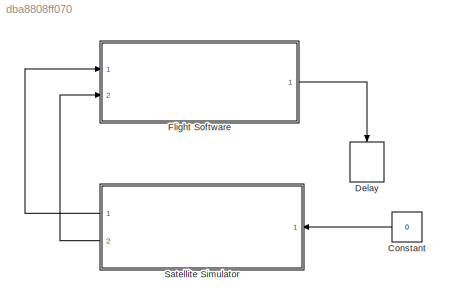
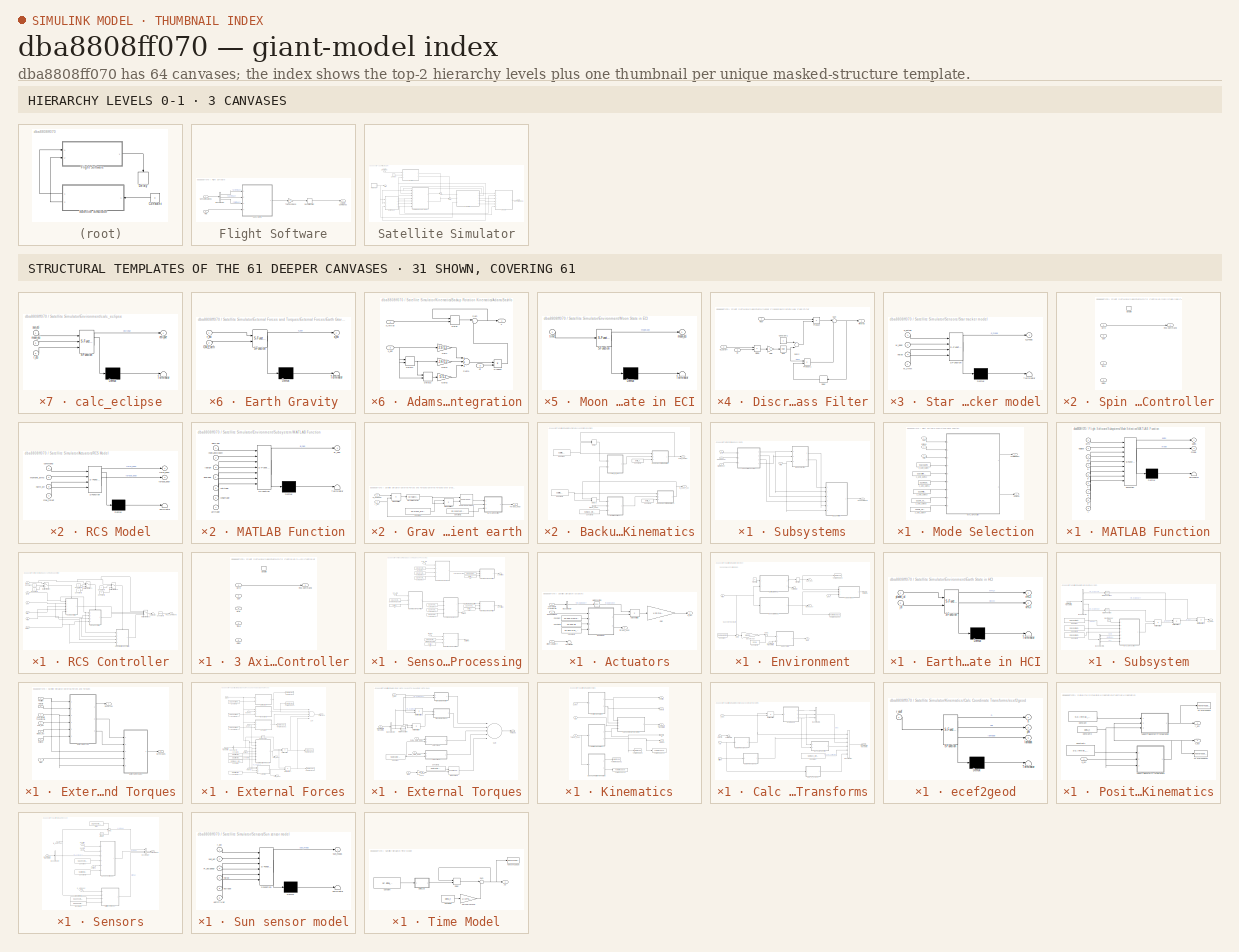
[diagram: thumbnail index - top-2 hierarchy levels (3 canvases) + 31 structural-template representatives of the remaining 61 canvases]
MODEL slx_dba8808ff070
KIND model
CONFIG AbsTol = auto
CONFIG EnableMultiTasking = off
CONFIG FixedStep = auto
CONFIG MaxStep = auto
CONFIG MinStep = auto
CONFIG RelTol = 1e-3
CONFIG SampleTimeConstraint = Unconstrained
CONFIG Solver = VariableStepAuto
CONFIG SolverName = VariableStepAuto
CONFIG StartTime = 0.0
CONFIG StopTime = 10.0
BLOCK [Constant] Constant
  Value = 0
BLOCK [Delay] Delay
  Commented = on
  DelayLength = 1
  InitialCondition = 0
  InputPortMap = u0
  Ports = [1, 1]
BLOCK [SubSystem] Flight Software
  Commented = on
  Ports = [2, 1]
  RequestExecContextInheritance = off
BLOCK [Outport] Flight Software/Actuator Commands
  IconDisplay = Port number
BLOCK [BusSelector] Flight Software/Bus Selector
  OutputAsBus = off
  OutputSignals = gyro meas,sun meas,star meas
  Ports = [1, 3]
BLOCK [Rounding] Flight Software/Resolution Error
BLOCK [Inport] Flight Software/Sensor Readings
  IconDisplay = Port number
BLOCK [SubSystem] Flight Software/Subsystems
  Ports = [4, 1]
  RequestExecContextInheritance = off
BLOCK [Inport] Flight Software/Subsystems/Gyro
  IconDisplay = Port number
BLOCK [SubSystem] Flight Software/Subsystems/Mode Selection
  Ports = [3, 2]
  RequestExecContextInheritance = off
BLOCK [Constant] Flight Software/Subsystems/Mode Selection/3_axis_gains
  Value = SC.ax3.gains
BLOCK [Constant] Flight Software/Subsystems/Mode Selection/3_axis_gains1
  Value = SC.spin.gains
BLOCK [Constant] Flight Software/Subsystems/Mode Selection/3_axis_gains2
  Value = SC.ax3.time_constant
BLOCK [Constant] Flight Software/Subsystems/Mode Selection/3_axis_gains3
  Value = SC.spin.time_constant
BLOCK [Constant] Flight Software/Subsystems/Mode Selection/3_axis_gains4
  Value = SC.spin_up.time_constant
BLOCK [Constant] Flight Software/Subsystems/Mode Selection/3_axis_gains5
  Value = SC.spin_up.gains
BLOCK [Outport] Flight Software/Subsystems/Mode Selection/Controller Gains
  IconDisplay = Port number
BLOCK [Inport] Flight Software/Subsystems/Mode Selection/Eclipse
  IconDisplay = Port number
  Port = 2
BLOCK [Inport] Flight Software/Subsystems/Mode Selection/Gyro
  IconDisplay = Port number
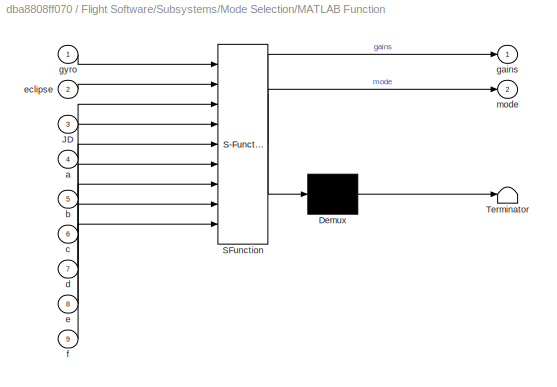
BLOCK [SubSystem] Flight Software/Subsystems/Mode Selection/MATLAB Function
  ErrorFcn = Stateflow.Translate.translate
  PermitHierarchicalResolution = ExplicitOnly
  Ports = [9, 2]
  RequestExecContextInheritance = off
  SFBlockType = MATLAB Function
  TreatAsAtomicUnit = on
BLOCK [Demux] Flight Software/Subsystems/Mode Selection/MATLAB Function/ Demux 
  Outputs = 1
  Ports = [1, 1]
BLOCK [S-Function] Flight Software/Subsystems/Mode Selection/MATLAB Function/ SFunction 
  EnableBusSupport = on
  FunctionName = sf_sfun
  PortCounts = [9 3]
  Ports = [9, 3]
  SFcnIsStateOwnerBlock = off
  SFunctionDeploymentMode = off
  Tag = Stateflow S-Function ADCS_r2017b2 2
BLOCK [Terminator] Flight Software/Subsystems/Mode Selection/MATLAB Function/ Terminator 
BLOCK [Inport] Flight Software/Subsystems/Mode Selection/MATLAB Function/JD
  IconDisplay = Port number
  Port = 3
BLOCK [Inport] Flight Software/Subsystems/Mode Selection/MATLAB Function/a
  IconDisplay = Port number
  Port = 4
BLOCK [Inport] Flight Software/Subsystems/Mode Selection/MATLAB Function/b
  IconDisplay = Port number
  Port = 5
BLOCK [Inport] Flight Software/Subsystems/Mode Selection/MATLAB Function/c
  IconDisplay = Port number
  Port = 6
BLOCK [Inport] Flight Software/Subsystems/Mode Selection/MATLAB Function/d
  IconDisplay = Port number
  Port = 7
BLOCK [Inport] Flight Software/Subsystems/Mode Selection/MATLAB Function/e
  IconDisplay = Port number
  Port = 8
BLOCK [Inport] Flight Software/Subsystems/Mode Selection/MATLAB Function/eclipse
  IconDisplay = Port number
  Port = 2
BLOCK [Inport] Flight Software/Subsystems/Mode Selection/MATLAB Function/f
  IconDisplay = Port number
  Port = 9
BLOCK [Outport] Flight Software/Subsystems/Mode Selection/MATLAB Function/gains
  IconDisplay = Port number
BLOCK [Inport] Flight Software/Subsystems/Mode Selection/MATLAB Function/gyro
  IconDisplay = Port number
BLOCK [Outport] Flight Software/Subsystems/Mode Selection/MATLAB Function/mode
  IconDisplay = Port number
  Port = 2
BLOCK [Outport] Flight Software/Subsystems/Mode Selection/S//C Mode
  IconDisplay = Port number
  Port = 2
BLOCK [Inport] Flight Software/Subsystems/Mode Selection/Time
  IconDisplay = Port number
  Port = 3
BLOCK [Outport] Flight Software/Subsystems/RCS Command
  IconDisplay = Port number
BLOCK [SubSystem] Flight Software/Subsystems/RCS Controller
  Ports = [6, 1]
  RequestExecContextInheritance = off
BLOCK [SubSystem] Flight Software/Subsystems/RCS Controller/3 Axis Controller
  Ports = [5, 1, 1]
  RequestExecContextInheritance = off
  TreatAsAtomicUnit = on
BLOCK [EnablePort] Flight Software/Subsystems/RCS Controller/3 Axis Controller/Enable
  Ports = []
BLOCK [Inport] Flight Software/Subsystems/RCS Controller/3 Axis Controller/Gains
  IconDisplay = Port number
  Port = 5
BLOCK [Inport] Flight Software/Subsystems/RCS Controller/3 Axis Controller/Gyro
  IconDisplay = Port number
BLOCK [Outport] Flight Software/Subsystems/RCS Controller/3 Axis Controller/RCS Command
  IconDisplay = Port number
BLOCK [Inport] Flight Software/Subsystems/RCS Controller/3 Axis Controller/Star
  IconDisplay = Port number
  Port = 3
BLOCK [Inport] Flight Software/Subsystems/RCS Controller/3 Axis Controller/Sun
  IconDisplay = Port number
  Port = 2
BLOCK [Inport] Flight Software/Subsystems/RCS Controller/3 Axis Controller/Time
  IconDisplay = Port number
  Port = 4
BLOCK [Constant] Flight Software/Subsystems/RCS Controller/Constant
BLOCK [Constant] Flight Software/Subsystems/RCS Controller/Constant1
  Value = 0
BLOCK [Constant] Flight Software/Subsystems/RCS Controller/Constant2
BLOCK [Constant] Flight Software/Subsystems/RCS Controller/Constant3
  Value = 0
BLOCK [Constant] Flight Software/Subsystems/RCS Controller/Constant4
BLOCK [Constant] Flight Software/Subsystems/RCS Controller/Constant5
  Value = 0
BLOCK [Constant] Flight Software/Subsystems/RCS Controller/Constant6
  Value = [0;0;0;  0;0;0;  0;0;0;  0;0;0]
BLOCK [Inport] Flight Software/Subsystems/RCS Controller/Gains
  IconDisplay = Port number
  Port = 5
BLOCK [Inport] Flight Software/Subsystems/RCS Controller/Gyro
  IconDisplay = Port number
  Port = 2
BLOCK [Inport] Flight Software/Subsystems/RCS Controller/Mode
  IconDisplay = Port number
BLOCK [MultiPortSwitch] Flight Software/Subsystems/RCS Controller/Multiport Switch
  InputSameDT = off
  Inputs = 2
  Ports = [3, 1]
  SaturateOnIntegerOverflow = off
BLOCK [MultiPortSwitch] Flight Software/Subsystems/RCS Controller/Multiport Switch1
  InputSameDT = off
  Inputs = 2
  Ports = [3, 1]
  SaturateOnIntegerOverflow = off
BLOCK [MultiPortSwitch] Flight Software/Subsystems/RCS Controller/Multiport Switch2
  InputSameDT = off
  Inputs = 2
  Ports = [3, 1]
  SaturateOnIntegerOverflow = off
BLOCK [MultiPortSwitch] Flight Software/Subsystems/RCS Controller/Multiport Switch3
  InputSameDT = off
  Ports = [4, 1]
  SaturateOnIntegerOverflow = off
BLOCK [Outport] Flight Software/Subsystems/RCS Controller/RCS_Command
  IconDisplay = Port number
BLOCK [SubSystem] Flight Software/Subsystems/RCS Controller/Spin Stabilized Controller
  Ports = [4, 1, 1]
  RequestExecContextInheritance = off
  TreatAsAtomicUnit = on
BLOCK [EnablePort] Flight Software/Subsystems/RCS Controller/Spin Stabilized Controller/Enable
  Ports = []
BLOCK [Inport] Flight Software/Subsystems/RCS Controller/Spin Stabilized Controller/Gains
  IconDisplay = Port number
  Port = 4
BLOCK [Inport] Flight Software/Subsystems/RCS Controller/Spin Stabilized Controller/Gyro
  IconDisplay = Port number
BLOCK [Outport] Flight Software/Subsystems/RCS Controller/Spin Stabilized Controller/RCS Command
  IconDisplay = Port number
BLOCK [Inport] Flight Software/Subsystems/RCS Controller/Spin Stabilized Controller/Sun
  IconDisplay = Port number
  Port = 2
BLOCK [Inport] Flight Software/Subsystems/RCS Controller/Spin Stabilized Controller/Time
  IconDisplay = Port number
  Port = 3
BLOCK [SubSystem] Flight Software/Subsystems/RCS Controller/Spin Up Controller
  Ports = [4, 1, 1]
  RequestExecContextInheritance = off
  TreatAsAtomicUnit = on
BLOCK [EnablePort] Flight Software/Subsystems/RCS Controller/Spin Up Controller/Enable
  Ports = []
BLOCK [Inport] Flight Software/Subsystems/RCS Controller/Spin Up Controller/Gains
  IconDisplay = Port number
  Port = 4
BLOCK [Inport] Flight Software/Subsystems/RCS Controller/Spin Up Controller/Gyro
  IconDisplay = Port number
BLOCK [Outport] Flight Software/Subsystems/RCS Controller/Spin Up Controller/RCS Command
  IconDisplay = Port number
BLOCK [Inport] Flight Software/Subsystems/RCS Controller/Spin Up Controller/Sun
  IconDisplay = Port number
  Port = 2
BLOCK [Inport] Flight Software/Subsystems/RCS Controller/Spin Up Controller/Time
  IconDisplay = Port number
  Port = 3
BLOCK [Inport] Flight Software/Subsystems/RCS Controller/Star
  IconDisplay = Port number
  Port = 4
BLOCK [Inport] Flight Software/Subsystems/RCS Controller/Sun
  IconDisplay = Port number
  Port = 3
BLOCK [Terminator] Flight Software/Subsystems/RCS Controller/Terminator
BLOCK [Inport] Flight Software/Subsystems/RCS Controller/Time
  IconDisplay = Port number
  Port = 6
BLOCK [SubSystem] Flight Software/Subsystems/Sensor Processing
  Ports = [3, 4]
  RequestExecContextInheritance = off
BLOCK [SubSystem] Flight Software/Subsystems/Sensor Processing/Discrete Low Pass Filter
  Ports = [3, 1]
  RequestExecContextInheritance = off
BLOCK [Constant] Flight Software/Subsystems/Sensor Processing/Discrete Low Pass Filter/Constant1
BLOCK [Delay] Flight Software/Subsystems/Sensor Processing/Discrete Low Pass Filter/Delay
  DelayLength = 1
  InitialCondition = 0
  InputPortMap = u0
  Ports = [1, 1]
BLOCK [Product] Flight Software/Subsystems/Sensor Processing/Discrete Low Pass Filter/Divide
  InputSameDT = off
  Inputs = **
  OutDataTypeStr = Inherit: Inherit via internal rule
  Ports = [2, 1]
  RndMeth = Floor
  SaturateOnIntegerOverflow = off
BLOCK [Math] Flight Software/Subsystems/Sensor Processing/Discrete Low Pass Filter/Exp
  Ports = [1, 1]
BLOCK [Outport] Flight Software/Subsystems/Sensor Processing/Discrete Low Pass Filter/Filtered
  IconDisplay = Port number
BLOCK [Gain] Flight Software/Subsystems/Sensor Processing/Discrete Low Pass Filter/Gain
  Gain = -1
  OutDataTypeStr = Inherit: Inherit via internal rule
  ParamDataTypeStr = Inherit: Inherit via internal rule
  SaturateOnIntegerOverflow = off
BLOCK [Product] Flight Software/Subsystems/Sensor Processing/Discrete Low Pass Filter/Product
  InputSameDT = off
  OutDataTypeStr = Inherit: Inherit via internal rule
  Ports = [2, 1]
  RndMeth = Floor
  SaturateOnIntegerOverflow = off
BLOCK [Product] Flight Software/Subsystems/Sensor Processing/Discrete Low Pass Filter/Product1
  InputSameDT = off
  OutDataTypeStr = Inherit: Inherit via internal rule
  Ports = [2, 1]
  RndMeth = Floor
  SaturateOnIntegerOverflow = off
BLOCK [Inport] Flight Software/Subsystems/Sensor Processing/Discrete Low Pass Filter/Raw
  IconDisplay = Port number
BLOCK [Sum] Flight Software/Subsystems/Sensor Processing/Discrete Low Pass Filter/Sum
  IconShape = round
  InputSameDT = off
  Inputs = |++
  OutDataTypeStr = Inherit: Inherit via internal rule
  Ports = [2, 1]
  SaturateOnIntegerOverflow = off
BLOCK [Sum] Flight Software/Subsystems/Sensor Processing/Discrete Low Pass Filter/Sum2
  InputSameDT = off
  Inputs = +-
  OutDataTypeStr = Inherit: Inherit via internal rule
  Ports = [2, 1]
  SaturateOnIntegerOverflow = off
BLOCK [Inport] Flight Software/Subsystems/Sensor Processing/Discrete Low Pass Filter/dt
  IconDisplay = Port number
  Port = 3
BLOCK [Inport] Flight Software/Subsystems/Sensor Processing/Discrete Low Pass Filter/w_cutoff
  IconDisplay = Port number
  Port = 2
BLOCK [SubSystem] Flight Software/Subsystems/Sensor Processing/Discrete Low Pass Filter1
  Ports = [3, 1]
  RequestExecContextInheritance = off
BLOCK [Constant] Flight Software/Subsystems/Sensor Processing/Discrete Low Pass Filter1/Constant1
BLOCK [Delay] Flight Software/Subsystems/Sensor Processing/Discrete Low Pass Filter1/Delay
  DelayLength = 1
  InitialCondition = 0
  InputPortMap = u0
  Ports = [1, 1]
BLOCK [Product] Flight Software/Subsystems/Sensor Processing/Discrete Low Pass Filter1/Divide
  InputSameDT = off
  Inputs = **
  OutDataTypeStr = Inherit: Inherit via internal rule
  Ports = [2, 1]
  RndMeth = Floor
  SaturateOnIntegerOverflow = off
BLOCK [Math] Flight Software/Subsystems/Sensor Processing/Discrete Low Pass Filter1/Exp
  Ports = [1, 1]
BLOCK [Outport] Flight Software/Subsystems/Sensor Processing/Discrete Low Pass Filter1/Filtered
  IconDisplay = Port number
BLOCK [Gain] Flight Software/Subsystems/Sensor Processing/Discrete Low Pass Filter1/Gain
  Gain = -1
  OutDataTypeStr = Inherit: Inherit via internal rule
  ParamDataTypeStr = Inherit: Inherit via internal rule
  SaturateOnIntegerOverflow = off
BLOCK [Product] Flight Software/Subsystems/Sensor Processing/Discrete Low Pass Filter1/Product
  InputSameDT = off
  OutDataTypeStr = Inherit: Inherit via internal rule
  Ports = [2, 1]
  RndMeth = Floor
  SaturateOnIntegerOverflow = off
BLOCK [Product] Flight Software/Subsystems/Sensor Processing/Discrete Low Pass Filter1/Product1
  InputSameDT = off
  OutDataTypeStr = Inherit: Inherit via internal rule
  Ports = [2, 1]
  RndMeth = Floor
  SaturateOnIntegerOverflow = off
BLOCK [Inport] Flight Software/Subsystems/Sensor Processing/Discrete Low Pass Filter1/Raw
  IconDisplay = Port number
BLOCK [Sum] Flight Software/Subsystems/Sensor Processing/Discrete Low Pass Filter1/Sum
  IconShape = round
  InputSameDT = off
  Inputs = |++
  OutDataTypeStr = Inherit: Inherit via internal rule
  Ports = [2, 1]
  SaturateOnIntegerOverflow = off
BLOCK [Sum] Flight Software/Subsystems/Sensor Processing/Discrete Low Pass Filter1/Sum2
  InputSameDT = off
  Inputs = +-
  OutDataTypeStr = Inherit: Inherit via internal rule
  Ports = [2, 1]
  SaturateOnIntegerOverflow = off
BLOCK [Inport] Flight Software/Subsystems/Sensor Processing/Discrete Low Pass Filter1/dt
  IconDisplay = Port number
  Port = 3
BLOCK [Inport] Flight Software/Subsystems/Sensor Processing/Discrete Low Pass Filter1/w_cutoff
  IconDisplay = Port number
  Port = 2
BLOCK [SubSystem] Flight Software/Subsystems/Sensor Processing/Discrete Low Pass Filter2
  Ports = [3, 1]
  RequestExecContextInheritance = off
BLOCK [Constant] Flight Software/Subsystems/Sensor Processing/Discrete Low Pass Filter2/Constant1
BLOCK [Delay] Flight Software/Subsystems/Sensor Processing/Discrete Low Pass Filter2/Delay
  DelayLength = 1
  InitialCondition = 0
  InputPortMap = u0
  Ports = [1, 1]
BLOCK [Product] Flight Software/Subsystems/Sensor Processing/Discrete Low Pass Filter2/Divide
  InputSameDT = off
  Inputs = **
  OutDataTypeStr = Inherit: Inherit via internal rule
  Ports = [2, 1]
  RndMeth = Floor
  SaturateOnIntegerOverflow = off
BLOCK [Math] Flight Software/Subsystems/Sensor Processing/Discrete Low Pass Filter2/Exp
  Ports = [1, 1]
BLOCK [Outport] Flight Software/Subsystems/Sensor Processing/Discrete Low Pass Filter2/Filtered
  IconDisplay = Port number
BLOCK [Gain] Flight Software/Subsystems/Sensor Processing/Discrete Low Pass Filter2/Gain
  Gain = -1
  OutDataTypeStr = Inherit: Inherit via internal rule
  ParamDataTypeStr = Inherit: Inherit via internal rule
  SaturateOnIntegerOverflow = off
BLOCK [Product] Flight Software/Subsystems/Sensor Processing/Discrete Low Pass Filter2/Product
  InputSameDT = off
  OutDataTypeStr = Inherit: Inherit via internal rule
  Ports = [2, 1]
  RndMeth = Floor
  SaturateOnIntegerOverflow = off
BLOCK [Product] Flight Software/Subsystems/Sensor Processing/Discrete Low Pass Filter2/Product1
  InputSameDT = off
  OutDataTypeStr = Inherit: Inherit via internal rule
  Ports = [2, 1]
  RndMeth = Floor
  SaturateOnIntegerOverflow = off
BLOCK [Inport] Flight Software/Subsystems/Sensor Processing/Discrete Low Pass Filter2/Raw
  IconDisplay = Port number
BLOCK [Sum] Flight Software/Subsystems/Sensor Processing/Discrete Low Pass Filter2/Sum
  IconShape = round
  InputSameDT = off
  Inputs = |++
  OutDataTypeStr = Inherit: Inherit via internal rule
  Ports = [2, 1]
  SaturateOnIntegerOverflow = off
BLOCK [Sum] Flight Software/Subsystems/Sensor Processing/Discrete Low Pass Filter2/Sum2
  InputSameDT = off
  Inputs = +-
  OutDataTypeStr = Inherit: Inherit via internal rule
  Ports = [2, 1]
  SaturateOnIntegerOverflow = off
BLOCK [Inport] Flight Software/Subsystems/Sensor Processing/Discrete Low Pass Filter2/dt
  IconDisplay = Port number
  Port = 3
BLOCK [Inport] Flight Software/Subsystems/Sensor Processing/Discrete Low Pass Filter2/w_cutoff
  IconDisplay = Port number
  Port = 2
BLOCK [SubSystem] Flight Software/Subsystems/Sensor Processing/Discrete Low Pass Filter3
  Ports = [3, 1]
  RequestExecContextInheritance = off
BLOCK [Constant] Flight Software/Subsystems/Sensor Processing/Discrete Low Pass Filter3/Constant1
BLOCK [Delay] Flight Software/Subsystems/Sensor Processing/Discrete Low Pass Filter3/Delay
  DelayLength = 1
  InitialCondition = 0
  InputPortMap = u0
  Ports = [1, 1]
BLOCK [Product] Flight Software/Subsystems/Sensor Processing/Discrete Low Pass Filter3/Divide
  InputSameDT = off
  Inputs = **
  OutDataTypeStr = Inherit: Inherit via internal rule
  Ports = [2, 1]
  RndMeth = Floor
  SaturateOnIntegerOverflow = off
BLOCK [Math] Flight Software/Subsystems/Sensor Processing/Discrete Low Pass Filter3/Exp
  Ports = [1, 1]
BLOCK [Outport] Flight Software/Subsystems/Sensor Processing/Discrete Low Pass Filter3/Filtered
  IconDisplay = Port number
BLOCK [Gain] Flight Software/Subsystems/Sensor Processing/Discrete Low Pass Filter3/Gain
  Gain = -1
  OutDataTypeStr = Inherit: Inherit via internal rule
  ParamDataTypeStr = Inherit: Inherit via internal rule
  SaturateOnIntegerOverflow = off
BLOCK [Product] Flight Software/Subsystems/Sensor Processing/Discrete Low Pass Filter3/Product
  InputSameDT = off
  OutDataTypeStr = Inherit: Inherit via internal rule
  Ports = [2, 1]
  RndMeth = Floor
  SaturateOnIntegerOverflow = off
BLOCK [Product] Flight Software/Subsystems/Sensor Processing/Discrete Low Pass Filter3/Product1
  InputSameDT = off
  OutDataTypeStr = Inherit: Inherit via internal rule
  Ports = [2, 1]
  RndMeth = Floor
  SaturateOnIntegerOverflow = off
BLOCK [Inport] Flight Software/Subsystems/Sensor Processing/Discrete Low Pass Filter3/Raw
  IconDisplay = Port number
BLOCK [Sum] Flight Software/Subsystems/Sensor Processing/Discrete Low Pass Filter3/Sum
  IconShape = round
  InputSameDT = off
  Inputs = |++
  OutDataTypeStr = Inherit: Inherit via internal rule
  Ports = [2, 1]
  SaturateOnIntegerOverflow = off
BLOCK [Sum] Flight Software/Subsystems/Sensor Processing/Discrete Low Pass Filter3/Sum2
  InputSameDT = off
  Inputs = +-
  OutDataTypeStr = Inherit: Inherit via internal rule
  Ports = [2, 1]
  SaturateOnIntegerOverflow = off
BLOCK [Inport] Flight Software/Subsystems/Sensor Processing/Discrete Low Pass Filter3/dt
  IconDisplay = Port number
  Port = 3
BLOCK [Inport] Flight Software/Subsystems/Sensor Processing/Discrete Low Pass Filter3/w_cutoff
  IconDisplay = Port number
  Port = 2
BLOCK [Outport] Flight Software/Subsystems/Sensor Processing/Eclipse
  IconDisplay = Port number
  Port = 4
BLOCK [Constant] Flight Software/Subsystems/Sensor Processing/Gyro gains
  Value = SC.sensors.gyro.gains
BLOCK [Constant] Flight Software/Subsystems/Sensor Processing/Gyro gains1
  Value = SC.sensors.gyro.offset
BLOCK [Constant] Flight Software/Subsystems/Sensor Processing/Gyro gains2
  Value = SC.sensors.gyro.rot_mat
BLOCK [Constant] Flight Software/Subsystems/Sensor Processing/Gyro gains3
  Value = SC.sensors.sun.gains
BLOCK [Constant] Flight Software/Subsystems/Sensor Processing/Gyro gains4
  Value = SC.sensors.sun.offset
BLOCK [Constant] Flight Software/Subsystems/Sensor Processing/Gyro gains5
  Value = SC.sensors.sun.threshold
BLOCK [Constant] Flight Software/Subsystems/Sensor Processing/Gyro omega cutoff
  Value = SC.sensors.gyro.wc
BLOCK [Outport] Flight Software/Subsystems/Sensor Processing/Gyro_filtered
  IconDisplay = Port number
BLOCK [Inport] Flight Software/Subsystems/Sensor Processing/Gyro_raw
  IconDisplay = Port number
BLOCK [SubSystem] Flight Software/Subsystems/Sensor Processing/Process Gyro
  ErrorFcn = Stateflow.Translate.translate
  PermitHierarchicalResolution = ExplicitOnly
  Ports = [4, 1]
  RequestExecContextInheritance = off
  SFBlockType = MATLAB Function
  TreatAsAtomicUnit = on
BLOCK [Demux] Flight Software/Subsystems/Sensor Processing/Process Gyro/ Demux 
  Outputs = 1
  Ports = [1, 1]
BLOCK [S-Function] Flight Software/Subsystems/Sensor Processing/Process Gyro/ SFunction 
  EnableBusSupport = on
  FunctionName = sf_sfun
  PortCounts = [4 2]
  Ports = [4, 2]
  SFcnIsStateOwnerBlock = off
  SFunctionDeploymentMode = off
  Tag = Stateflow S-Function ADCS_r2017b2 1
BLOCK [Terminator] Flight Software/Subsystems/Sensor Processing/Process Gyro/ Terminator 
BLOCK [Inport] Flight Software/Subsystems/Sensor Processing/Process Gyro/gain
  IconDisplay = Port number
  Port = 2
BLOCK [Outport] Flight Software/Subsystems/Sensor Processing/Process Gyro/gyro
  IconDisplay = Port number
BLOCK [Inport] Flight Software/Subsystems/Sensor Processing/Process Gyro/offset
  IconDisplay = Port number
  Port = 3
BLOCK [Inport] Flight Software/Subsystems/Sensor Processing/Process Gyro/raw
  IconDisplay = Port number
BLOCK [Inport] Flight Software/Subsystems/Sensor Processing/Process Gyro/rot
  IconDisplay = Port number
  Port = 4
BLOCK [SubSystem] Flight Software/Subsystems/Sensor Processing/Process Gyro1
  ErrorFcn = Stateflow.Translate.translate
  PermitHierarchicalResolution = ExplicitOnly
  Ports = [4, 2]
  RequestExecContextInheritance = off
  SFBlockType = MATLAB Function
  TreatAsAtomicUnit = on
BLOCK [Demux] Flight Software/Subsystems/Sensor Processing/Process Gyro1/ Demux 
  Outputs = 1
  Ports = [1, 1]
BLOCK [S-Function] Flight Software/Subsystems/Sensor Processing/Process Gyro1/ SFunction 
  EnableBusSupport = on
  FunctionName = sf_sfun
  PortCounts = [4 3]
  Ports = [4, 3]
  SFcnIsStateOwnerBlock = off
  SFunctionDeploymentMode = off
  Tag = Stateflow S-Function ADCS_r2017b2 3
BLOCK [Terminator] Flight Software/Subsystems/Sensor Processing/Process Gyro1/ Terminator 
BLOCK [Outport] Flight Software/Subsystems/Sensor Processing/Process Gyro1/eclipse
  IconDisplay = Port number
  Port = 2
BLOCK [Inport] Flight Software/Subsystems/Sensor Processing/Process Gyro1/gain
  IconDisplay = Port number
  Port = 2
BLOCK [Inport] Flight Software/Subsystems/Sensor Processing/Process Gyro1/offset
  IconDisplay = Port number
  Port = 3
BLOCK [Inport] Flight Software/Subsystems/Sensor Processing/Process Gyro1/raw
  IconDisplay = Port number
BLOCK [Outport] Flight Software/Subsystems/Sensor Processing/Process Gyro1/sun_dir
  IconDisplay = Port number
BLOCK [Inport] Flight Software/Subsystems/Sensor Processing/Process Gyro1/threshold
  IconDisplay = Port number
  Port = 4
BLOCK [Constant] Flight Software/Subsystems/Sensor Processing/Star omega cutoff
  Value = SC.sensors.star.wc
BLOCK [Outport] Flight Software/Subsystems/Sensor Processing/Star_filtered
  IconDisplay = Port number
  Port = 3
BLOCK [Inport] Flight Software/Subsystems/Sensor Processing/Star_raw
  IconDisplay = Port number
  Port = 3
BLOCK [Constant] Flight Software/Subsystems/Sensor Processing/Sun pre omega cutoff
  Value = SC.sensors.sun.pre_wc
BLOCK [Constant] Flight Software/Subsystems/Sensor Processing/Sun pre omega cutoff1
  Value = SC.sensors.sun.dir_wc
BLOCK [Outport] Flight Software/Subsystems/Sensor Processing/Sun_filtered
  IconDisplay = Port number
  Port = 2
BLOCK [Inport] Flight Software/Subsystems/Sensor Processing/Sun_raw
  IconDisplay = Port number
  Port = 2
BLOCK [Constant] Flight Software/Subsystems/Sensor Processing/dt
  Value = delta_t
BLOCK [Constant] Flight Software/Subsystems/Sensor Processing/dt1
  Value = delta_t
BLOCK [Constant] Flight Software/Subsystems/Sensor Processing/dt2
  Value = delta_t
BLOCK [Constant] Flight Software/Subsystems/Sensor Processing/dt3
  Value = delta_t
BLOCK [Inport] Flight Software/Subsystems/Star Tracker
  IconDisplay = Port number
  Port = 3
BLOCK [Inport] Flight Software/Subsystems/Sun Sensor
  IconDisplay = Port number
  Port = 2
BLOCK [Inport] Flight Software/Subsystems/Time
  IconDisplay = Port number
  Port = 4
BLOCK [Gain] Flight Software/Thrust command
  OutDataTypeStr = Inherit: Inherit via internal rule
  ParamDataTypeStr = Inherit: Inherit via internal rule
  SaturateOnIntegerOverflow = off
BLOCK [Inport] Flight Software/Time
  IconDisplay = Port number
  Port = 2
BLOCK [SubSystem] Satellite Simulator
  Ports = [1, 2]
  RequestExecContextInheritance = off
BLOCK [Inport] Satellite Simulator/Actuator Commands
  IconDisplay = Port number
BLOCK [SubSystem] Satellite Simulator/Actuators
  Ports = [3, 2]
  RequestExecContextInheritance = off
BLOCK [BusSelector] Satellite Simulator/Actuators/Bus Selector
  OutputAsBus = off
  OutputSignals = R_eci2body
  Ports = [1, 1]
BLOCK [Constant] Satellite Simulator/Actuators/Constant
  Value = SC.RCS.moment_arms
BLOCK [Constant] Satellite Simulator/Actuators/Constant1
  Value = SC.RCS.max_thrust
BLOCK [Constant] Satellite Simulator/Actuators/Constant2
  Value = SC.RCS.dir
BLOCK [Inport] Satellite Simulator/Actuators/Coordinate Transforms
  IconDisplay = Port number
  Port = 3
BLOCK [Gain] Satellite Simulator/Actuators/Gain
  Gain = 1/SC.mass_properties.mass
  OutDataTypeStr = Inherit: Inherit via internal rule
  ParamDataTypeStr = Inherit: Inherit via internal rule
  SaturateOnIntegerOverflow = off
BLOCK [Math] Satellite Simulator/Actuators/Math Function
  Operator = transpose
  Ports = [1, 1]
BLOCK [Product] Satellite Simulator/Actuators/Matrix Multiply
  InputSameDT = off
  Multiplication = Matrix(*)
  OutDataTypeStr = Inherit: Inherit via internal rule
  Ports = [2, 1]
  RndMeth = Floor
  SaturateOnIntegerOverflow = off
BLOCK [Inport] Satellite Simulator/Actuators/Other Actuator?
  IconDisplay = Port number
  Port = 2
BLOCK [Inport] Satellite Simulator/Actuators/RCS Command
  IconDisplay = Port number
BLOCK [SubSystem] Satellite Simulator/Actuators/RCS Model
  ErrorFcn = Stateflow.Translate.translate
  PermitHierarchicalResolution = ExplicitOnly
  Ports = [4, 2]
  RequestExecContextInheritance = off
  SFBlockType = MATLAB Function
  TreatAsAtomicUnit = on
BLOCK [Demux] Satellite Simulator/Actuators/RCS Model/ Demux 
  Outputs = 1
  Ports = [1, 1]
BLOCK [S-Function] Satellite Simulator/Actuators/RCS Model/ SFunction 
  EnableBusSupport = on
  FunctionName = sf_sfun
  PortCounts = [4 3]
  Ports = [4, 3]
  SFcnIsStateOwnerBlock = off
  SFunctionDeploymentMode = off
  Tag = Stateflow S-Function ADCS_r2017b2 18
BLOCK [Terminator] Satellite Simulator/Actuators/RCS Model/ Terminator 
BLOCK [Inport] Satellite Simulator/Actuators/RCS Model/command
  IconDisplay = Port number
BLOCK [Outport] Satellite Simulator/Actuators/RCS Model/force_body
  IconDisplay = Port number
BLOCK [Inport] Satellite Simulator/Actuators/RCS Model/max_thrust
  IconDisplay = Port number
  Port = 4
BLOCK [Inport] Satellite Simulator/Actuators/RCS Model/moment_arms
  IconDisplay = Port number
  Port = 2
BLOCK [Inport] Satellite Simulator/Actuators/RCS Model/norm_dir
  IconDisplay = Port number
  Port = 3
BLOCK [Outport] Satellite Simulator/Actuators/RCS Model/torque_body
  IconDisplay = Port number
  Port = 2
BLOCK [Terminator] Satellite Simulator/Actuators/Terminator
BLOCK [Outport] Satellite Simulator/Actuators/a_eci
  IconDisplay = Port number
BLOCK [Outport] Satellite Simulator/Actuators/torque_body
  IconDisplay = Port number
  Port = 2
BLOCK [Constant] Satellite Simulator/Constant
  Value = 0
BLOCK [SubSystem] Satellite Simulator/Environment
  Ports = [3, 4]
  RequestExecContextInheritance = off
BLOCK [Constant] Satellite Simulator/Environment/Constant
  Value = 2458483.50
BLOCK [Constant] Satellite Simulator/Environment/Constant1
  Value = 2019
BLOCK [Inport] Satellite Simulator/Environment/Coordinate Transforms
  IconDisplay = Port number
  Port = 3
BLOCK [SubSystem] Satellite Simulator/Environment/Earth State in HCI
  ErrorFcn = Stateflow.Translate.translate
  PermitHierarchicalResolution = ExplicitOnly
  Ports = [2, 2]
  RequestExecContextInheritance = off
  SFBlockType = MATLAB Function
  TreatAsAtomicUnit = on
BLOCK [Demux] Satellite Simulator/Environment/Earth State in HCI/ Demux 
  Outputs = 1
  Ports = [1, 1]
BLOCK [S-Function] Satellite Simulator/Environment/Earth State in HCI/ SFunction 
  EnableBusSupport = on
  FunctionName = sf_sfun
  PortCounts = [2 3]
  Ports = [2, 3]
  SFcnIsStateOwnerBlock = off
  SFunctionDeploymentMode = off
  Tag = Stateflow S-Function ADCS_r2017b2 25
BLOCK [Terminator] Satellite Simulator/Environment/Earth State in HCI/ Terminator 
BLOCK [Inport] Satellite Simulator/Environment/Earth State in HCI/jd
  IconDisplay = Port number
  Port = 2
BLOCK [Inport] Satellite Simulator/Environment/Earth State in HCI/planet_id
  IconDisplay = Port number
BLOCK [Outport] Satellite Simulator/Environment/Earth State in HCI/rHCI
  IconDisplay = Port number
BLOCK [Outport] Satellite Simulator/Environment/Earth State in HCI/vHCI
  IconDisplay = Port number
  Port = 2
BLOCK [Outport] Satellite Simulator/Environment/Eclipse
  IconDisplay = Port number
  Port = 4
BLOCK [Signum] Satellite Simulator/Environment/Flip Sign
BLOCK [Outport] Satellite Simulator/Environment/Mag
  IconDisplay = Port number
  Port = 3
BLOCK [SubSystem] Satellite Simulator/Environment/Moon State in ECI
  ErrorFcn = Stateflow.Translate.translate
  PermitHierarchicalResolution = ExplicitOnly
  Ports = [1, 1]
  RequestExecContextInheritance = off
  SFBlockType = MATLAB Function
  TreatAsAtomicUnit = on
BLOCK [Demux] Satellite Simulator/Environment/Moon State in ECI/ Demux 
  Outputs = 1
  Ports = [1, 1]
BLOCK [S-Function] Satellite Simulator/Environment/Moon State in ECI/ SFunction 
  EnableBusSupport = on
  FunctionName = sf_sfun
  PortCounts = [1 2]
  Ports = [1, 2]
  SFcnIsStateOwnerBlock = off
  SFunctionDeploymentMode = off
  Tag = Stateflow S-Function ADCS_r2017b2 26
BLOCK [Terminator] Satellite Simulator/Environment/Moon State in ECI/ Terminator 
BLOCK [Outport] Satellite Simulator/Environment/Moon State in ECI/moon_eci
  IconDisplay = Port number
BLOCK [Inport] Satellite Simulator/Environment/Moon State in ECI/time
  IconDisplay = Port number
BLOCK [Constant] Satellite Simulator/Environment/Planet ID
  Value = 3
BLOCK [SubSystem] Satellite Simulator/Environment/Subsystem
  Ports = [2, 1]
  RequestExecContextInheritance = off
BLOCK [Outport] Satellite Simulator/Environment/Subsystem/B_body
  IconDisplay = Port number
BLOCK [BusSelector] Satellite Simulator/Environment/Subsystem/Bus Selector
  OutputAsBus = off
  OutputSignals = R_eci2ecef,R_eci2body,geod,R_ecef2ned
  Ports = [1, 4]
BLOCK [BusSelector] Satellite Simulator/Environment/Subsystem/Bus Selector1
  OutputAsBus = off
  OutputSignals = phi,lambda,h
  Ports = [1, 3]
BLOCK [Constant] Satellite Simulator/Environment/Subsystem/Constant
  Value = SS.constants.igrf.yearLastEpoch
BLOCK [Constant] Satellite Simulator/Environment/Subsystem/Constant1
  Value = SS.constants.igrf.lastgh
BLOCK [Constant] Satellite Simulator/Environment/Subsystem/Constant2
  Value = SS.constants.igrf.ghslope
BLOCK [Inport] Satellite Simulator/Environment/Subsystem/Cordinate Transforms
  IconDisplay = Port number
  Port = 2
BLOCK [Inport] Satellite Simulator/Environment/Subsystem/Decimal Year
  IconDisplay = Port number
BLOCK [SubSystem] Satellite Simulator/Environment/Subsystem/MATLAB Function
  ErrorFcn = Stateflow.Translate.translate
  PermitHierarchicalResolution = ExplicitOnly
  Ports = [7, 1]
  RequestExecContextInheritance = off
  SFBlockType = MATLAB Function
  TreatAsAtomicUnit = on
BLOCK [Demux] Satellite Simulator/Environment/Subsystem/MATLAB Function/ Demux 
  Outputs = 1
  Ports = [1, 1]
BLOCK [S-Function] Satellite Simulator/Environment/Subsystem/MATLAB Function/ SFunction 
  EnableBusSupport = on
  FunctionName = sf_sfun
  PortCounts = [7 2]
  Ports = [7, 2]
  SFcnIsStateOwnerBlock = off
  SFunctionDeploymentMode = off
  Tag = Stateflow S-Function ADCS_r2017b2 12
BLOCK [Terminator] Satellite Simulator/Environment/Subsystem/MATLAB Function/ Terminator 
BLOCK [Outport] Satellite Simulator/Environment/Subsystem/MATLAB Function/B_ned
  IconDisplay = Port number
BLOCK [Inport] Satellite Simulator/Environment/Subsystem/MATLAB Function/altitude
  IconDisplay = Port number
  Port = 7
BLOCK [Inport] Satellite Simulator/Environment/Subsystem/MATLAB Function/decYear
  IconDisplay = Port number
BLOCK [Inport] Satellite Simulator/Environment/Subsystem/MATLAB Function/ghslope
  IconDisplay = Port number
  Port = 4
BLOCK [Inport] Satellite Simulator/Environment/Subsystem/MATLAB Function/lastgh
  IconDisplay = Port number
  Port = 3
BLOCK [Inport] Satellite Simulator/Environment/Subsystem/MATLAB Function/latitude
  IconDisplay = Port number
  Port = 5
BLOCK [Inport] Satellite Simulator/Environment/Subsystem/MATLAB Function/longitude
  IconDisplay = Port number
  Port = 6
BLOCK [Inport] Satellite Simulator/Environment/Subsystem/MATLAB Function/yearLastEpoch
  IconDisplay = Port number
  Port = 2
BLOCK [Math] Satellite Simulator/Environment/Subsystem/Math Function
  Operator = transpose
  Ports = [1, 1]
BLOCK [Math] Satellite Simulator/Environment/Subsystem/Math Function1
  Operator = transpose
  Ports = [1, 1]
BLOCK [Product] Satellite Simulator/Environment/Subsystem/Matrix Multiply
  InputSameDT = off
  Multiplication = Matrix(*)
  OutDataTypeStr = Inherit: Inherit via internal rule
  Ports = [2, 1]
  RndMeth = Floor
  SaturateOnIntegerOverflow = off
BLOCK [Product] Satellite Simulator/Environment/Subsystem/Matrix Multiply1
  InputSameDT = off
  Multiplication = Matrix(*)
  OutDataTypeStr = Inherit: Inherit via internal rule
  Ports = [2, 1]
  RndMeth = Floor
  SaturateOnIntegerOverflow = off
BLOCK [Product] Satellite Simulator/Environment/Subsystem/Matrix Multiply2
  InputSameDT = off
  Multiplication = Matrix(*)
  OutDataTypeStr = Inherit: Inherit via internal rule
  Ports = [2, 1]
  RndMeth = Floor
  SaturateOnIntegerOverflow = off
BLOCK [Sum] Satellite Simulator/Environment/Sum
  IconShape = round
  InputSameDT = off
  Inputs = +-|
  OutDataTypeStr = Inherit: Inherit via internal rule
  Ports = [2, 1]
  SaturateOnIntegerOverflow = off
BLOCK [Sum] Satellite Simulator/Environment/Sum1
  IconShape = round
  InputSameDT = off
  Inputs = |++
  OutDataTypeStr = Inherit: Inherit via internal rule
  Ports = [2, 1]
  SaturateOnIntegerOverflow = off
BLOCK [Terminator] Satellite Simulator/Environment/Terminator
BLOCK [Inport] Satellite Simulator/Environment/Time
  IconDisplay = Port number
BLOCK [ToWorkspace] Satellite Simulator/Environment/To Workspace
  FixptAsFi = on
  MaxDataPoints = inf
  Ports = [1]
  SampleTime = -1
  Save2DSignal = 3-D array (concatenate along third dimension)
  VariableName = sun_eci
BLOCK [ToWorkspace] Satellite Simulator/Environment/To Workspace1
  FixptAsFi = on
  MaxDataPoints = inf
  Ports = [1]
  SampleTime = -1
  Save2DSignal = 3-D array (concatenate along third dimension)
  VariableName = moon_eci
BLOCK [SubSystem] Satellite Simulator/Environment/calc_eclipse
  ErrorFcn = Stateflow.Translate.translate
  PermitHierarchicalResolution = ExplicitOnly
  Ports = [3, 1]
  RequestExecContextInheritance = off
  SFBlockType = MATLAB Function
  TreatAsAtomicUnit = on
BLOCK [Demux] Satellite Simulator/Environment/calc_eclipse/ Demux 
  Outputs = 1
  Ports = [1, 1]
BLOCK [S-Function] Satellite Simulator/Environment/calc_eclipse/ SFunction 
  EnableBusSupport = on
  FunctionName = sf_sfun
  PortCounts = [3 2]
  Ports = [3, 2]
  SFcnIsStateOwnerBlock = off
  SFunctionDeploymentMode = off
  Tag = Stateflow S-Function ADCS_r2017b2 27
BLOCK [Terminator] Satellite Simulator/Environment/calc_eclipse/ Terminator 
BLOCK [Outport] Satellite Simulator/Environment/calc_eclipse/eclipse
  IconDisplay = Port number
BLOCK [Inport] Satellite Simulator/Environment/calc_eclipse/moon_eci
  IconDisplay = Port number
  Port = 2
BLOCK [Inport] Satellite Simulator/Environment/calc_eclipse/r_eci
  IconDisplay = Port number
  Port = 3
BLOCK [Inport] Satellite Simulator/Environment/calc_eclipse/sun_eci
  IconDisplay = Port number
BLOCK [Gain] Satellite Simulator/Environment/days to year
  Gain = 1/365.2425
  OutDataTypeStr = Inherit: Inherit via internal rule
  ParamDataTypeStr = Inherit: Inherit via internal rule
  SaturateOnIntegerOverflow = off
BLOCK [Outport] Satellite Simulator/Environment/moon_eci
  IconDisplay = Port number
  Port = 2
BLOCK [Inport] Satellite Simulator/Environment/r_eci
  IconDisplay = Port number
  Port = 2
BLOCK [Outport] Satellite Simulator/Environment/sun_eci
  IconDisplay = Port number
BLOCK [SubSystem] Satellite Simulator/External Forces and Torques
  Ports = [7, 2]
  RequestExecContextInheritance = off
BLOCK [Inport] Satellite Simulator/External Forces and Torques/Coordinate Transforms
  IconDisplay = Port number
  Port = 3
BLOCK [Inport] Satellite Simulator/External Forces and Torques/Eclipse
  IconDisplay = Port number
  Port = 7
BLOCK [Outport] Satellite Simulator/External Forces and Torques/Ex Forces
  IconDisplay = Port number
BLOCK [Outport] Satellite Simulator/External Forces and Torques/Ex Torques
  IconDisplay = Port number
  Port = 2
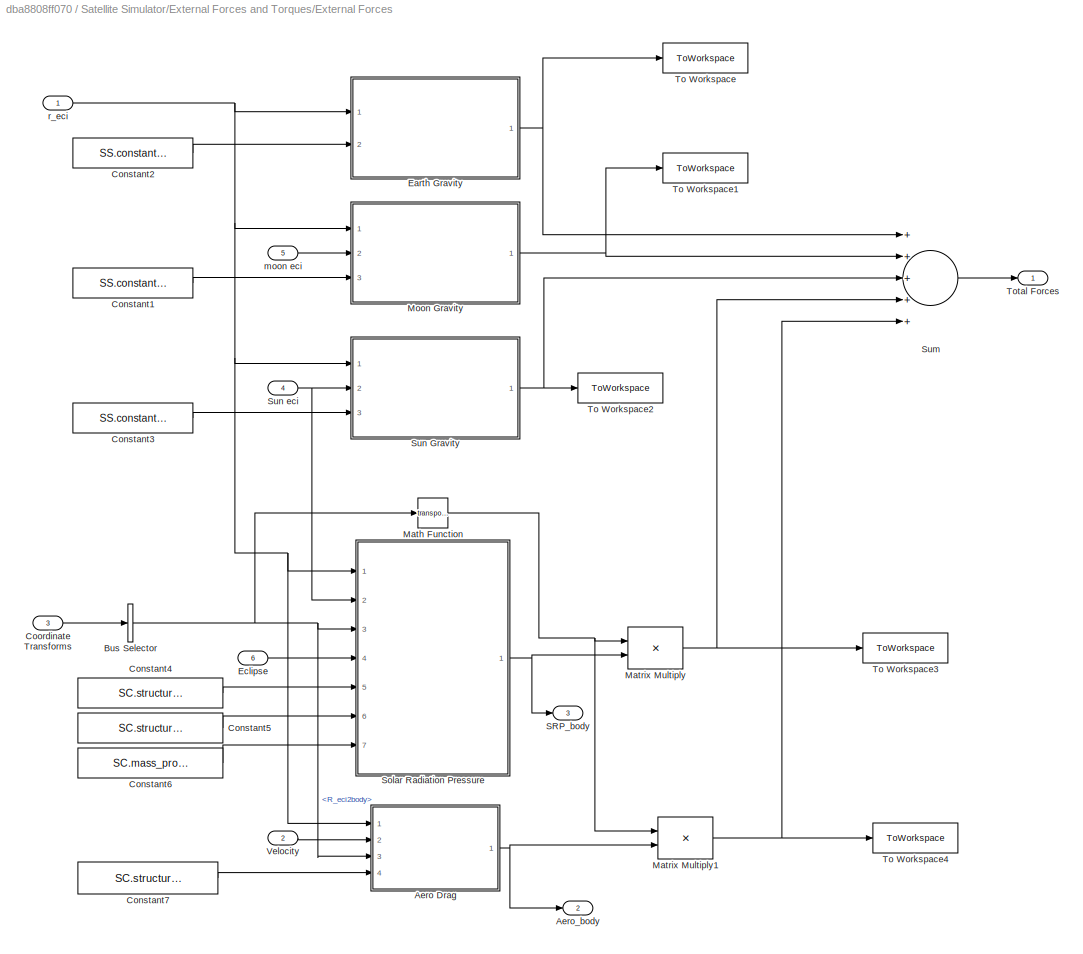
BLOCK [SubSystem] Satellite Simulator/External Forces and Torques/External Forces
  Ports = [6, 3]
  RequestExecContextInheritance = off
BLOCK [SubSystem] Satellite Simulator/External Forces and Torques/External Forces/Aero Drag
  ErrorFcn = Stateflow.Translate.translate
  PermitHierarchicalResolution = ExplicitOnly
  Ports = [4, 1]
  RequestExecContextInheritance = off
  SFBlockType = MATLAB Function
  TreatAsAtomicUnit = on
BLOCK [Demux] Satellite Simulator/External Forces and Torques/External Forces/Aero Drag/ Demux 
  Outputs = 1
  Ports = [1, 1]
BLOCK [S-Function] Satellite Simulator/External Forces and Torques/External Forces/Aero Drag/ SFunction 
  EnableBusSupport = on
  FunctionName = sf_sfun
  PortCounts = [4 2]
  Ports = [4, 2]
  SFcnIsStateOwnerBlock = off
  SFunctionDeploymentMode = off
  Tag = Stateflow S-Function ADCS_r2017b2 29
BLOCK [Terminator] Satellite Simulator/External Forces and Torques/External Forces/Aero Drag/ Terminator 
BLOCK [Inport] Satellite Simulator/External Forces and Torques/External Forces/Aero Drag/CD
  IconDisplay = Port number
  Port = 4
BLOCK [Inport] Satellite Simulator/External Forces and Torques/External Forces/Aero Drag/R_eci2body
  IconDisplay = Port number
  Port = 3
BLOCK [Outport] Satellite Simulator/External Forces and Torques/External Forces/Aero Drag/a_body
  IconDisplay = Port number
BLOCK [Inport] Satellite Simulator/External Forces and Torques/External Forces/Aero Drag/r_eci
  IconDisplay = Port number
BLOCK [Inport] Satellite Simulator/External Forces and Torques/External Forces/Aero Drag/v_eci
  IconDisplay = Port number
  Port = 2
BLOCK [Outport] Satellite Simulator/External Forces and Torques/External Forces/Aero_body
  IconDisplay = Port number
  Port = 2
BLOCK [BusSelector] Satellite Simulator/External Forces and Torques/External Forces/Bus Selector
  OutputAsBus = off
  OutputSignals = R_eci2body
  Ports = [1, 1]
BLOCK [Constant] Satellite Simulator/External Forces and Torques/External Forces/Constant1
  Value = SS.constants.GM_Moon
BLOCK [Constant] Satellite Simulator/External Forces and Torques/External Forces/Constant2
  Value = SS.constants.GM_Earth
BLOCK [Constant] Satellite Simulator/External Forces and Torques/External Forces/Constant3
  Value = SS.constants.GM_Sun
BLOCK [Constant] Satellite Simulator/External Forces and Torques/External Forces/Constant4
  Value = SC.structure.unitSurfaces
BLOCK [Constant] Satellite Simulator/External Forces and Torques/External Forces/Constant5
  Value = SC.structure.area_per_face
BLOCK [Constant] Satellite Simulator/External Forces and Torques/External Forces/Constant6
  Value = SC.mass_properties.mass
BLOCK [Constant] Satellite Simulator/External Forces and Torques/External Forces/Constant7
  Value = SC.structure.CD
BLOCK [Inport] Satellite Simulator/External Forces and Torques/External Forces/Coordinate Transforms
  IconDisplay = Port number
  Port = 3
BLOCK [SubSystem] Satellite Simulator/External Forces and Torques/External Forces/Earth Gravity
  ErrorFcn = Stateflow.Translate.translate
  PermitHierarchicalResolution = ExplicitOnly
  Ports = [2, 1]
  RequestExecContextInheritance = off
  SFBlockType = MATLAB Function
  TreatAsAtomicUnit = on
BLOCK [Demux] Satellite Simulator/External Forces and Torques/External Forces/Earth Gravity/ Demux 
  Outputs = 1
  Ports = [1, 1]
BLOCK [S-Function] Satellite Simulator/External Forces and Torques/External Forces/Earth Gravity/ SFunction 
  EnableBusSupport = on
  FunctionName = sf_sfun
  PortCounts = [2 2]
  Ports = [2, 2]
  SFcnIsStateOwnerBlock = off
  SFunctionDeploymentMode = off
  Tag = Stateflow S-Function ADCS_r2017b2 30
BLOCK [Terminator] Satellite Simulator/External Forces and Torques/External Forces/Earth Gravity/ Terminator 
BLOCK [Inport] Satellite Simulator/External Forces and Torques/External Forces/Earth Gravity/GM_Earth
  IconDisplay = Port number
  Port = 2
BLOCK [Outport] Satellite Simulator/External Forces and Torques/External Forces/Earth Gravity/a_eci
  IconDisplay = Port number
BLOCK [Inport] Satellite Simulator/External Forces and Torques/External Forces/Earth Gravity/r_eci
  IconDisplay = Port number
BLOCK [Inport] Satellite Simulator/External Forces and Torques/External Forces/Eclipse
  IconDisplay = Port number
  Port = 6
BLOCK [Math] Satellite Simulator/External Forces and Torques/External Forces/Math Function
  Operator = transpose
  Ports = [1, 1]
BLOCK [Product] Satellite Simulator/External Forces and Torques/External Forces/Matrix Multiply
  InputSameDT = off
  Multiplication = Matrix(*)
  OutDataTypeStr = Inherit: Inherit via internal rule
  Ports = [2, 1]
  RndMeth = Floor
  SaturateOnIntegerOverflow = off
BLOCK [Product] Satellite Simulator/External Forces and Torques/External Forces/Matrix Multiply1
  InputSameDT = off
  Multiplication = Matrix(*)
  OutDataTypeStr = Inherit: Inherit via internal rule
  Ports = [2, 1]
  RndMeth = Floor
  SaturateOnIntegerOverflow = off
BLOCK [SubSystem] Satellite Simulator/External Forces and Torques/External Forces/Moon Gravity
  ErrorFcn = Stateflow.Translate.translate
  PermitHierarchicalResolution = ExplicitOnly
  Ports = [3, 1]
  RequestExecContextInheritance = off
  SFBlockType = MATLAB Function
  TreatAsAtomicUnit = on
BLOCK [Demux] Satellite Simulator/External Forces and Torques/External Forces/Moon Gravity/ Demux 
  Outputs = 1
  Ports = [1, 1]
BLOCK [S-Function] Satellite Simulator/External Forces and Torques/External Forces/Moon Gravity/ SFunction 
  EnableBusSupport = on
  FunctionName = sf_sfun
  PortCounts = [3 2]
  Ports = [3, 2]
  SFcnIsStateOwnerBlock = off
  SFunctionDeploymentMode = off
  Tag = Stateflow S-Function ADCS_r2017b2 31
BLOCK [Terminator] Satellite Simulator/External Forces and Torques/External Forces/Moon Gravity/ Terminator 
BLOCK [Inport] Satellite Simulator/External Forces and Torques/External Forces/Moon Gravity/GM_Moon
  IconDisplay = Port number
  Port = 3
BLOCK [Outport] Satellite Simulator/External Forces and Torques/External Forces/Moon Gravity/a_eci
  IconDisplay = Port number
BLOCK [Inport] Satellite Simulator/External Forces and Torques/External Forces/Moon Gravity/moon_eci
  IconDisplay = Port number
  Port = 2
BLOCK [Inport] Satellite Simulator/External Forces and Torques/External Forces/Moon Gravity/r_eci
  IconDisplay = Port number
BLOCK [Outport] Satellite Simulator/External Forces and Torques/External Forces/SRP_body
  IconDisplay = Port number
  Port = 3
BLOCK [SubSystem] Satellite Simulator/External Forces and Torques/External Forces/Solar Radiation Pressure
  ErrorFcn = Stateflow.Translate.translate
  PermitHierarchicalResolution = ExplicitOnly
  Ports = [7, 1]
  RequestExecContextInheritance = off
  SFBlockType = MATLAB Function
  TreatAsAtomicUnit = on
BLOCK [Demux] Satellite Simulator/External Forces and Torques/External Forces/Solar Radiation Pressure/ Demux 
  Outputs = 1
  Ports = [1, 1]
BLOCK [S-Function] Satellite Simulator/External Forces and Torques/External Forces/Solar Radiation Pressure/ SFunction 
  EnableBusSupport = on
  FunctionName = sf_sfun
  PortCounts = [7 2]
  Ports = [7, 2]
  SFcnIsStateOwnerBlock = off
  SFunctionDeploymentMode = off
  Tag = Stateflow S-Function ADCS_r2017b2 32
BLOCK [Terminator] Satellite Simulator/External Forces and Torques/External Forces/Solar Radiation Pressure/ Terminator 
BLOCK [Inport] Satellite Simulator/External Forces and Torques/External Forces/Solar Radiation Pressure/R_eci2body
  IconDisplay = Port number
  Port = 3
BLOCK [Outport] Satellite Simulator/External Forces and Torques/External Forces/Solar Radiation Pressure/a_body
  IconDisplay = Port number
BLOCK [Inport] Satellite Simulator/External Forces and Torques/External Forces/Solar Radiation Pressure/area_per_face
  IconDisplay = Port number
  Port = 6
BLOCK [Inport] Satellite Simulator/External Forces and Torques/External Forces/Solar Radiation Pressure/eclipse
  IconDisplay = Port number
  Port = 4
BLOCK [Inport] Satellite Simulator/External Forces and Torques/External Forces/Solar Radiation Pressure/mass
  IconDisplay = Port number
  Port = 7
BLOCK [Inport] Satellite Simulator/External Forces and Torques/External Forces/Solar Radiation Pressure/r_eci
  IconDisplay = Port number
BLOCK [Inport] Satellite Simulator/External Forces and Torques/External Forces/Solar Radiation Pressure/sun_eci
  IconDisplay = Port number
  Port = 2
BLOCK [Inport] Satellite Simulator/External Forces and Torques/External Forces/Solar Radiation Pressure/unitPtVec
  IconDisplay = Port number
  Port = 5
BLOCK [Sum] Satellite Simulator/External Forces and Torques/External Forces/Sum
  InputSameDT = off
  Inputs = +++++
  OutDataTypeStr = Inherit: Inherit via internal rule
  Ports = [5, 1]
  SaturateOnIntegerOverflow = off
BLOCK [SubSystem] Satellite Simulator/External Forces and Torques/External Forces/Sun Gravity
  ErrorFcn = Stateflow.Translate.translate
  PermitHierarchicalResolution = ExplicitOnly
  Ports = [3, 1]
  RequestExecContextInheritance = off
  SFBlockType = MATLAB Function
  TreatAsAtomicUnit = on
BLOCK [Demux] Satellite Simulator/External Forces and Torques/External Forces/Sun Gravity/ Demux 
  Outputs = 1
  Ports = [1, 1]
BLOCK [S-Function] Satellite Simulator/External Forces and Torques/External Forces/Sun Gravity/ SFunction 
  EnableBusSupport = on
  FunctionName = sf_sfun
  PortCounts = [3 2]
  Ports = [3, 2]
  SFcnIsStateOwnerBlock = off
  SFunctionDeploymentMode = off
  Tag = Stateflow S-Function ADCS_r2017b2 33
BLOCK [Terminator] Satellite Simulator/External Forces and Torques/External Forces/Sun Gravity/ Terminator 
BLOCK [Inport] Satellite Simulator/External Forces and Torques/External Forces/Sun Gravity/GM_sun
  IconDisplay = Port number
  Port = 3
BLOCK [Outport] Satellite Simulator/External Forces and Torques/External Forces/Sun Gravity/a_eci
  IconDisplay = Port number
BLOCK [Inport] Satellite Simulator/External Forces and Torques/External Forces/Sun Gravity/r_eci
  IconDisplay = Port number
BLOCK [Inport] Satellite Simulator/External Forces and Torques/External Forces/Sun Gravity/sun_eci
  IconDisplay = Port number
  Port = 2
BLOCK [Inport] Satellite Simulator/External Forces and Torques/External Forces/Sun eci
  IconDisplay = Port number
  Port = 4
BLOCK [ToWorkspace] Satellite Simulator/External Forces and Torques/External Forces/To Workspace
  FixptAsFi = on
  MaxDataPoints = inf
  Ports = [1]
  SampleTime = -1
  Save2DSignal = 3-D array (concatenate along third dimension)
  VariableName = a_eci_earth
BLOCK [ToWorkspace] Satellite Simulator/External Forces and Torques/External Forces/To Workspace1
  FixptAsFi = on
  MaxDataPoints = inf
  Ports = [1]
  SampleTime = -1
  Save2DSignal = 3-D array (concatenate along third dimension)
  VariableName = a_eci_moon
BLOCK [ToWorkspace] Satellite Simulator/External Forces and Torques/External Forces/To Workspace2
  FixptAsFi = on
  MaxDataPoints = inf
  Ports = [1]
  SampleTime = -1
  Save2DSignal = 3-D array (concatenate along third dimension)
  VariableName = a_eci_sun
BLOCK [ToWorkspace] Satellite Simulator/External Forces and Torques/External Forces/To Workspace3
  FixptAsFi = on
  MaxDataPoints = inf
  Ports = [1]
  SampleTime = -1
  Save2DSignal = 3-D array (concatenate along third dimension)
  VariableName = a_eci_srp
BLOCK [ToWorkspace] Satellite Simulator/External Forces and Torques/External Forces/To Workspace4
  FixptAsFi = on
  MaxDataPoints = inf
  Ports = [1]
  SampleTime = -1
  Save2DSignal = 3-D array (concatenate along third dimension)
  VariableName = a_eci_aero
BLOCK [Outport] Satellite Simulator/External Forces and Torques/External Forces/Total Forces
  IconDisplay = Port number
BLOCK [Inport] Satellite Simulator/External Forces and Torques/External Forces/Velocity
  IconDisplay = Port number
  Port = 2
BLOCK [Inport] Satellite Simulator/External Forces and Torques/External Forces/moon eci
  IconDisplay = Port number
  Port = 5
BLOCK [Inport] Satellite Simulator/External Forces and Torques/External Forces/r_eci
  IconDisplay = Port number
BLOCK [SubSystem] Satellite Simulator/External Forces and Torques/External Torques
  Ports = [5, 1]
  RequestExecContextInheritance = off
BLOCK [SubSystem] Satellite Simulator/External Forces and Torques/External Torques/Aero Torque
  ErrorFcn = Stateflow.Translate.translate
  PermitHierarchicalResolution = ExplicitOnly
  Ports = [2, 1]
  RequestExecContextInheritance = off
  SFBlockType = MATLAB Function
  TreatAsAtomicUnit = on
BLOCK [Demux] Satellite Simulator/External Forces and Torques/External Torques/Aero Torque/ Demux 
  Outputs = 1
  Ports = [1, 1]
BLOCK [S-Function] Satellite Simulator/External Forces and Torques/External Torques/Aero Torque/ SFunction 
  EnableBusSupport = on
  FunctionName = sf_sfun
  PortCounts = [2 2]
  Ports = [2, 2]
  SFcnIsStateOwnerBlock = off
  SFunctionDeploymentMode = off
  Tag = Stateflow S-Function ADCS_r2017b2 34
BLOCK [Terminator] Satellite Simulator/External Forces and Torques/External Torques/Aero Torque/ Terminator 
BLOCK [Inport] Satellite Simulator/External Forces and Torques/External Torques/Aero Torque/f_aero_body
  IconDisplay = Port number
BLOCK [Inport] Satellite Simulator/External Forces and Torques/External Torques/Aero Torque/moment_arms
  IconDisplay = Port number
  Port = 2
BLOCK [Outport] Satellite Simulator/External Forces and Torques/External Torques/Aero Torque/tor
  IconDisplay = Port number
BLOCK [BusSelector] Satellite Simulator/External Forces and Torques/External Torques/Bus Selector
  OutputAsBus = off
  OutputSignals = R_eci2body,R_eci2mci
  Ports = [1, 2]
BLOCK [Constant] Satellite Simulator/External Forces and Torques/External Torques/Constant
  Value = SC.structure.moment_arms
BLOCK [Constant] Satellite Simulator/External Forces and Torques/External Torques/Constant1
  Value = SC.structure.residual_dipole
BLOCK [Inport] Satellite Simulator/External Forces and Torques/External Torques/Coordinate Transforms
  IconDisplay = Port number
  Port = 5
BLOCK [Inport] Satellite Simulator/External Forces and Torques/External Torques/Force_SRP_body
  IconDisplay = Port number
  Port = 2
BLOCK [Inport] Satellite Simulator/External Forces and Torques/External Torques/Force_aero_body
  IconDisplay = Port number
BLOCK [SubSystem] Satellite Simulator/External Forces and Torques/External Torques/Grav gradient earth
  Ports = [2, 1]
  RequestExecContextInheritance = off
BLOCK [Reference] Satellite Simulator/External Forces and Torques/External Torques/Grav gradient earth/3x3 Cross Product  REF=sharedutil/3x3 Cross Product
  Ports = [2, 1]
  SourceBlock = sharedutil/3x3 Cross Product
  SourceProductBaseCode = AE
  SourceProductName = Aerospace Blockset
  SourceType = CrossProduct
BLOCK [Constant] Satellite Simulator/External Forces and Torques/External Torques/Grav gradient earth/Constant
  Value = SC.mass_properties.inertia
BLOCK [Constant] Satellite Simulator/External Forces and Torques/External Torques/Grav gradient earth/Constant1
  Value = SS.constants.GM_Earth
BLOCK [SubSystem] Satellite Simulator/External Forces and Torques/External Torques/Grav gradient earth/MATLAB Function
  ErrorFcn = Stateflow.Translate.translate
  PermitHierarchicalResolution = ExplicitOnly
  Ports = [3, 1]
  RequestExecContextInheritance = off
  SFBlockType = MATLAB Function
  TreatAsAtomicUnit = on
BLOCK [Demux] Satellite Simulator/External Forces and Torques/External Torques/Grav gradient earth/MATLAB Function/ Demux 
  Outputs = 1
  Ports = [1, 1]
BLOCK [S-Function] Satellite Simulator/External Forces and Torques/External Torques/Grav gradient earth/MATLAB Function/ SFunction 
  EnableBusSupport = on
  FunctionName = sf_sfun
  PortCounts = [3 2]
  Ports = [3, 2]
  SFcnIsStateOwnerBlock = off
  SFunctionDeploymentMode = off
  Tag = Stateflow S-Function ADCS_r2017b2 15
BLOCK [Terminator] Satellite Simulator/External Forces and Torques/External Torques/Grav gradient earth/MATLAB Function/ Terminator 
BLOCK [Inport] Satellite Simulator/External Forces and Torques/External Torques/Grav gradient earth/MATLAB Function/GM
  IconDisplay = Port number
  Port = 3
BLOCK [Inport] Satellite Simulator/External Forces and Torques/External Torques/Grav gradient earth/MATLAB Function/rIr
  IconDisplay = Port number
BLOCK [Inport] Satellite Simulator/External Forces and Torques/External Torques/Grav gradient earth/MATLAB Function/r_eci
  IconDisplay = Port number
  Port = 2
BLOCK [Outport] Satellite Simulator/External Forces and Torques/External Torques/Grav gradient earth/MATLAB Function/tor
  IconDisplay = Port number
BLOCK [Product] Satellite Simulator/External Forces and Torques/External Torques/Grav gradient earth/Matrix Multiply
  InputSameDT = off
  Multiplication = Matrix(*)
  OutDataTypeStr = Inherit: Inherit via internal rule
  Ports = [2, 1]
  RndMeth = Floor
  SaturateOnIntegerOverflow = off
BLOCK [Product] Satellite Simulator/External Forces and Torques/External Torques/Grav gradient earth/Matrix Multiply1
  InputSameDT = off
  Multiplication = Matrix(*)
  OutDataTypeStr = Inherit: Inherit via internal rule
  Ports = [2, 1]
  RndMeth = Floor
  SaturateOnIntegerOverflow = off
BLOCK [Reference] Satellite Simulator/External Forces and Torques/External Torques/Grav gradient earth/Normalize Vector  REF=vrlib/Utilities/Normalize Vector
  Ports = [1, 1]
  SourceBlock = vrlib/Utilities/Normalize Vector
  SourceProductBaseCode = VR
  SourceProductName = Simulink 3D Animation
  SourceType = Normalize Vector
BLOCK [Inport] Satellite Simulator/External Forces and Torques/External Torques/Grav gradient earth/R_eci2body
  IconDisplay = Port number
  Port = 2
BLOCK [Outport] Satellite Simulator/External Forces and Torques/External Torques/Grav gradient earth/Torque_body
  IconDisplay = Port number
BLOCK [Inport] Satellite Simulator/External Forces and Torques/External Torques/Grav gradient earth/r_eci
  IconDisplay = Port number
BLOCK [SubSystem] Satellite Simulator/External Forces and Torques/External Torques/Grav gradient moon
  Ports = [2, 1]
  RequestExecContextInheritance = off
BLOCK [Reference] Satellite Simulator/External Forces and Torques/External Torques/Grav gradient moon/3x3 Cross Product  REF=sharedutil/3x3 Cross Product
  Ports = [2, 1]
  SourceBlock = sharedutil/3x3 Cross Product
  SourceProductBaseCode = AE
  SourceProductName = Aerospace Blockset
  SourceType = CrossProduct
BLOCK [Constant] Satellite Simulator/External Forces and Torques/External Torques/Grav gradient moon/Constant
  Value = SC.mass_properties.inertia
BLOCK [Constant] Satellite Simulator/External Forces and Torques/External Torques/Grav gradient moon/Constant1
  Value = SS.constants.GM_Moon
BLOCK [SubSystem] Satellite Simulator/External Forces and Torques/External Torques/Grav gradient moon/MATLAB Function
  ErrorFcn = Stateflow.Translate.translate
  PermitHierarchicalResolution = ExplicitOnly
  Ports = [3, 1]
  RequestExecContextInheritance = off
  SFBlockType = MATLAB Function
  TreatAsAtomicUnit = on
BLOCK [Demux] Satellite Simulator/External Forces and Torques/External Torques/Grav gradient moon/MATLAB Function/ Demux 
  Outputs = 1
  Ports = [1, 1]
BLOCK [S-Function] Satellite Simulator/External Forces and Torques/External Torques/Grav gradient moon/MATLAB Function/ SFunction 
  EnableBusSupport = on
  FunctionName = sf_sfun
  PortCounts = [3 2]
  Ports = [3, 2]
  SFcnIsStateOwnerBlock = off
  SFunctionDeploymentMode = off
  Tag = Stateflow S-Function ADCS_r2017b2 16
BLOCK [Terminator] Satellite Simulator/External Forces and Torques/External Torques/Grav gradient moon/MATLAB Function/ Terminator 
BLOCK [Inport] Satellite Simulator/External Forces and Torques/External Torques/Grav gradient moon/MATLAB Function/GM
  IconDisplay = Port number
  Port = 3
BLOCK [Inport] Satellite Simulator/External Forces and Torques/External Torques/Grav gradient moon/MATLAB Function/rIr
  IconDisplay = Port number
BLOCK [Inport] Satellite Simulator/External Forces and Torques/External Torques/Grav gradient moon/MATLAB Function/r_mci
  IconDisplay = Port number
  Port = 2
BLOCK [Outport] Satellite Simulator/External Forces and Torques/External Torques/Grav gradient moon/MATLAB Function/tor
  IconDisplay = Port number
BLOCK [Product] Satellite Simulator/External Forces and Torques/External Torques/Grav gradient moon/Matrix Multiply
  InputSameDT = off
  Multiplication = Matrix(*)
  OutDataTypeStr = Inherit: Inherit via internal rule
  Ports = [2, 1]
  RndMeth = Floor
  SaturateOnIntegerOverflow = off
BLOCK [Product] Satellite Simulator/External Forces and Torques/External Torques/Grav gradient moon/Matrix Multiply1
  InputSameDT = off
  Multiplication = Matrix(*)
  OutDataTypeStr = Inherit: Inherit via internal rule
  Ports = [2, 1]
  RndMeth = Floor
  SaturateOnIntegerOverflow = off
BLOCK [Reference] Satellite Simulator/External Forces and Torques/External Torques/Grav gradient moon/Normalize Vector  REF=vrlib/Utilities/Normalize Vector
  Ports = [1, 1]
  SourceBlock = vrlib/Utilities/Normalize Vector
  SourceProductBaseCode = VR
  SourceProductName = Simulink 3D Animation
  SourceType = Normalize Vector
BLOCK [Inport] Satellite Simulator/External Forces and Torques/External Torques/Grav gradient moon/R_mci2body
  IconDisplay = Port number
  Port = 2
BLOCK [Outport] Satellite Simulator/External Forces and Torques/External Torques/Grav gradient moon/Torque_body
  IconDisplay = Port number
BLOCK [Inport] Satellite Simulator/External Forces and Torques/External Torques/Grav gradient moon/r_mci
  IconDisplay = Port number
BLOCK [Inport] Satellite Simulator/External Forces and Torques/External Torques/Mag
  IconDisplay = Port number
  Port = 4
BLOCK [Reference] Satellite Simulator/External Forces and Torques/External Torques/Mag Torque  REF=sharedutil/3x3 Cross Product
  Ports = [2, 1]
  SourceBlock = sharedutil/3x3 Cross Product
  SourceProductBaseCode = AE
  SourceProductName = Aerospace Blockset
  SourceType = CrossProduct
BLOCK [Math] Satellite Simulator/External Forces and Torques/External Torques/Math Function
  Operator = transpose
  Ports = [1, 1]
BLOCK [Product] Satellite Simulator/External Forces and Torques/External Torques/Matrix Multiply
  InputSameDT = off
  Multiplication = Matrix(*)
  OutDataTypeStr = Inherit: Inherit via internal rule
  Ports = [2, 1]
  RndMeth = Floor
  SaturateOnIntegerOverflow = off
BLOCK [Product] Satellite Simulator/External Forces and Torques/External Torques/Matrix Multiply1
  InputSameDT = off
  Multiplication = Matrix(*)
  OutDataTypeStr = Inherit: Inherit via internal rule
  Ports = [2, 1]
  RndMeth = Floor
  SaturateOnIntegerOverflow = off
BLOCK [SubSystem] Satellite Simulator/External Forces and Torques/External Torques/SRP Torque
  ErrorFcn = Stateflow.Translate.translate
  PermitHierarchicalResolution = ExplicitOnly
  Ports = [2, 1]
  RequestExecContextInheritance = off
  SFBlockType = MATLAB Function
  TreatAsAtomicUnit = on
BLOCK [Demux] Satellite Simulator/External Forces and Torques/External Torques/SRP Torque/ Demux 
  Outputs = 1
  Ports = [1, 1]
BLOCK [S-Function] Satellite Simulator/External Forces and Torques/External Torques/SRP Torque/ SFunction 
  EnableBusSupport = on
  FunctionName = sf_sfun
  PortCounts = [2 2]
  Ports = [2, 2]
  SFcnIsStateOwnerBlock = off
  SFunctionDeploymentMode = off
  Tag = Stateflow S-Function ADCS_r2017b2 38
BLOCK [Terminator] Satellite Simulator/External Forces and Torques/External Torques/SRP Torque/ Terminator 
BLOCK [Inport] Satellite Simulator/External Forces and Torques/External Torques/SRP Torque/f_SRP_body
  IconDisplay = Port number
BLOCK [Inport] Satellite Simulator/External Forces and Torques/External Torques/SRP Torque/moment_arms
  IconDisplay = Port number
  Port = 2
BLOCK [Outport] Satellite Simulator/External Forces and Torques/External Torques/SRP Torque/tor
  IconDisplay = Port number
BLOCK [Sum] Satellite Simulator/External Forces and Torques/External Torques/Sum
  InputSameDT = off
  Inputs = 5
  OutDataTypeStr = Inherit: Inherit via internal rule
  Ports = [5, 1]
  SaturateOnIntegerOverflow = off
BLOCK [Outport] Satellite Simulator/External Forces and Torques/External Torques/Torques
  IconDisplay = Port number
BLOCK [Gain] Satellite Simulator/External Forces and Torques/External Torques/nT -> T
  Gain = 10^-9
  OutDataTypeStr = Inherit: Inherit via internal rule
  ParamDataTypeStr = Inherit: Inherit via internal rule
  SaturateOnIntegerOverflow = off
BLOCK [Inport] Satellite Simulator/External Forces and Torques/External Torques/r_eci
  IconDisplay = Port number
  Port = 3
BLOCK [Inport] Satellite Simulator/External Forces and Torques/Mag
  IconDisplay = Port number
  Port = 6
BLOCK [Inport] Satellite Simulator/External Forces and Torques/Position
  IconDisplay = Port number
BLOCK [Inport] Satellite Simulator/External Forces and Torques/Velocity
  IconDisplay = Port number
  Port = 2
BLOCK [Inport] Satellite Simulator/External Forces and Torques/moon_eci
  IconDisplay = Port number
  Port = 5
BLOCK [Inport] Satellite Simulator/External Forces and Torques/sun_eci
  IconDisplay = Port number
  Port = 4
BLOCK [SubSystem] Satellite Simulator/Kinematics
  Ports = [3, 5]
  RequestExecContextInheritance = off
BLOCK [SubSystem] Satellite Simulator/Kinematics/Backup Rotation Kinematics
  Ports = [1, 2]
  RequestExecContextInheritance = off
BLOCK [SubSystem] Satellite Simulator/Kinematics/Backup Rotation Kinematics/Adams Bashforth Integration
  Ports = [3, 1]
  RequestExecContextInheritance = off
BLOCK [Delay] Satellite Simulator/Kinematics/Backup Rotation Kinematics/Adams Bashforth Integration/Delay
  DelayLength = 1
  InitialCondition = 0
  InitialConditionSource = Input port
  InputPortMap = u0,p4
  Ports = [2, 1]
BLOCK [Delay] Satellite Simulator/Kinematics/Backup Rotation Kinematics/Adams Bashforth Integration/Delay1
  DelayLength = 1
  InitialCondition = 0
  InitialConditionSource = Input port
  InputPortMap = u0,p4
  Ports = [2, 1]
BLOCK [Delay] Satellite Simulator/Kinematics/Backup Rotation Kinematics/Adams Bashforth Integration/Delay2
  DelayLength = 1
  InitialCondition = 0
  InitialConditionSource = Input port
  InputPortMap = u0,p4
  Ports = [2, 1]
BLOCK [Gain] Satellite Simulator/Kinematics/Backup Rotation Kinematics/Adams Bashforth Integration/Gain
  Gain = 23/12
  OutDataTypeStr = Inherit: Inherit via internal rule
  ParamDataTypeStr = Inherit: Inherit via internal rule
  SaturateOnIntegerOverflow = off
BLOCK [Gain] Satellite Simulator/Kinematics/Backup Rotation Kinematics/Adams Bashforth Integration/Gain1
  Gain = -16/12
  OutDataTypeStr = Inherit: Inherit via internal rule
  ParamDataTypeStr = Inherit: Inherit via internal rule
  SaturateOnIntegerOverflow = off
BLOCK [Gain] Satellite Simulator/Kinematics/Backup Rotation Kinematics/Adams Bashforth Integration/Gain2
  Gain = 5/12
  OutDataTypeStr = Inherit: Inherit via internal rule
  ParamDataTypeStr = Inherit: Inherit via internal rule
  SaturateOnIntegerOverflow = off
BLOCK [Product] Satellite Simulator/Kinematics/Backup Rotation Kinematics/Adams Bashforth Integration/Product
  InputSameDT = off
  OutDataTypeStr = Inherit: Inherit via internal rule
  Ports = [2, 1]
  RndMeth = Floor
  SaturateOnIntegerOverflow = off
BLOCK [Sum] Satellite Simulator/Kinematics/Backup Rotation Kinematics/Adams Bashforth Integration/Sum
  IconShape = round
  InputSameDT = off
  Inputs = |++
  OutDataTypeStr = Inherit: Inherit via internal rule
  Ports = [2, 1]
  SaturateOnIntegerOverflow = off
BLOCK [Sum] Satellite Simulator/Kinematics/Backup Rotation Kinematics/Adams Bashforth Integration/Sum1
  InputSameDT = off
  Inputs = +++
  OutDataTypeStr = Inherit: Inherit via internal rule
  Ports = [3, 1]
  SaturateOnIntegerOverflow = off
BLOCK [Inport] Satellite Simulator/Kinematics/Backup Rotation Kinematics/Adams Bashforth Integration/dt
  IconDisplay = Port number
  Port = 3
BLOCK [Outport] Satellite Simulator/Kinematics/Backup Rotation Kinematics/Adams Bashforth Integration/x
  IconDisplay = Port number
BLOCK [Inport] Satellite Simulator/Kinematics/Backup Rotation Kinematics/Adams Bashforth Integration/x_dot
  IconDisplay = Port number
  Port = 2
BLOCK [Inport] Satellite Simulator/Kinematics/Backup Rotation Kinematics/Adams Bashforth Integration/x_initial
  IconDisplay = Port number
BLOCK [SubSystem] Satellite Simulator/Kinematics/Backup Rotation Kinematics/Adams Bashforth Integration1
  Ports = [3, 1]
  RequestExecContextInheritance = off
BLOCK [Delay] Satellite Simulator/Kinematics/Backup Rotation Kinematics/Adams Bashforth Integration1/Delay
  DelayLength = 1
  InitialCondition = 0
  InitialConditionSource = Input port
  InputPortMap = u0,p4
  Ports = [2, 1]
BLOCK [Delay] Satellite Simulator/Kinematics/Backup Rotation Kinematics/Adams Bashforth Integration1/Delay1
  DelayLength = 1
  InitialCondition = 0
  InitialConditionSource = Input port
  InputPortMap = u0,p4
  Ports = [2, 1]
BLOCK [Delay] Satellite Simulator/Kinematics/Backup Rotation Kinematics/Adams Bashforth Integration1/Delay2
  DelayLength = 1
  InitialCondition = 0
  InitialConditionSource = Input port
  InputPortMap = u0,p4
  Ports = [2, 1]
BLOCK [Gain] Satellite Simulator/Kinematics/Backup Rotation Kinematics/Adams Bashforth Integration1/Gain
  Gain = 23/12
  OutDataTypeStr = Inherit: Inherit via internal rule
  ParamDataTypeStr = Inherit: Inherit via internal rule
  SaturateOnIntegerOverflow = off
BLOCK [Gain] Satellite Simulator/Kinematics/Backup Rotation Kinematics/Adams Bashforth Integration1/Gain1
  Gain = -16/12
  OutDataTypeStr = Inherit: Inherit via internal rule
  ParamDataTypeStr = Inherit: Inherit via internal rule
  SaturateOnIntegerOverflow = off
BLOCK [Gain] Satellite Simulator/Kinematics/Backup Rotation Kinematics/Adams Bashforth Integration1/Gain2
  Gain = 5/12
  OutDataTypeStr = Inherit: Inherit via internal rule
  ParamDataTypeStr = Inherit: Inherit via internal rule
  SaturateOnIntegerOverflow = off
BLOCK [Product] Satellite Simulator/Kinematics/Backup Rotation Kinematics/Adams Bashforth Integration1/Product
  InputSameDT = off
  OutDataTypeStr = Inherit: Inherit via internal rule
  Ports = [2, 1]
  RndMeth = Floor
  SaturateOnIntegerOverflow = off
BLOCK [Sum] Satellite Simulator/Kinematics/Backup Rotation Kinematics/Adams Bashforth Integration1/Sum
  IconShape = round
  InputSameDT = off
  Inputs = |++
  OutDataTypeStr = Inherit: Inherit via internal rule
  Ports = [2, 1]
  SaturateOnIntegerOverflow = off
BLOCK [Sum] Satellite Simulator/Kinematics/Backup Rotation Kinematics/Adams Bashforth Integration1/Sum1
  InputSameDT = off
  Inputs = +++
  OutDataTypeStr = Inherit: Inherit via internal rule
  Ports = [3, 1]
  SaturateOnIntegerOverflow = off
BLOCK [Inport] Satellite Simulator/Kinematics/Backup Rotation Kinematics/Adams Bashforth Integration1/dt
  IconDisplay = Port number
  Port = 3
BLOCK [Outport] Satellite Simulator/Kinematics/Backup Rotation Kinematics/Adams Bashforth Integration1/x
  IconDisplay = Port number
BLOCK [Inport] Satellite Simulator/Kinematics/Backup Rotation Kinematics/Adams Bashforth Integration1/x_dot
  IconDisplay = Port number
  Port = 2
BLOCK [Inport] Satellite Simulator/Kinematics/Backup Rotation Kinematics/Adams Bashforth Integration1/x_initial
  IconDisplay = Port number
BLOCK [Constant] Satellite Simulator/Kinematics/Backup Rotation Kinematics/Constant
  Value = SC.initial_state.e
BLOCK [Constant] Satellite Simulator/Kinematics/Backup Rotation Kinematics/Constant1
  Value = SC.initial_state.w
BLOCK [Constant] Satellite Simulator/Kinematics/Backup Rotation Kinematics/Constant2
  Value = delta_t
BLOCK [Constant] Satellite Simulator/Kinematics/Backup Rotation Kinematics/Constant3
  Value = SC.mass_properties.inertia
BLOCK [Constant] Satellite Simulator/Kinematics/Backup Rotation Kinematics/Constant4
  Value = delta_t
BLOCK [Delay] Satellite Simulator/Kinematics/Backup Rotation Kinematics/Delay
  DelayLength = 1
  InitialCondition = 0
  InitialConditionSource = Input port
  InputPortMap = u0,p4
  Ports = [2, 1]
BLOCK [Delay] Satellite Simulator/Kinematics/Backup Rotation Kinematics/Delay1
  DelayLength = 1
  InitialCondition = 0
  InitialConditionSource = Input port
  InputPortMap = u0,p4
  Ports = [2, 1]
BLOCK [SubSystem] Satellite Simulator/Kinematics/Backup Rotation Kinematics/Euler Equations
  ErrorFcn = Stateflow.Translate.translate
  PermitHierarchicalResolution = ExplicitOnly
  Ports = [3, 1]
  RequestExecContextInheritance = off
  SFBlockType = MATLAB Function
  TreatAsAtomicUnit = on
BLOCK [Demux] Satellite Simulator/Kinematics/Backup Rotation Kinematics/Euler Equations/ Demux 
  Outputs = 1
  Ports = [1, 1]
BLOCK [S-Function] Satellite Simulator/Kinematics/Backup Rotation Kinematics/Euler Equations/ SFunction 
  EnableBusSupport = on
  FunctionName = sf_sfun
  PortCounts = [3 2]
  Ports = [3, 2]
  SFcnIsStateOwnerBlock = off
  SFunctionDeploymentMode = off
  Tag = Stateflow S-Function ADCS_r2017b2 4
BLOCK [Terminator] Satellite Simulator/Kinematics/Backup Rotation Kinematics/Euler Equations/ Terminator 
BLOCK [Inport] Satellite Simulator/Kinematics/Backup Rotation Kinematics/Euler Equations/I
  IconDisplay = Port number
  Port = 3
BLOCK [Inport] Satellite Simulator/Kinematics/Backup Rotation Kinematics/Euler Equations/tor
  IconDisplay = Port number
  Port = 2
BLOCK [Inport] Satellite Simulator/Kinematics/Backup Rotation Kinematics/Euler Equations/w
  IconDisplay = Port number
BLOCK [Outport] Satellite Simulator/Kinematics/Backup Rotation Kinematics/Euler Equations/w_dot
  IconDisplay = Port number
BLOCK [SubSystem] Satellite Simulator/Kinematics/Backup Rotation Kinematics/calc_e_dot
  ErrorFcn = Stateflow.Translate.translate
  PermitHierarchicalResolution = ExplicitOnly
  Ports = [2, 1]
  RequestExecContextInheritance = off
  SFBlockType = MATLAB Function
  TreatAsAtomicUnit = on
BLOCK [Demux] Satellite Simulator/Kinematics/Backup Rotation Kinematics/calc_e_dot/ Demux 
  Outputs = 1
  Ports = [1, 1]
BLOCK [S-Function] Satellite Simulator/Kinematics/Backup Rotation Kinematics/calc_e_dot/ SFunction 
  EnableBusSupport = on
  FunctionName = sf_sfun
  PortCounts = [2 2]
  Ports = [2, 2]
  SFcnIsStateOwnerBlock = off
  SFunctionDeploymentMode = off
  Tag = Stateflow S-Function ADCS_r2017b2 5
BLOCK [Terminator] Satellite Simulator/Kinematics/Backup Rotation Kinematics/calc_e_dot/ Terminator 
BLOCK [Inport] Satellite Simulator/Kinematics/Backup Rotation Kinematics/calc_e_dot/e
  IconDisplay = Port number
BLOCK [Outport] Satellite Simulator/Kinematics/Backup Rotation Kinematics/calc_e_dot/e_dot
  IconDisplay = Port number
BLOCK [Inport] Satellite Simulator/Kinematics/Backup Rotation Kinematics/calc_e_dot/w
  IconDisplay = Port number
  Port = 2
BLOCK [Outport] Satellite Simulator/Kinematics/Backup Rotation Kinematics/euler_angles
  IconDisplay = Port number
BLOCK [Inport] Satellite Simulator/Kinematics/Backup Rotation Kinematics/torque_body
  IconDisplay = Port number
BLOCK [Outport] Satellite Simulator/Kinematics/Backup Rotation Kinematics/w_body_eci
  IconDisplay = Port number
  Port = 2
BLOCK [SubSystem] Satellite Simulator/Kinematics/Calc Coordinate Transforms
  Ports = [4, 1]
  RequestExecContextInheritance = off
BLOCK [Inport] Satellite Simulator/Kinematics/Calc Coordinate Transforms/Attitude
  IconDisplay = Port number
  Port = 4
BLOCK [BusCreator] Satellite Simulator/Kinematics/Calc Coordinate Transforms/Bus Creator
  DisplayOption = bar
  InheritFromInputs = on
  Inputs = 6
  Ports = [6, 1]
BLOCK [BusCreator] Satellite Simulator/Kinematics/Calc Coordinate Transforms/Bus Creator1
  DisplayOption = bar
  InheritFromInputs = on
  Inputs = 3
  Ports = [3, 1]
BLOCK [SubSystem] Satellite Simulator/Kinematics/Calc Coordinate Transforms/Calc_R_eci2body
  ErrorFcn = Stateflow.Translate.translate
  PermitHierarchicalResolution = ExplicitOnly
  Ports = [1, 1]
  RequestExecContextInheritance = off
  SFBlockType = MATLAB Function
  TreatAsAtomicUnit = on
BLOCK [Demux] Satellite Simulator/Kinematics/Calc Coordinate Transforms/Calc_R_eci2body/ Demux 
  Outputs = 1
  Ports = [1, 1]
BLOCK [S-Function] Satellite Simulator/Kinematics/Calc Coordinate Transforms/Calc_R_eci2body/ SFunction 
  EnableBusSupport = on
  FunctionName = sf_sfun
  PortCounts = [1 2]
  Ports = [1, 2]
  SFcnIsStateOwnerBlock = off
  SFunctionDeploymentMode = off
  Tag = Stateflow S-Function ADCS_r2017b2 7
BLOCK [Terminator] Satellite Simulator/Kinematics/Calc Coordinate Transforms/Calc_R_eci2body/ Terminator 
BLOCK [Outport] Satellite Simulator/Kinematics/Calc Coordinate Transforms/Calc_R_eci2body/R_eci2body
  IconDisplay = Port number
BLOCK [Inport] Satellite Simulator/Kinematics/Calc Coordinate Transforms/Calc_R_eci2body/q
  IconDisplay = Port number
BLOCK [SubSystem] Satellite Simulator/Kinematics/Calc Coordinate Transforms/Calc_R_eci2ecef
  ErrorFcn = Stateflow.Translate.translate
  PermitHierarchicalResolution = ExplicitOnly
  Ports = [1, 1]
  RequestExecContextInheritance = off
  SFBlockType = MATLAB Function
  TreatAsAtomicUnit = on
BLOCK [Demux] Satellite Simulator/Kinematics/Calc Coordinate Transforms/Calc_R_eci2ecef/ Demux 
  Outputs = 1
  Ports = [1, 1]
BLOCK [S-Function] Satellite Simulator/Kinematics/Calc Coordinate Transforms/Calc_R_eci2ecef/ SFunction 
  EnableBusSupport = on
  FunctionName = sf_sfun
  PortCounts = [1 2]
  Ports = [1, 2]
  SFcnIsStateOwnerBlock = off
  SFunctionDeploymentMode = off
  Tag = Stateflow S-Function ADCS_r2017b2 9
BLOCK [Terminator] Satellite Simulator/Kinematics/Calc Coordinate Transforms/Calc_R_eci2ecef/ Terminator 
BLOCK [Inport] Satellite Simulator/Kinematics/Calc Coordinate Transforms/Calc_R_eci2ecef/JD_i
  IconDisplay = Port number
BLOCK [Outport] Satellite Simulator/Kinematics/Calc Coordinate Transforms/Calc_R_eci2ecef/R_eci2ecef
  IconDisplay = Port number
BLOCK [SubSystem] Satellite Simulator/Kinematics/Calc Coordinate Transforms/Calc_R_eci2mci
  ErrorFcn = Stateflow.Translate.translate
  PermitHierarchicalResolution = ExplicitOnly
  Ports = [1, 1]
  RequestExecContextInheritance = off
  SFBlockType = MATLAB Function
  TreatAsAtomicUnit = on
BLOCK [Demux] Satellite Simulator/Kinematics/Calc Coordinate Transforms/Calc_R_eci2mci/ Demux 
  Outputs = 1
  Ports = [1, 1]
BLOCK [S-Function] Satellite Simulator/Kinematics/Calc Coordinate Transforms/Calc_R_eci2mci/ SFunction 
  EnableBusSupport = on
  FunctionName = sf_sfun
  PortCounts = [1 2]
  Ports = [1, 2]
  SFcnIsStateOwnerBlock = off
  SFunctionDeploymentMode = off
  Tag = Stateflow S-Function ADCS_r2017b2 14
BLOCK [Terminator] Satellite Simulator/Kinematics/Calc Coordinate Transforms/Calc_R_eci2mci/ Terminator 
BLOCK [Inport] Satellite Simulator/Kinematics/Calc Coordinate Transforms/Calc_R_eci2mci/JD_i
  IconDisplay = Port number
BLOCK [Outport] Satellite Simulator/Kinematics/Calc Coordinate Transforms/Calc_R_eci2mci/R_eci2mci
  IconDisplay = Port number
BLOCK [Constant] Satellite Simulator/Kinematics/Calc Coordinate Transforms/Constant
  Value = SC.mass_properties.R_body2principal
BLOCK [Outport] Satellite Simulator/Kinematics/Calc Coordinate Transforms/Coordinate Transforms
  IconDisplay = Port number
BLOCK [Inport] Satellite Simulator/Kinematics/Calc Coordinate Transforms/JD
  IconDisplay = Port number
  Port = 3
BLOCK [SubSystem] Satellite Simulator/Kinematics/Calc Coordinate Transforms/MATLAB Function
  ErrorFcn = Stateflow.Translate.translate
  PermitHierarchicalResolution = ExplicitOnly
  Ports = [2, 1]
  RequestExecContextInheritance = off
  SFBlockType = MATLAB Function
  TreatAsAtomicUnit = on
BLOCK [Demux] Satellite Simulator/Kinematics/Calc Coordinate Transforms/MATLAB Function/ Demux 
  Outputs = 1
  Ports = [1, 1]
BLOCK [S-Function] Satellite Simulator/Kinematics/Calc Coordinate Transforms/MATLAB Function/ SFunction 
  EnableBusSupport = on
  FunctionName = sf_sfun
  PortCounts = [2 2]
  Ports = [2, 2]
  SFcnIsStateOwnerBlock = off
  SFunctionDeploymentMode = off
  Tag = Stateflow S-Function ADCS_r2017b2 13
BLOCK [Terminator] Satellite Simulator/Kinematics/Calc Coordinate Transforms/MATLAB Function/ Terminator 
BLOCK [Outport] Satellite Simulator/Kinematics/Calc Coordinate Transforms/MATLAB Function/R_ecef2ned
  IconDisplay = Port number
BLOCK [Inport] Satellite Simulator/Kinematics/Calc Coordinate Transforms/MATLAB Function/lati
  IconDisplay = Port number
BLOCK [Inport] Satellite Simulator/Kinematics/Calc Coordinate Transforms/MATLAB Function/long
  IconDisplay = Port number
  Port = 2
BLOCK [Product] Satellite Simulator/Kinematics/Calc Coordinate Transforms/Matrix Multiply
  InputSameDT = off
  Multiplication = Matrix(*)
  OutDataTypeStr = Inherit: Inherit via internal rule
  Ports = [2, 1]
  RndMeth = Floor
  SaturateOnIntegerOverflow = off
BLOCK [Terminator] Satellite Simulator/Kinematics/Calc Coordinate Transforms/Terminator3
BLOCK [Inport] Satellite Simulator/Kinematics/Calc Coordinate Transforms/Velocity
  IconDisplay = Port number
  Port = 2
BLOCK [SubSystem] Satellite Simulator/Kinematics/Calc Coordinate Transforms/ecef2geod
  ErrorFcn = Stateflow.Translate.translate
  PermitHierarchicalResolution = ExplicitOnly
  Ports = [1, 3]
  RequestExecContextInheritance = off
  SFBlockType = MATLAB Function
  TreatAsAtomicUnit = on
BLOCK [Demux] Satellite Simulator/Kinematics/Calc Coordinate Transforms/ecef2geod/ Demux 
  Outputs = 1
  Ports = [1, 1]
BLOCK [S-Function] Satellite Simulator/Kinematics/Calc Coordinate Transforms/ecef2geod/ SFunction 
  EnableBusSupport = on
  FunctionName = sf_sfun
  PortCounts = [1 4]
  Ports = [1, 4]
  SFcnIsStateOwnerBlock = off
  SFunctionDeploymentMode = off
  Tag = Stateflow S-Function ADCS_r2017b2 10
BLOCK [Terminator] Satellite Simulator/Kinematics/Calc Coordinate Transforms/ecef2geod/ Terminator 
BLOCK [Outport] Satellite Simulator/Kinematics/Calc Coordinate Transforms/ecef2geod/h
  IconDisplay = Port number
BLOCK [Outport] Satellite Simulator/Kinematics/Calc Coordinate Transforms/ecef2geod/lambda
  IconDisplay = Port number
  Port = 3
BLOCK [Outport] Satellite Simulator/Kinematics/Calc Coordinate Transforms/ecef2geod/phi
  IconDisplay = Port number
  Port = 2
BLOCK [Inport] Satellite Simulator/Kinematics/Calc Coordinate Transforms/ecef2geod/r_ecef
  IconDisplay = Port number
BLOCK [Inport] Satellite Simulator/Kinematics/Calc Coordinate Transforms/r_eci
  IconDisplay = Port number
BLOCK [Outport] Satellite Simulator/Kinematics/Coordinate Transforms
  IconDisplay = Port number
  Port = 4
BLOCK [Inport] Satellite Simulator/Kinematics/JD
  IconDisplay = Port number
  Port = 3
BLOCK [Outport] Satellite Simulator/Kinematics/Omega
  IconDisplay = Port number
  Port = 3
BLOCK [Outport] Satellite Simulator/Kinematics/Position
  IconDisplay = Port number
BLOCK [SubSystem] Satellite Simulator/Kinematics/Position Kinematics
  Ports = [1, 2]
  RequestExecContextInheritance = off
BLOCK [SubSystem] Satellite Simulator/Kinematics/Position Kinematics/Adams Bashforth Integration
  Ports = [3, 1]
  RequestExecContextInheritance = off
BLOCK [Delay] Satellite Simulator/Kinematics/Position Kinematics/Adams Bashforth Integration/Delay
  DelayLength = 1
  InitialCondition = 0
  InitialConditionSource = Input port
  InputPortMap = u0,p4
  Ports = [2, 1]
BLOCK [Delay] Satellite Simulator/Kinematics/Position Kinematics/Adams Bashforth Integration/Delay1
  DelayLength = 1
  InitialCondition = 0
  InitialConditionSource = Input port
  InputPortMap = u0,p4
  Ports = [2, 1]
BLOCK [Delay] Satellite Simulator/Kinematics/Position Kinematics/Adams Bashforth Integration/Delay2
  DelayLength = 1
  InitialCondition = 0
  InitialConditionSource = Input port
  InputPortMap = u0,p4
  Ports = [2, 1]
BLOCK [Gain] Satellite Simulator/Kinematics/Position Kinematics/Adams Bashforth Integration/Gain
  Gain = 23/12
  OutDataTypeStr = Inherit: Inherit via internal rule
  ParamDataTypeStr = Inherit: Inherit via internal rule
  SaturateOnIntegerOverflow = off
BLOCK [Gain] Satellite Simulator/Kinematics/Position Kinematics/Adams Bashforth Integration/Gain1
  Gain = -16/12
  OutDataTypeStr = Inherit: Inherit via internal rule
  ParamDataTypeStr = Inherit: Inherit via internal rule
  SaturateOnIntegerOverflow = off
BLOCK [Gain] Satellite Simulator/Kinematics/Position Kinematics/Adams Bashforth Integration/Gain2
  Gain = 5/12
  OutDataTypeStr = Inherit: Inherit via internal rule
  ParamDataTypeStr = Inherit: Inherit via internal rule
  SaturateOnIntegerOverflow = off
BLOCK [Product] Satellite Simulator/Kinematics/Position Kinematics/Adams Bashforth Integration/Product
  InputSameDT = off
  OutDataTypeStr = Inherit: Inherit via internal rule
  Ports = [2, 1]
  RndMeth = Floor
  SaturateOnIntegerOverflow = off
BLOCK [Sum] Satellite Simulator/Kinematics/Position Kinematics/Adams Bashforth Integration/Sum
  IconShape = round
  InputSameDT = off
  Inputs = |++
  OutDataTypeStr = Inherit: Inherit via internal rule
  Ports = [2, 1]
  SaturateOnIntegerOverflow = off
BLOCK [Sum] Satellite Simulator/Kinematics/Position Kinematics/Adams Bashforth Integration/Sum1
  InputSameDT = off
  Inputs = +++
  OutDataTypeStr = Inherit: Inherit via internal rule
  Ports = [3, 1]
  SaturateOnIntegerOverflow = off
BLOCK [Inport] Satellite Simulator/Kinematics/Position Kinematics/Adams Bashforth Integration/dt
  IconDisplay = Port number
  Port = 3
BLOCK [Outport] Satellite Simulator/Kinematics/Position Kinematics/Adams Bashforth Integration/x
  IconDisplay = Port number
BLOCK [Inport] Satellite Simulator/Kinematics/Position Kinematics/Adams Bashforth Integration/x_dot
  IconDisplay = Port number
  Port = 2
BLOCK [Inport] Satellite Simulator/Kinematics/Position Kinematics/Adams Bashforth Integration/x_initial
  IconDisplay = Port number
BLOCK [SubSystem] Satellite Simulator/Kinematics/Position Kinematics/Adams Bashforth Integration1
  Ports = [3, 1]
  RequestExecContextInheritance = off
BLOCK [Delay] Satellite Simulator/Kinematics/Position Kinematics/Adams Bashforth Integration1/Delay
  DelayLength = 1
  InitialCondition = 0
  InitialConditionSource = Input port
  InputPortMap = u0,p4
  Ports = [2, 1]
BLOCK [Delay] Satellite Simulator/Kinematics/Position Kinematics/Adams Bashforth Integration1/Delay1
  DelayLength = 1
  InitialCondition = 0
  InitialConditionSource = Input port
  InputPortMap = u0,p4
  Ports = [2, 1]
BLOCK [Delay] Satellite Simulator/Kinematics/Position Kinematics/Adams Bashforth Integration1/Delay2
  DelayLength = 1
  InitialCondition = 0
  InitialConditionSource = Input port
  InputPortMap = u0,p4
  Ports = [2, 1]
BLOCK [Gain] Satellite Simulator/Kinematics/Position Kinematics/Adams Bashforth Integration1/Gain
  Gain = 23/12
  OutDataTypeStr = Inherit: Inherit via internal rule
  ParamDataTypeStr = Inherit: Inherit via internal rule
  SaturateOnIntegerOverflow = off
BLOCK [Gain] Satellite Simulator/Kinematics/Position Kinematics/Adams Bashforth Integration1/Gain1
  Gain = -16/12
  OutDataTypeStr = Inherit: Inherit via internal rule
  ParamDataTypeStr = Inherit: Inherit via internal rule
  SaturateOnIntegerOverflow = off
BLOCK [Gain] Satellite Simulator/Kinematics/Position Kinematics/Adams Bashforth Integration1/Gain2
  Gain = 5/12
  OutDataTypeStr = Inherit: Inherit via internal rule
  ParamDataTypeStr = Inherit: Inherit via internal rule
  SaturateOnIntegerOverflow = off
BLOCK [Product] Satellite Simulator/Kinematics/Position Kinematics/Adams Bashforth Integration1/Product
  InputSameDT = off
  OutDataTypeStr = Inherit: Inherit via internal rule
  Ports = [2, 1]
  RndMeth = Floor
  SaturateOnIntegerOverflow = off
BLOCK [Sum] Satellite Simulator/Kinematics/Position Kinematics/Adams Bashforth Integration1/Sum
  IconShape = round
  InputSameDT = off
  Inputs = |++
  OutDataTypeStr = Inherit: Inherit via internal rule
  Ports = [2, 1]
  SaturateOnIntegerOverflow = off
BLOCK [Sum] Satellite Simulator/Kinematics/Position Kinematics/Adams Bashforth Integration1/Sum1
  InputSameDT = off
  Inputs = +++
  OutDataTypeStr = Inherit: Inherit via internal rule
  Ports = [3, 1]
  SaturateOnIntegerOverflow = off
BLOCK [Inport] Satellite Simulator/Kinematics/Position Kinematics/Adams Bashforth Integration1/dt
  IconDisplay = Port number
  Port = 3
BLOCK [Outport] Satellite Simulator/Kinematics/Position Kinematics/Adams Bashforth Integration1/x
  IconDisplay = Port number
BLOCK [Inport] Satellite Simulator/Kinematics/Position Kinematics/Adams Bashforth Integration1/x_dot
  IconDisplay = Port number
  Port = 2
BLOCK [Inport] Satellite Simulator/Kinematics/Position Kinematics/Adams Bashforth Integration1/x_initial
  IconDisplay = Port number
BLOCK [Constant] Satellite Simulator/Kinematics/Position Kinematics/Constant
  Value = SC.initial_state.r_eci
BLOCK [Constant] Satellite Simulator/Kinematics/Position Kinematics/Constant1
  Value = SC.initial_state.v_eci
BLOCK [Constant] Satellite Simulator/Kinematics/Position Kinematics/Constant2
  Value = delta_t
BLOCK [ToWorkspace] Satellite Simulator/Kinematics/Position Kinematics/To Workspace
  FixptAsFi = on
  MaxDataPoints = inf
  Ports = [1]
  SampleTime = -1
  Save2DSignal = 3-D array (concatenate along third dimension)
  VariableName = r_eci
BLOCK [ToWorkspace] Satellite Simulator/Kinematics/Position Kinematics/To Workspace1
  FixptAsFi = on
  MaxDataPoints = inf
  Ports = [1]
  SampleTime = -1
  Save2DSignal = 3-D array (concatenate along third dimension)
  VariableName = v_eci
BLOCK [Inport] Satellite Simulator/Kinematics/Position Kinematics/a_eci
  IconDisplay = Port number
BLOCK [Outport] Satellite Simulator/Kinematics/Position Kinematics/r_eci
  IconDisplay = Port number
BLOCK [Outport] Satellite Simulator/Kinematics/Position Kinematics/v_eci
  IconDisplay = Port number
  Port = 2
BLOCK [SubSystem] Satellite Simulator/Kinematics/Rotation Kinematics
  Ports = [1, 2]
  RequestExecContextInheritance = off
BLOCK [SubSystem] Satellite Simulator/Kinematics/Rotation Kinematics/Adams Bashforth Integration
  Ports = [3, 1]
  RequestExecContextInheritance = off
BLOCK [Delay] Satellite Simulator/Kinematics/Rotation Kinematics/Adams Bashforth Integration/Delay
  DelayLength = 1
  InitialCondition = 0
  InitialConditionSource = Input port
  InputPortMap = u0,p4
  Ports = [2, 1]
BLOCK [Delay] Satellite Simulator/Kinematics/Rotation Kinematics/Adams Bashforth Integration/Delay1
  DelayLength = 1
  InitialCondition = 0
  InitialConditionSource = Input port
  InputPortMap = u0,p4
  Ports = [2, 1]
BLOCK [Delay] Satellite Simulator/Kinematics/Rotation Kinematics/Adams Bashforth Integration/Delay2
  DelayLength = 1
  InitialCondition = 0
  InitialConditionSource = Input port
  InputPortMap = u0,p4
  Ports = [2, 1]
BLOCK [Gain] Satellite Simulator/Kinematics/Rotation Kinematics/Adams Bashforth Integration/Gain
  Gain = 23/12
  OutDataTypeStr = Inherit: Inherit via internal rule
  ParamDataTypeStr = Inherit: Inherit via internal rule
  SaturateOnIntegerOverflow = off
BLOCK [Gain] Satellite Simulator/Kinematics/Rotation Kinematics/Adams Bashforth Integration/Gain1
  Gain = -16/12
  OutDataTypeStr = Inherit: Inherit via internal rule
  ParamDataTypeStr = Inherit: Inherit via internal rule
  SaturateOnIntegerOverflow = off
BLOCK [Gain] Satellite Simulator/Kinematics/Rotation Kinematics/Adams Bashforth Integration/Gain2
  Gain = 5/12
  OutDataTypeStr = Inherit: Inherit via internal rule
  ParamDataTypeStr = Inherit: Inherit via internal rule
  SaturateOnIntegerOverflow = off
BLOCK [Product] Satellite Simulator/Kinematics/Rotation Kinematics/Adams Bashforth Integration/Product
  InputSameDT = off
  OutDataTypeStr = Inherit: Inherit via internal rule
  Ports = [2, 1]
  RndMeth = Floor
  SaturateOnIntegerOverflow = off
BLOCK [Sum] Satellite Simulator/Kinematics/Rotation Kinematics/Adams Bashforth Integration/Sum
  IconShape = round
  InputSameDT = off
  Inputs = |++
  OutDataTypeStr = Inherit: Inherit via internal rule
  Ports = [2, 1]
  SaturateOnIntegerOverflow = off
BLOCK [Sum] Satellite Simulator/Kinematics/Rotation Kinematics/Adams Bashforth Integration/Sum1
  InputSameDT = off
  Inputs = +++
  OutDataTypeStr = Inherit: Inherit via internal rule
  Ports = [3, 1]
  SaturateOnIntegerOverflow = off
BLOCK [Inport] Satellite Simulator/Kinematics/Rotation Kinematics/Adams Bashforth Integration/dt
  IconDisplay = Port number
  Port = 3
BLOCK [Outport] Satellite Simulator/Kinematics/Rotation Kinematics/Adams Bashforth Integration/x
  IconDisplay = Port number
BLOCK [Inport] Satellite Simulator/Kinematics/Rotation Kinematics/Adams Bashforth Integration/x_dot
  IconDisplay = Port number
  Port = 2
BLOCK [Inport] Satellite Simulator/Kinematics/Rotation Kinematics/Adams Bashforth Integration/x_initial
  IconDisplay = Port number
BLOCK [SubSystem] Satellite Simulator/Kinematics/Rotation Kinematics/Adams Bashforth Integration1
  Ports = [3, 1]
  RequestExecContextInheritance = off
BLOCK [Delay] Satellite Simulator/Kinematics/Rotation Kinematics/Adams Bashforth Integration1/Delay
  DelayLength = 1
  InitialCondition = 0
  InitialConditionSource = Input port
  InputPortMap = u0,p4
  Ports = [2, 1]
BLOCK [Delay] Satellite Simulator/Kinematics/Rotation Kinematics/Adams Bashforth Integration1/Delay1
  DelayLength = 1
  InitialCondition = 0
  InitialConditionSource = Input port
  InputPortMap = u0,p4
  Ports = [2, 1]
BLOCK [Delay] Satellite Simulator/Kinematics/Rotation Kinematics/Adams Bashforth Integration1/Delay2
  DelayLength = 1
  InitialCondition = 0
  InitialConditionSource = Input port
  InputPortMap = u0,p4
  Ports = [2, 1]
BLOCK [Gain] Satellite Simulator/Kinematics/Rotation Kinematics/Adams Bashforth Integration1/Gain
  Gain = 23/12
  OutDataTypeStr = Inherit: Inherit via internal rule
  ParamDataTypeStr = Inherit: Inherit via internal rule
  SaturateOnIntegerOverflow = off
BLOCK [Gain] Satellite Simulator/Kinematics/Rotation Kinematics/Adams Bashforth Integration1/Gain1
  Gain = -16/12
  OutDataTypeStr = Inherit: Inherit via internal rule
  ParamDataTypeStr = Inherit: Inherit via internal rule
  SaturateOnIntegerOverflow = off
BLOCK [Gain] Satellite Simulator/Kinematics/Rotation Kinematics/Adams Bashforth Integration1/Gain2
  Gain = 5/12
  OutDataTypeStr = Inherit: Inherit via internal rule
  ParamDataTypeStr = Inherit: Inherit via internal rule
  SaturateOnIntegerOverflow = off
BLOCK [Product] Satellite Simulator/Kinematics/Rotation Kinematics/Adams Bashforth Integration1/Product
  InputSameDT = off
  OutDataTypeStr = Inherit: Inherit via internal rule
  Ports = [2, 1]
  RndMeth = Floor
  SaturateOnIntegerOverflow = off
BLOCK [Sum] Satellite Simulator/Kinematics/Rotation Kinematics/Adams Bashforth Integration1/Sum
  IconShape = round
  InputSameDT = off
  Inputs = |++
  OutDataTypeStr = Inherit: Inherit via internal rule
  Ports = [2, 1]
  SaturateOnIntegerOverflow = off
BLOCK [Sum] Satellite Simulator/Kinematics/Rotation Kinematics/Adams Bashforth Integration1/Sum1
  InputSameDT = off
  Inputs = +++
  OutDataTypeStr = Inherit: Inherit via internal rule
  Ports = [3, 1]
  SaturateOnIntegerOverflow = off
BLOCK [Inport] Satellite Simulator/Kinematics/Rotation Kinematics/Adams Bashforth Integration1/dt
  IconDisplay = Port number
  Port = 3
BLOCK [Outport] Satellite Simulator/Kinematics/Rotation Kinematics/Adams Bashforth Integration1/x
  IconDisplay = Port number
BLOCK [Inport] Satellite Simulator/Kinematics/Rotation Kinematics/Adams Bashforth Integration1/x_dot
  IconDisplay = Port number
  Port = 2
BLOCK [Inport] Satellite Simulator/Kinematics/Rotation Kinematics/Adams Bashforth Integration1/x_initial
  IconDisplay = Port number
BLOCK [Constant] Satellite Simulator/Kinematics/Rotation Kinematics/Constant
  Value = SC.initial_state.q
BLOCK [Constant] Satellite Simulator/Kinematics/Rotation Kinematics/Constant1
  Value = SC.initial_state.w
BLOCK [Constant] Satellite Simulator/Kinematics/Rotation Kinematics/Constant2
  Value = delta_t
BLOCK [Constant] Satellite Simulator/Kinematics/Rotation Kinematics/Constant3
  Value = SC.mass_properties.inertia
BLOCK [Constant] Satellite Simulator/Kinematics/Rotation Kinematics/Constant4
  Value = delta_t
BLOCK [Delay] Satellite Simulator/Kinematics/Rotation Kinematics/Delay
  DelayLength = 1
  InitialCondition = 0
  InitialConditionSource = Input port
  InputPortMap = u0,p4
  Ports = [2, 1]
BLOCK [Delay] Satellite Simulator/Kinematics/Rotation Kinematics/Delay1
  DelayLength = 1
  InitialCondition = 0
  InitialConditionSource = Input port
  InputPortMap = u0,p4
  Ports = [2, 1]
BLOCK [SubSystem] Satellite Simulator/Kinematics/Rotation Kinematics/Euler Equations
  ErrorFcn = Stateflow.Translate.translate
  PermitHierarchicalResolution = ExplicitOnly
  Ports = [3, 1]
  RequestExecContextInheritance = off
  SFBlockType = MATLAB Function
  TreatAsAtomicUnit = on
BLOCK [Demux] Satellite Simulator/Kinematics/Rotation Kinematics/Euler Equations/ Demux 
  Outputs = 1
  Ports = [1, 1]
BLOCK [S-Function] Satellite Simulator/Kinematics/Rotation Kinematics/Euler Equations/ SFunction 
  EnableBusSupport = on
  FunctionName = sf_sfun
  PortCounts = [3 2]
  Ports = [3, 2]
  SFcnIsStateOwnerBlock = off
  SFunctionDeploymentMode = off
  Tag = Stateflow S-Function ADCS_r2017b2 40
BLOCK [Terminator] Satellite Simulator/Kinematics/Rotation Kinematics/Euler Equations/ Terminator 
BLOCK [Inport] Satellite Simulator/Kinematics/Rotation Kinematics/Euler Equations/I
  IconDisplay = Port number
  Port = 3
BLOCK [Inport] Satellite Simulator/Kinematics/Rotation Kinematics/Euler Equations/tor
  IconDisplay = Port number
  Port = 2
BLOCK [Inport] Satellite Simulator/Kinematics/Rotation Kinematics/Euler Equations/w
  IconDisplay = Port number
BLOCK [Outport] Satellite Simulator/Kinematics/Rotation Kinematics/Euler Equations/w_dot
  IconDisplay = Port number
BLOCK [SubSystem] Satellite Simulator/Kinematics/Rotation Kinematics/calc_q_dot
  ErrorFcn = Stateflow.Translate.translate
  PermitHierarchicalResolution = ExplicitOnly
  Ports = [2, 1]
  RequestExecContextInheritance = off
  SFBlockType = MATLAB Function
  TreatAsAtomicUnit = on
BLOCK [Demux] Satellite Simulator/Kinematics/Rotation Kinematics/calc_q_dot/ Demux 
  Outputs = 1
  Ports = [1, 1]
BLOCK [S-Function] Satellite Simulator/Kinematics/Rotation Kinematics/calc_q_dot/ SFunction 
  EnableBusSupport = on
  FunctionName = sf_sfun
  PortCounts = [2 2]
  Ports = [2, 2]
  SFcnIsStateOwnerBlock = off
  SFunctionDeploymentMode = off
  Tag = Stateflow S-Function ADCS_r2017b2 11
BLOCK [Terminator] Satellite Simulator/Kinematics/Rotation Kinematics/calc_q_dot/ Terminator 
BLOCK [Inport] Satellite Simulator/Kinematics/Rotation Kinematics/calc_q_dot/q
  IconDisplay = Port number
BLOCK [Outport] Satellite Simulator/Kinematics/Rotation Kinematics/calc_q_dot/q_dot
  IconDisplay = Port number
BLOCK [Inport] Satellite Simulator/Kinematics/Rotation Kinematics/calc_q_dot/w
  IconDisplay = Port number
  Port = 2
BLOCK [Outport] Satellite Simulator/Kinematics/Rotation Kinematics/q
  IconDisplay = Port number
BLOCK [Inport] Satellite Simulator/Kinematics/Rotation Kinematics/torque_body
  IconDisplay = Port number
BLOCK [Outport] Satellite Simulator/Kinematics/Rotation Kinematics/w_body_eci
  IconDisplay = Port number
  Port = 2
BLOCK [ToWorkspace] Satellite Simulator/Kinematics/To Workspace
  FixptAsFi = on
  MaxDataPoints = inf
  Ports = [1]
  SampleTime = -1
  Save2DSignal = 3-D array (concatenate along third dimension)
  VariableName = q_out
BLOCK [ToWorkspace] Satellite Simulator/Kinematics/To Workspace1
  FixptAsFi = on
  MaxDataPoints = inf
  Ports = [1]
  SampleTime = -1
  Save2DSignal = 3-D array (concatenate along third dimension)
  VariableName = omega_out
BLOCK [ToWorkspace] Satellite Simulator/Kinematics/To Workspace2
  FixptAsFi = on
  MaxDataPoints = inf
  Ports = [1]
  SampleTime = -1
  Save2DSignal = 3-D array (concatenate along third dimension)
  VariableName = e_out
BLOCK [ToWorkspace] Satellite Simulator/Kinematics/To Workspace3
  FixptAsFi = on
  MaxDataPoints = inf
  Ports = [1]
  SampleTime = -1
  Save2DSignal = 3-D array (concatenate along third dimension)
  VariableName = omega_euler_out
BLOCK [Inport] Satellite Simulator/Kinematics/Torque_body
  IconDisplay = Port number
  Port = 2
BLOCK [Outport] Satellite Simulator/Kinematics/Velocity
  IconDisplay = Port number
  Port = 2
BLOCK [Inport] Satellite Simulator/Kinematics/a_eci
  IconDisplay = Port number
BLOCK [Outport] Satellite Simulator/Kinematics/q
  IconDisplay = Port number
  Port = 5
BLOCK [Outport] Satellite Simulator/Sensor Readings
  IconDisplay = Port number
BLOCK [SubSystem] Satellite Simulator/Sensors
  Ports = [6, 1]
  RequestExecContextInheritance = off
BLOCK [Constant] Satellite Simulator/Sensors/Bias
  Value = SC.sensors.gyro.bias
BLOCK [BusCreator] Satellite Simulator/Sensors/Bus Creator
  DisplayOption = bar
  InheritFromInputs = on
  Inputs = 3
  Ports = [3, 1]
BLOCK [BusSelector] Satellite Simulator/Sensors/Bus Selector
  OutputAsBus = off
  OutputSignals = R_eci2body
  Ports = [1, 1]
BLOCK [Constant] Satellite Simulator/Sensors/Constant
  Value = SC.sensors.sun.noise
BLOCK [Constant] Satellite Simulator/Sensors/Constant1
  Value = SC.sensors.star.noise
BLOCK [Constant] Satellite Simulator/Sensors/Constant2
  Value = SC.sensors.star.w_limit
BLOCK [Constant] Satellite Simulator/Sensors/Constant3
  Value = SC.structure.unitSurfaces
BLOCK [Inport] Satellite Simulator/Sensors/Coordinate Transforms
  IconDisplay = Port number
  Port = 4
BLOCK [RandomNumber] Satellite Simulator/Sensors/Noise
  SampleTime = 0.1
  Variance = SC.sensors.gyro.noise
BLOCK [Inport] Satellite Simulator/Sensors/Position
  IconDisplay = Port number
BLOCK [Outport] Satellite Simulator/Sensors/Sensor Readings
  IconDisplay = Port number
BLOCK [SubSystem] Satellite Simulator/Sensors/Star tracker model
  ErrorFcn = Stateflow.Translate.translate
  PermitHierarchicalResolution = ExplicitOnly
  Ports = [4, 1]
  RequestExecContextInheritance = off
  SFBlockType = MATLAB Function
  TreatAsAtomicUnit = on
BLOCK [Demux] Satellite Simulator/Sensors/Star tracker model/ Demux 
  Outputs = 1
  Ports = [1, 1]
BLOCK [S-Function] Satellite Simulator/Sensors/Star tracker model/ SFunction 
  EnableBusSupport = on
  FunctionName = sf_sfun
  PortCounts = [4 2]
  Ports = [4, 2]
  SFcnIsStateOwnerBlock = off
  SFunctionDeploymentMode = off
  Tag = Stateflow S-Function ADCS_r2017b2 42
BLOCK [Terminator] Satellite Simulator/Sensors/Star tracker model/ Terminator 
BLOCK [Inport] Satellite Simulator/Sensors/Star tracker model/noise
  IconDisplay = Port number
  Port = 3
BLOCK [Inport] Satellite Simulator/Sensors/Star tracker model/q_actual
  IconDisplay = Port number
BLOCK [Outport] Satellite Simulator/Sensors/Star tracker model/q_meas
  IconDisplay = Port number
BLOCK [Inport] Satellite Simulator/Sensors/Star tracker model/w_body
  IconDisplay = Port number
  Port = 2
BLOCK [Inport] Satellite Simulator/Sensors/Star tracker model/w_limit
  IconDisplay = Port number
  Port = 4
BLOCK [Sum] Satellite Simulator/Sensors/Sum1
  IconShape = round
  InputSameDT = off
  Inputs = +++
  OutDataTypeStr = Inherit: Inherit via internal rule
  Ports = [3, 1]
  SaturateOnIntegerOverflow = off
BLOCK [Inport] Satellite Simulator/Sensors/Sun info
  IconDisplay = Port number
  Port = 2
BLOCK [SubSystem] Satellite Simulator/Sensors/Sun sensor model
  ErrorFcn = Stateflow.Translate.translate
  PermitHierarchicalResolution = ExplicitOnly
  Ports = [6, 1]
  RequestExecContextInheritance = off
  SFBlockType = MATLAB Function
  TreatAsAtomicUnit = on
BLOCK [Demux] Satellite Simulator/Sensors/Sun sensor model/ Demux 
  Outputs = 1
  Ports = [1, 1]
BLOCK [S-Function] Satellite Simulator/Sensors/Sun sensor model/ SFunction 
  EnableBusSupport = on
  FunctionName = sf_sfun
  PortCounts = [6 2]
  Ports = [6, 2]
  SFcnIsStateOwnerBlock = off
  SFunctionDeploymentMode = off
  Tag = Stateflow S-Function ADCS_r2017b2 41
BLOCK [Terminator] Satellite Simulator/Sensors/Sun sensor model/ Terminator 
BLOCK [Inport] Satellite Simulator/Sensors/Sun sensor model/R_eci2body
  IconDisplay = Port number
  Port = 3
BLOCK [Inport] Satellite Simulator/Sensors/Sun sensor model/eclipse
  IconDisplay = Port number
  Port = 5
BLOCK [Inport] Satellite Simulator/Sensors/Sun sensor model/noise
  IconDisplay = Port number
  Port = 4
BLOCK [Inport] Satellite Simulator/Sensors/Sun sensor model/r_eci
  IconDisplay = Port number
BLOCK [Inport] Satellite Simulator/Sensors/Sun sensor model/sun_eci
  IconDisplay = Port number
  Port = 2
BLOCK [Outport] Satellite Simulator/Sensors/Sun sensor model/sun_meas
  IconDisplay = Port number
BLOCK [Inport] Satellite Simulator/Sensors/Sun sensor model/unitPtVec
  IconDisplay = Port number
  Port = 6
BLOCK [Inport] Satellite Simulator/Sensors/eclipse
  IconDisplay = Port number
  Port = 6
BLOCK [Inport] Satellite Simulator/Sensors/q_eci2body
  IconDisplay = Port number
  Port = 5
BLOCK [Inport] Satellite Simulator/Sensors/w_body2eci
  IconDisplay = Port number
  Port = 3
BLOCK [Sum] Satellite Simulator/Sum
  IconShape = round
  InputSameDT = off
  Inputs = ++|
  OutDataTypeStr = Inherit: Inherit via internal rule
  Ports = [2, 1]
  SaturateOnIntegerOverflow = off
BLOCK [Sum] Satellite Simulator/Sum1
  IconShape = round
  InputSameDT = off
  Inputs = ++|
  OutDataTypeStr = Inherit: Inherit via internal rule
  Ports = [2, 1]
  SaturateOnIntegerOverflow = off
BLOCK [Outport] Satellite Simulator/Time
  IconDisplay = Port number
  Port = 2
BLOCK [SubSystem] Satellite Simulator/Time Model
  Ports = [0, 1]
  RequestExecContextInheritance = off
BLOCK [Constant] Satellite Simulator/Time Model/Constant
  Value = SC.initial_state.date
  VectorParams1D = off
BLOCK [Constant] Satellite Simulator/Time Model/Constant1
  Value = delta_t
BLOCK [SubSystem] Satellite Simulator/Time Model/Date2JD
  ErrorFcn = Stateflow.Translate.translate
  PermitHierarchicalResolution = ExplicitOnly
  Ports = [1, 1]
  RequestExecContextInheritance = off
  SFBlockType = MATLAB Function
  TreatAsAtomicUnit = on
BLOCK [Demux] Satellite Simulator/Time Model/Date2JD/ Demux 
  Outputs = 1
  Ports = [1, 1]
BLOCK [S-Function] Satellite Simulator/Time Model/Date2JD/ SFunction 
  EnableBusSupport = on
  FunctionName = sf_sfun
  PortCounts = [1 2]
  Ports = [1, 2]
  SFcnIsStateOwnerBlock = off
  SFunctionDeploymentMode = off
  Tag = Stateflow S-Function ADCS_r2017b2 43
BLOCK [Terminator] Satellite Simulator/Time Model/Date2JD/ Terminator 
BLOCK [Outport] Satellite Simulator/Time Model/Date2JD/JD
  IconDisplay = Port number
BLOCK [Inport] Satellite Simulator/Time Model/Date2JD/date
  IconDisplay = Port number
BLOCK [Delay] Satellite Simulator/Time Model/Delay
  DelayLength = 1
  InitialCondition = 0
  InitialConditionSource = Input port
  InputPortMap = u0,p4
  Ports = [2, 1]
BLOCK [Outport] Satellite Simulator/Time Model/JD
  IconDisplay = Port number
BLOCK [Sum] Satellite Simulator/Time Model/Sum
  IconShape = round
  InputSameDT = off
  Inputs = |++
  OutDataTypeStr = Inherit: Inherit via internal rule
  Ports = [2, 1]
  SaturateOnIntegerOverflow = off
BLOCK [ToWorkspace] Satellite Simulator/Time Model/To Workspace
  FixptAsFi = on
  MaxDataPoints = inf
  Ports = [1]
  SampleTime = -1
  Save2DSignal = 3-D array (concatenate along third dimension)
  VariableName = JD
BLOCK [Gain] Satellite Simulator/Time Model/days per second
  Gain = 1/(24*60*60)
  OutDataTypeStr = Inherit: Inherit via internal rule
  ParamDataTypeStr = Inherit: Inherit via internal rule
  SaturateOnIntegerOverflow = off
ANNOTATION Satellite Simulator/Environment: Magnetic Field of Earth
ANNOTATION Satellite Simulator/Environment: Sun and Moon Position in ECI
LINE Constant:1 -> Satellite Simulator:1
LINE Flight Software/Bus Selector:1 -> Flight Software/Subsystems:1
LINE Flight Software/Bus Selector:2 -> Flight Software/Subsystems:2
LINE Flight Software/Bus Selector:3 -> Flight Software/Subsystems:3
LINE Flight Software/Resolution Error:1 -> Flight Software/Actuator Commands:1
LINE Flight Software/Sensor Readings:1 -> Flight Software/Bus Selector:1
LINE Flight Software/Subsystems/Gyro:1 -> Flight Software/Subsystems/Sensor Processing:1
LINE Flight Software/Subsystems/Mode Selection/3_axis_gains1:1 -> Flight Software/Subsystems/Mode Selection/MATLAB Function:6
LINE Flight Software/Subsystems/Mode Selection/3_axis_gains2:1 -> Flight Software/Subsystems/Mode Selection/MATLAB Function:5
LINE Flight Software/Subsystems/Mode Selection/3_axis_gains3:1 -> Flight Software/Subsystems/Mode Selection/MATLAB Function:7
LINE Flight Software/Subsystems/Mode Selection/3_axis_gains4:1 -> Flight Software/Subsystems/Mode Selection/MATLAB Function:9
LINE Flight Software/Subsystems/Mode Selection/3_axis_gains5:1 -> Flight Software/Subsystems/Mode Selection/MATLAB Function:8
LINE Flight Software/Subsystems/Mode Selection/3_axis_gains:1 -> Flight Software/Subsystems/Mode Selection/MATLAB Function:4
LINE Flight Software/Subsystems/Mode Selection/Eclipse:1 -> Flight Software/Subsystems/Mode Selection/MATLAB Function:2
LINE Flight Software/Subsystems/Mode Selection/Gyro:1 -> Flight Software/Subsystems/Mode Selection/MATLAB Function:1
LINE Flight Software/Subsystems/Mode Selection/MATLAB Function:1 -> Flight Software/Subsystems/Mode Selection/Controller Gains:1
LINE Flight Software/Subsystems/Mode Selection/MATLAB Function:2 -> Flight Software/Subsystems/Mode Selection/S//C Mode:1
LINE Flight Software/Subsystems/Mode Selection/Time:1 -> Flight Software/Subsystems/Mode Selection/MATLAB Function:3
LINE Flight Software/Subsystems/Mode Selection:1 -> Flight Software/Subsystems/RCS Controller:5
LINE Flight Software/Subsystems/Mode Selection:2 -> Flight Software/Subsystems/RCS Controller:1
LINE Flight Software/Subsystems/RCS Controller/3 Axis Controller/Gyro:1 -> Flight Software/Subsystems/RCS Controller/3 Axis Controller/RCS Command:1
LINE Flight Software/Subsystems/RCS Controller/3 Axis Controller:1 -> Flight Software/Subsystems/RCS Controller/Multiport Switch3:2
LINE Flight Software/Subsystems/RCS Controller/Constant1:1 -> Flight Software/Subsystems/RCS Controller/Multiport Switch:3
LINE Flight Software/Subsystems/RCS Controller/Constant2:1 -> Flight Software/Subsystems/RCS Controller/Multiport Switch1:2
LINE Flight Software/Subsystems/RCS Controller/Constant3:1 -> Flight Software/Subsystems/RCS Controller/Multiport Switch1:3
LINE Flight Software/Subsystems/RCS Controller/Constant4:1 -> Flight Software/Subsystems/RCS Controller/Multiport Switch2:2
LINE Flight Software/Subsystems/RCS Controller/Constant5:1 -> Flight Software/Subsystems/RCS Controller/Multiport Switch2:3
LINE Flight Software/Subsystems/RCS Controller/Constant6:1 -> Flight Software/Subsystems/RCS Controller/RCS_Command:1
LINE Flight Software/Subsystems/RCS Controller/Constant:1 -> Flight Software/Subsystems/RCS Controller/Multiport Switch:2
NET Flight Software/Subsystems/RCS Controller/Gains:1 -> Flight Software/Subsystems/RCS Controller/3 Axis Controller:5, Flight Software/Subsystems/RCS Controller/Spin Stabilized Controller:4, Flight Software/Subsystems/RCS Controller/Spin Up Controller:4
NET Flight Software/Subsystems/RCS Controller/Gyro:1 -> Flight Software/Subsystems/RCS Controller/3 Axis Controller:1, Flight Software/Subsystems/RCS Controller/Spin Stabilized Controller:1, Flight Software/Subsystems/RCS Controller/Spin Up Controller:1
NET Flight Software/Subsystems/RCS Controller/Mode:1 -> Flight Software/Subsystems/RCS Controller/Multiport Switch1:1, Flight Software/Subsystems/RCS Controller/Multiport Switch2:1, Flight Software/Subsystems/RCS Controller/Multiport Switch3:1, Flight Software/Subsystems/RCS Controller/Multiport Switch:1
LINE Flight Software/Subsystems/RCS Controller/Multiport Switch1:1 -> Flight Software/Subsystems/RCS Controller/Spin Up Controller:enable
LINE Flight Software/Subsystems/RCS Controller/Multiport Switch2:1 -> Flight Software/Subsystems/RCS Controller/Spin Stabilized Controller:enable
LINE Flight Software/Subsystems/RCS Controller/Multiport Switch3:1 -> Flight Software/Subsystems/RCS Controller/Terminator:1
LINE Flight Software/Subsystems/RCS Controller/Multiport Switch:1 -> Flight Software/Subsystems/RCS Controller/3 Axis Controller:enable
LINE Flight Software/Subsystems/RCS Controller/Spin Stabilized Controller/Gyro:1 -> Flight Software/Subsystems/RCS Controller/Spin Stabilized Controller/RCS Command:1
LINE Flight Software/Subsystems/RCS Controller/Spin Stabilized Controller:1 -> Flight Software/Subsystems/RCS Controller/Multiport Switch3:4
LINE Flight Software/Subsystems/RCS Controller/Spin Up Controller/Gyro:1 -> Flight Software/Subsystems/RCS Controller/Spin Up Controller/RCS Command:1
LINE Flight Software/Subsystems/RCS Controller/Spin Up Controller:1 -> Flight Software/Subsystems/RCS Controller/Multiport Switch3:3
LINE Flight Software/Subsystems/RCS Controller/Star:1 -> Flight Software/Subsystems/RCS Controller/3 Axis Controller:3
NET Flight Software/Subsystems/RCS Controller/Sun:1 -> Flight Software/Subsystems/RCS Controller/3 Axis Controller:2, Flight Software/Subsystems/RCS Controller/Spin Stabilized Controller:2, Flight Software/Subsystems/RCS Controller/Spin Up Controller:2
NET Flight Software/Subsystems/RCS Controller/Time:1 -> Flight Software/Subsystems/RCS Controller/3 Axis Controller:4, Flight Software/Subsystems/RCS Controller/Spin Stabilized Controller:3, Flight Software/Subsystems/RCS Controller/Spin Up Controller:3
LINE Flight Software/Subsystems/RCS Controller:1 -> Flight Software/Subsystems/RCS Command:1
LINE Flight Software/Subsystems/Sensor Processing/Discrete Low Pass Filter/Constant1:1 -> Flight Software/Subsystems/Sensor Processing/Discrete Low Pass Filter/Sum2:1
LINE Flight Software/Subsystems/Sensor Processing/Discrete Low Pass Filter/Delay:1 -> Flight Software/Subsystems/Sensor Processing/Discrete Low Pass Filter/Product1:2
LINE Flight Software/Subsystems/Sensor Processing/Discrete Low Pass Filter/Divide:1 -> Flight Software/Subsystems/Sensor Processing/Discrete Low Pass Filter/Gain:1
NET Flight Software/Subsystems/Sensor Processing/Discrete Low Pass Filter/Exp:1 -> Flight Software/Subsystems/Sensor Processing/Discrete Low Pass Filter/Product1:1, Flight Software/Subsystems/Sensor Processing/Discrete Low Pass Filter/Sum2:2
LINE Flight Software/Subsystems/Sensor Processing/Discrete Low Pass Filter/Gain:1 -> Flight Software/Subsystems/Sensor Processing/Discrete Low Pass Filter/Exp:1
LINE Flight Software/Subsystems/Sensor Processing/Discrete Low Pass Filter/Product1:1 -> Flight Software/Subsystems/Sensor Processing/Discrete Low Pass Filter/Sum:2
LINE Flight Software/Subsystems/Sensor Processing/Discrete Low Pass Filter/Product:1 -> Flight Software/Subsystems/Sensor Processing/Discrete Low Pass Filter/Sum:1
LINE Flight Software/Subsystems/Sensor Processing/Discrete Low Pass Filter/Raw:1 -> Flight Software/Subsystems/Sensor Processing/Discrete Low Pass Filter/Product:1
LINE Flight Software/Subsystems/Sensor Processing/Discrete Low Pass Filter/Sum2:1 -> Flight Software/Subsystems/Sensor Processing/Discrete Low Pass Filter/Product:2
NET Flight Software/Subsystems/Sensor Processing/Discrete Low Pass Filter/Sum:1 -> Flight Software/Subsystems/Sensor Processing/Discrete Low Pass Filter/Delay:1, Flight Software/Subsystems/Sensor Processing/Discrete Low Pass Filter/Filtered:1
LINE Flight Software/Subsystems/Sensor Processing/Discrete Low Pass Filter/dt:1 -> Flight Software/Subsystems/Sensor Processing/Discrete Low Pass Filter/Divide:2
LINE Flight Software/Subsystems/Sensor Processing/Discrete Low Pass Filter/w_cutoff:1 -> Flight Software/Subsystems/Sensor Processing/Discrete Low Pass Filter/Divide:1
LINE Flight Software/Subsystems/Sensor Processing/Discrete Low Pass Filter1/Constant1:1 -> Flight Software/Subsystems/Sensor Processing/Discrete Low Pass Filter1/Sum2:1
LINE Flight Software/Subsystems/Sensor Processing/Discrete Low Pass Filter1/Delay:1 -> Flight Software/Subsystems/Sensor Processing/Discrete Low Pass Filter1/Product1:2
LINE Flight Software/Subsystems/Sensor Processing/Discrete Low Pass Filter1/Divide:1 -> Flight Software/Subsystems/Sensor Processing/Discrete Low Pass Filter1/Gain:1
NET Flight Software/Subsystems/Sensor Processing/Discrete Low Pass Filter1/Exp:1 -> Flight Software/Subsystems/Sensor Processing/Discrete Low Pass Filter1/Product1:1, Flight Software/Subsystems/Sensor Processing/Discrete Low Pass Filter1/Sum2:2
LINE Flight Software/Subsystems/Sensor Processing/Discrete Low Pass Filter1/Gain:1 -> Flight Software/Subsystems/Sensor Processing/Discrete Low Pass Filter1/Exp:1
LINE Flight Software/Subsystems/Sensor Processing/Discrete Low Pass Filter1/Product1:1 -> Flight Software/Subsystems/Sensor Processing/Discrete Low Pass Filter1/Sum:2
LINE Flight Software/Subsystems/Sensor Processing/Discrete Low Pass Filter1/Product:1 -> Flight Software/Subsystems/Sensor Processing/Discrete Low Pass Filter1/Sum:1
LINE Flight Software/Subsystems/Sensor Processing/Discrete Low Pass Filter1/Raw:1 -> Flight Software/Subsystems/Sensor Processing/Discrete Low Pass Filter1/Product:1
LINE Flight Software/Subsystems/Sensor Processing/Discrete Low Pass Filter1/Sum2:1 -> Flight Software/Subsystems/Sensor Processing/Discrete Low Pass Filter1/Product:2
NET Flight Software/Subsystems/Sensor Processing/Discrete Low Pass Filter1/Sum:1 -> Flight Software/Subsystems/Sensor Processing/Discrete Low Pass Filter1/Delay:1, Flight Software/Subsystems/Sensor Processing/Discrete Low Pass Filter1/Filtered:1
LINE Flight Software/Subsystems/Sensor Processing/Discrete Low Pass Filter1/dt:1 -> Flight Software/Subsystems/Sensor Processing/Discrete Low Pass Filter1/Divide:2
LINE Flight Software/Subsystems/Sensor Processing/Discrete Low Pass Filter1/w_cutoff:1 -> Flight Software/Subsystems/Sensor Processing/Discrete Low Pass Filter1/Divide:1
LINE Flight Software/Subsystems/Sensor Processing/Discrete Low Pass Filter1:1 -> Flight Software/Subsystems/Sensor Processing/Sun_filtered:1
LINE Flight Software/Subsystems/Sensor Processing/Discrete Low Pass Filter2/Constant1:1 -> Flight Software/Subsystems/Sensor Processing/Discrete Low Pass Filter2/Sum2:1
LINE Flight Software/Subsystems/Sensor Processing/Discrete Low Pass Filter2/Delay:1 -> Flight Software/Subsystems/Sensor Processing/Discrete Low Pass Filter2/Product1:2
LINE Flight Software/Subsystems/Sensor Processing/Discrete Low Pass Filter2/Divide:1 -> Flight Software/Subsystems/Sensor Processing/Discrete Low Pass Filter2/Gain:1
NET Flight Software/Subsystems/Sensor Processing/Discrete Low Pass Filter2/Exp:1 -> Flight Software/Subsystems/Sensor Processing/Discrete Low Pass Filter2/Product1:1, Flight Software/Subsystems/Sensor Processing/Discrete Low Pass Filter2/Sum2:2
LINE Flight Software/Subsystems/Sensor Processing/Discrete Low Pass Filter2/Gain:1 -> Flight Software/Subsystems/Sensor Processing/Discrete Low Pass Filter2/Exp:1
LINE Flight Software/Subsystems/Sensor Processing/Discrete Low Pass Filter2/Product1:1 -> Flight Software/Subsystems/Sensor Processing/Discrete Low Pass Filter2/Sum:2
LINE Flight Software/Subsystems/Sensor Processing/Discrete Low Pass Filter2/Product:1 -> Flight Software/Subsystems/Sensor Processing/Discrete Low Pass Filter2/Sum:1
LINE Flight Software/Subsystems/Sensor Processing/Discrete Low Pass Filter2/Raw:1 -> Flight Software/Subsystems/Sensor Processing/Discrete Low Pass Filter2/Product:1
LINE Flight Software/Subsystems/Sensor Processing/Discrete Low Pass Filter2/Sum2:1 -> Flight Software/Subsystems/Sensor Processing/Discrete Low Pass Filter2/Product:2
NET Flight Software/Subsystems/Sensor Processing/Discrete Low Pass Filter2/Sum:1 -> Flight Software/Subsystems/Sensor Processing/Discrete Low Pass Filter2/Delay:1, Flight Software/Subsystems/Sensor Processing/Discrete Low Pass Filter2/Filtered:1
LINE Flight Software/Subsystems/Sensor Processing/Discrete Low Pass Filter2/dt:1 -> Flight Software/Subsystems/Sensor Processing/Discrete Low Pass Filter2/Divide:2
LINE Flight Software/Subsystems/Sensor Processing/Discrete Low Pass Filter2/w_cutoff:1 -> Flight Software/Subsystems/Sensor Processing/Discrete Low Pass Filter2/Divide:1
LINE Flight Software/Subsystems/Sensor Processing/Discrete Low Pass Filter2:1 -> Flight Software/Subsystems/Sensor Processing/Process Gyro1:1
LINE Flight Software/Subsystems/Sensor Processing/Discrete Low Pass Filter3/Constant1:1 -> Flight Software/Subsystems/Sensor Processing/Discrete Low Pass Filter3/Sum2:1
LINE Flight Software/Subsystems/Sensor Processing/Discrete Low Pass Filter3/Delay:1 -> Flight Software/Subsystems/Sensor Processing/Discrete Low Pass Filter3/Product1:2
LINE Flight Software/Subsystems/Sensor Processing/Discrete Low Pass Filter3/Divide:1 -> Flight Software/Subsystems/Sensor Processing/Discrete Low Pass Filter3/Gain:1
NET Flight Software/Subsystems/Sensor Processing/Discrete Low Pass Filter3/Exp:1 -> Flight Software/Subsystems/Sensor Processing/Discrete Low Pass Filter3/Product1:1, Flight Software/Subsystems/Sensor Processing/Discrete Low Pass Filter3/Sum2:2
LINE Flight Software/Subsystems/Sensor Processing/Discrete Low Pass Filter3/Gain:1 -> Flight Software/Subsystems/Sensor Processing/Discrete Low Pass Filter3/Exp:1
LINE Flight Software/Subsystems/Sensor Processing/Discrete Low Pass Filter3/Product1:1 -> Flight Software/Subsystems/Sensor Processing/Discrete Low Pass Filter3/Sum:2
LINE Flight Software/Subsystems/Sensor Processing/Discrete Low Pass Filter3/Product:1 -> Flight Software/Subsystems/Sensor Processing/Discrete Low Pass Filter3/Sum:1
LINE Flight Software/Subsystems/Sensor Processing/Discrete Low Pass Filter3/Raw:1 -> Flight Software/Subsystems/Sensor Processing/Discrete Low Pass Filter3/Product:1
LINE Flight Software/Subsystems/Sensor Processing/Discrete Low Pass Filter3/Sum2:1 -> Flight Software/Subsystems/Sensor Processing/Discrete Low Pass Filter3/Product:2
NET Flight Software/Subsystems/Sensor Processing/Discrete Low Pass Filter3/Sum:1 -> Flight Software/Subsystems/Sensor Processing/Discrete Low Pass Filter3/Delay:1, Flight Software/Subsystems/Sensor Processing/Discrete Low Pass Filter3/Filtered:1
LINE Flight Software/Subsystems/Sensor Processing/Discrete Low Pass Filter3/dt:1 -> Flight Software/Subsystems/Sensor Processing/Discrete Low Pass Filter3/Divide:2
LINE Flight Software/Subsystems/Sensor Processing/Discrete Low Pass Filter3/w_cutoff:1 -> Flight Software/Subsystems/Sensor Processing/Discrete Low Pass Filter3/Divide:1
LINE Flight Software/Subsystems/Sensor Processing/Discrete Low Pass Filter3:1 -> Flight Software/Subsystems/Sensor Processing/Star_filtered:1
LINE Flight Software/Subsystems/Sensor Processing/Discrete Low Pass Filter:1 -> Flight Software/Subsystems/Sensor Processing/Gyro_filtered:1
LINE Flight Software/Subsystems/Sensor Processing/Gyro gains1:1 -> Flight Software/Subsystems/Sensor Processing/Process Gyro:3
LINE Flight Software/Subsystems/Sensor Processing/Gyro gains2:1 -> Flight Software/Subsystems/Sensor Processing/Process Gyro:4
LINE Flight Software/Subsystems/Sensor Processing/Gyro gains3:1 -> Flight Software/Subsystems/Sensor Processing/Process Gyro1:2
LINE Flight Software/Subsystems/Sensor Processing/Gyro gains4:1 -> Flight Software/Subsystems/Sensor Processing/Process Gyro1:3
LINE Flight Software/Subsystems/Sensor Processing/Gyro gains5:1 -> Flight Software/Subsystems/Sensor Processing/Process Gyro1:4
LINE Flight Software/Subsystems/Sensor Processing/Gyro gains:1 -> Flight Software/Subsystems/Sensor Processing/Process Gyro:2
LINE Flight Software/Subsystems/Sensor Processing/Gyro omega cutoff:1 -> Flight Software/Subsystems/Sensor Processing/Discrete Low Pass Filter:2
LINE Flight Software/Subsystems/Sensor Processing/Gyro_raw:1 -> Flight Software/Subsystems/Sensor Processing/Process Gyro:1
LINE Flight Software/Subsystems/Sensor Processing/Process Gyro1:1 -> Flight Software/Subsystems/Sensor Processing/Discrete Low Pass Filter1:1
LINE Flight Software/Subsystems/Sensor Processing/Process Gyro1:2 -> Flight Software/Subsystems/Sensor Processing/Eclipse:1
LINE Flight Software/Subsystems/Sensor Processing/Process Gyro:1 -> Flight Software/Subsystems/Sensor Processing/Discrete Low Pass Filter:1
LINE Flight Software/Subsystems/Sensor Processing/Star omega cutoff:1 -> Flight Software/Subsystems/Sensor Processing/Discrete Low Pass Filter3:2
LINE Flight Software/Subsystems/Sensor Processing/Star_raw:1 -> Flight Software/Subsystems/Sensor Processing/Discrete Low Pass Filter3:1
LINE Flight Software/Subsystems/Sensor Processing/Sun pre omega cutoff1:1 -> Flight Software/Subsystems/Sensor Processing/Discrete Low Pass Filter1:2
LINE Flight Software/Subsystems/Sensor Processing/Sun pre omega cutoff:1 -> Flight Software/Subsystems/Sensor Processing/Discrete Low Pass Filter2:2
LINE Flight Software/Subsystems/Sensor Processing/Sun_raw:1 -> Flight Software/Subsystems/Sensor Processing/Discrete Low Pass Filter2:1
LINE Flight Software/Subsystems/Sensor Processing/dt1:1 -> Flight Software/Subsystems/Sensor Processing/Discrete Low Pass Filter:3
LINE Flight Software/Subsystems/Sensor Processing/dt2:1 -> Flight Software/Subsystems/Sensor Processing/Discrete Low Pass Filter1:3
LINE Flight Software/Subsystems/Sensor Processing/dt3:1 -> Flight Software/Subsystems/Sensor Processing/Discrete Low Pass Filter3:3
LINE Flight Software/Subsystems/Sensor Processing/dt:1 -> Flight Software/Subsystems/Sensor Processing/Discrete Low Pass Filter2:3
NET Flight Software/Subsystems/Sensor Processing:1 -> Flight Software/Subsystems/Mode Selection:1, Flight Software/Subsystems/RCS Controller:2
LINE Flight Software/Subsystems/Sensor Processing:2 -> Flight Software/Subsystems/RCS Controller:3
LINE Flight Software/Subsystems/Sensor Processing:3 -> Flight Software/Subsystems/RCS Controller:4
LINE Flight Software/Subsystems/Sensor Processing:4 -> Flight Software/Subsystems/Mode Selection:2
LINE Flight Software/Subsystems/Star Tracker:1 -> Flight Software/Subsystems/Sensor Processing:3
LINE Flight Software/Subsystems/Sun Sensor:1 -> Flight Software/Subsystems/Sensor Processing:2
NET Flight Software/Subsystems/Time:1 -> Flight Software/Subsystems/Mode Selection:3, Flight Software/Subsystems/RCS Controller:6
LINE Flight Software/Subsystems:1 -> Flight Software/Thrust command:1
LINE Flight Software/Thrust command:1 -> Flight Software/Resolution Error:1
LINE Flight Software/Time:1 -> Flight Software/Subsystems:4
LINE Flight Software:1 -> Delay:1
LINE Satellite Simulator/Actuator Commands:1 -> Satellite Simulator/Actuators:1
LINE Satellite Simulator/Actuators/Bus Selector:1 -> Satellite Simulator/Actuators/Math Function:1
LINE Satellite Simulator/Actuators/Constant1:1 -> Satellite Simulator/Actuators/RCS Model:4
LINE Satellite Simulator/Actuators/Constant2:1 -> Satellite Simulator/Actuators/RCS Model:3
LINE Satellite Simulator/Actuators/Constant:1 -> Satellite Simulator/Actuators/RCS Model:2
LINE Satellite Simulator/Actuators/Coordinate Transforms:1 -> Satellite Simulator/Actuators/Bus Selector:1
LINE Satellite Simulator/Actuators/Gain:1 -> Satellite Simulator/Actuators/a_eci:1
LINE Satellite Simulator/Actuators/Math Function:1 -> Satellite Simulator/Actuators/Matrix Multiply:1
LINE Satellite Simulator/Actuators/Matrix Multiply:1 -> Satellite Simulator/Actuators/Gain:1
LINE Satellite Simulator/Actuators/Other Actuator?:1 -> Satellite Simulator/Actuators/Terminator:1
LINE Satellite Simulator/Actuators/RCS Command:1 -> Satellite Simulator/Actuators/RCS Model:1
LINE Satellite Simulator/Actuators/RCS Model:1 -> Satellite Simulator/Actuators/Matrix Multiply:2
LINE Satellite Simulator/Actuators/RCS Model:2 -> Satellite Simulator/Actuators/torque_body:1
LINE Satellite Simulator/Actuators:1 -> Satellite Simulator/Sum:1
LINE Satellite Simulator/Actuators:2 -> Satellite Simulator/Sum1:1
LINE Satellite Simulator/Constant:1 -> Satellite Simulator/Actuators:2
LINE Satellite Simulator/Environment/Constant1:1 -> Satellite Simulator/Environment/Sum1:2
LINE Satellite Simulator/Environment/Constant:1 -> Satellite Simulator/Environment/Sum:2
LINE Satellite Simulator/Environment/Coordinate Transforms:1 -> Satellite Simulator/Environment/Subsystem:2
LINE Satellite Simulator/Environment/Earth State in HCI:1 -> Satellite Simulator/Environment/Flip Sign:1
LINE Satellite Simulator/Environment/Earth State in HCI:2 -> Satellite Simulator/Environment/Terminator:1
NET Satellite Simulator/Environment/Flip Sign:1 -> Satellite Simulator/Environment/To Workspace:1, Satellite Simulator/Environment/calc_eclipse:1, Satellite Simulator/Environment/sun_eci:1
NET Satellite Simulator/Environment/Moon State in ECI:1 -> Satellite Simulator/Environment/To Workspace1:1, Satellite Simulator/Environment/calc_eclipse:2, Satellite Simulator/Environment/moon_eci:1
LINE Satellite Simulator/Environment/Planet ID:1 -> Satellite Simulator/Environment/Earth State in HCI:1
LINE Satellite Simulator/Environment/Subsystem/Bus Selector1:1 -> Satellite Simulator/Environment/Subsystem/MATLAB Function:5
LINE Satellite Simulator/Environment/Subsystem/Bus Selector1:2 -> Satellite Simulator/Environment/Subsystem/MATLAB Function:6
LINE Satellite Simulator/Environment/Subsystem/Bus Selector1:3 -> Satellite Simulator/Environment/Subsystem/MATLAB Function:7
LINE Satellite Simulator/Environment/Subsystem/Bus Selector:1 -> Satellite Simulator/Environment/Subsystem/Math Function1:1
LINE Satellite Simulator/Environment/Subsystem/Bus Selector:2 -> Satellite Simulator/Environment/Subsystem/Matrix Multiply2:1
LINE Satellite Simulator/Environment/Subsystem/Bus Selector:3 -> Satellite Simulator/Environment/Subsystem/Bus Selector1:1
LINE Satellite Simulator/Environment/Subsystem/Bus Selector:4 -> Satellite Simulator/Environment/Subsystem/Math Function:1
LINE Satellite Simulator/Environment/Subsystem/Constant1:1 -> Satellite Simulator/Environment/Subsystem/MATLAB Function:3
LINE Satellite Simulator/Environment/Subsystem/Constant2:1 -> Satellite Simulator/Environment/Subsystem/MATLAB Function:4
LINE Satellite Simulator/Environment/Subsystem/Constant:1 -> Satellite Simulator/Environment/Subsystem/MATLAB Function:2
LINE Satellite Simulator/Environment/Subsystem/Cordinate Transforms:1 -> Satellite Simulator/Environment/Subsystem/Bus Selector:1
LINE Satellite Simulator/Environment/Subsystem/Decimal Year:1 -> Satellite Simulator/Environment/Subsystem/MATLAB Function:1
LINE Satellite Simulator/Environment/Subsystem/MATLAB Function:1 -> Satellite Simulator/Environment/Subsystem/Matrix Multiply:2
LINE Satellite Simulator/Environment/Subsystem/Math Function1:1 -> Satellite Simulator/Environment/Subsystem/Matrix Multiply1:1
LINE Satellite Simulator/Environment/Subsystem/Math Function:1 -> Satellite Simulator/Environment/Subsystem/Matrix Multiply:1
LINE Satellite Simulator/Environment/Subsystem/Matrix Multiply1:1 -> Satellite Simulator/Environment/Subsystem/Matrix Multiply2:2
LINE Satellite Simulator/Environment/Subsystem/Matrix Multiply2:1 -> Satellite Simulator/Environment/Subsystem/B_body:1
LINE Satellite Simulator/Environment/Subsystem/Matrix Multiply:1 -> Satellite Simulator/Environment/Subsystem/Matrix Multiply1:2
LINE Satellite Simulator/Environment/Subsystem:1 -> Satellite Simulator/Environment/Mag:1
LINE Satellite Simulator/Environment/Sum1:1 -> Satellite Simulator/Environment/Subsystem:1
LINE Satellite Simulator/Environment/Sum:1 -> Satellite Simulator/Environment/days to year:1
NET Satellite Simulator/Environment/Time:1 -> Satellite Simulator/Environment/Earth State in HCI:2, Satellite Simulator/Environment/Moon State in ECI:1, Satellite Simulator/Environment/Sum:1
LINE Satellite Simulator/Environment/calc_eclipse:1 -> Satellite Simulator/Environment/Eclipse:1
LINE Satellite Simulator/Environment/days to year:1 -> Satellite Simulator/Environment/Sum1:1
LINE Satellite Simulator/Environment/r_eci:1 -> Satellite Simulator/Environment/calc_eclipse:3
NET Satellite Simulator/Environment:1 -> Satellite Simulator/External Forces and Torques:4, Satellite Simulator/Sensors:2
LINE Satellite Simulator/Environment:2 -> Satellite Simulator/External Forces and Torques:5
LINE Satellite Simulator/Environment:3 -> Satellite Simulator/External Forces and Torques:6
NET Satellite Simulator/Environment:4 -> Satellite Simulator/External Forces and Torques:7, Satellite Simulator/Sensors:6
NET Satellite Simulator/External Forces and Torques/Coordinate Transforms:1 -> Satellite Simulator/External Forces and Torques/External Forces:3, Satellite Simulator/External Forces and Torques/External Torques:5
LINE Satellite Simulator/External Forces and Torques/Eclipse:1 -> Satellite Simulator/External Forces and Torques/External Forces:6
NET Satellite Simulator/External Forces and Torques/External Forces/Aero Drag:1 -> Satellite Simulator/External Forces and Torques/External Forces/Aero_body:1, Satellite Simulator/External Forces and Torques/External Forces/Matrix Multiply1:2
NET Satellite Simulator/External Forces and Torques/External Forces/Bus Selector:1 -> Satellite Simulator/External Forces and Torques/External Forces/Aero Drag:3, Satellite Simulator/External Forces and Torques/External Forces/Math Function:1, Satellite Simulator/External Forces and Torques/External Forces/Solar Radiation Pressure:3
LINE Satellite Simulator/External Forces and Torques/External Forces/Constant1:1 -> Satellite Simulator/External Forces and Torques/External Forces/Moon Gravity:3
LINE Satellite Simulator/External Forces and Torques/External Forces/Constant2:1 -> Satellite Simulator/External Forces and Torques/External Forces/Earth Gravity:2
LINE Satellite Simulator/External Forces and Torques/External Forces/Constant3:1 -> Satellite Simulator/External Forces and Torques/External Forces/Sun Gravity:3
LINE Satellite Simulator/External Forces and Torques/External Forces/Constant4:1 -> Satellite Simulator/External Forces and Torques/External Forces/Solar Radiation Pressure:5
LINE Satellite Simulator/External Forces and Torques/External Forces/Constant5:1 -> Satellite Simulator/External Forces and Torques/External Forces/Solar Radiation Pressure:6
LINE Satellite Simulator/External Forces and Torques/External Forces/Constant6:1 -> Satellite Simulator/External Forces and Torques/External Forces/Solar Radiation Pressure:7
LINE Satellite Simulator/External Forces and Torques/External Forces/Constant7:1 -> Satellite Simulator/External Forces and Torques/External Forces/Aero Drag:4
LINE Satellite Simulator/External Forces and Torques/External Forces/Coordinate Transforms:1 -> Satellite Simulator/External Forces and Torques/External Forces/Bus Selector:1
NET Satellite Simulator/External Forces and Torques/External Forces/Earth Gravity:1 -> Satellite Simulator/External Forces and Torques/External Forces/Sum:1, Satellite Simulator/External Forces and Torques/External Forces/To Workspace:1
LINE Satellite Simulator/External Forces and Torques/External Forces/Eclipse:1 -> Satellite Simulator/External Forces and Torques/External Forces/Solar Radiation Pressure:4
NET Satellite Simulator/External Forces and Torques/External Forces/Math Function:1 -> Satellite Simulator/External Forces and Torques/External Forces/Matrix Multiply1:1, Satellite Simulator/External Forces and Torques/External Forces/Matrix Multiply:1
NET Satellite Simulator/External Forces and Torques/External Forces/Matrix Multiply1:1 -> Satellite Simulator/External Forces and Torques/External Forces/Sum:5, Satellite Simulator/External Forces and Torques/External Forces/To Workspace4:1
NET Satellite Simulator/External Forces and Torques/External Forces/Matrix Multiply:1 -> Satellite Simulator/External Forces and Torques/External Forces/Sum:4, Satellite Simulator/External Forces and Torques/External Forces/To Workspace3:1
NET Satellite Simulator/External Forces and Torques/External Forces/Moon Gravity:1 -> Satellite Simulator/External Forces and Torques/External Forces/Sum:2, Satellite Simulator/External Forces and Torques/External Forces/To Workspace1:1
NET Satellite Simulator/External Forces and Torques/External Forces/Solar Radiation Pressure:1 -> Satellite Simulator/External Forces and Torques/External Forces/Matrix Multiply:2, Satellite Simulator/External Forces and Torques/External Forces/SRP_body:1
LINE Satellite Simulator/External Forces and Torques/External Forces/Sum:1 -> Satellite Simulator/External Forces and Torques/External Forces/Total Forces:1
NET Satellite Simulator/External Forces and Torques/External Forces/Sun Gravity:1 -> Satellite Simulator/External Forces and Torques/External Forces/Sum:3, Satellite Simulator/External Forces and Torques/External Forces/To Workspace2:1
NET Satellite Simulator/External Forces and Torques/External Forces/Sun eci:1 -> Satellite Simulator/External Forces and Torques/External Forces/Solar Radiation Pressure:2, Satellite Simulator/External Forces and Torques/External Forces/Sun Gravity:2
LINE Satellite Simulator/External Forces and Torques/External Forces/Velocity:1 -> Satellite Simulator/External Forces and Torques/External Forces/Aero Drag:2
LINE Satellite Simulator/External Forces and Torques/External Forces/moon eci:1 -> Satellite Simulator/External Forces and Torques/External Forces/Moon Gravity:2
NET Satellite Simulator/External Forces and Torques/External Forces/r_eci:1 -> Satellite Simulator/External Forces and Torques/External Forces/Aero Drag:1, Satellite Simulator/External Forces and Torques/External Forces/Earth Gravity:1, Satellite Simulator/External Forces and Torques/External Forces/Moon Gravity:1, Satellite Simulator/External Forces and Torques/External Forces/Solar Radiation Pressure:1, Satellite Simulator/External Forces and Torques/External Forces/Sun Gravity:1
LINE Satellite Simulator/External Forces and Torques/External Forces:1 -> Satellite Simulator/External Forces and Torques/Ex Forces:1
LINE Satellite Simulator/External Forces and Torques/External Forces:2 -> Satellite Simulator/External Forces and Torques/External Torques:1
LINE Satellite Simulator/External Forces and Torques/External Forces:3 -> Satellite Simulator/External Forces and Torques/External Torques:2
LINE Satellite Simulator/External Forces and Torques/External Torques/Aero Torque:1 -> Satellite Simulator/External Forces and Torques/External Torques/Sum:3
NET Satellite Simulator/External Forces and Torques/External Torques/Bus Selector:1 -> Satellite Simulator/External Forces and Torques/External Torques/Grav gradient earth:2, Satellite Simulator/External Forces and Torques/External Torques/Matrix Multiply:2
NET Satellite Simulator/External Forces and Torques/External Torques/Bus Selector:2 -> Satellite Simulator/External Forces and Torques/External Torques/Math Function:1, Satellite Simulator/External Forces and Torques/External Torques/Matrix Multiply1:1
LINE Satellite Simulator/External Forces and Torques/External Torques/Constant1:1 -> Satellite Simulator/External Forces and Torques/External Torques/Mag Torque:1
NET Satellite Simulator/External Forces and Torques/External Torques/Constant:1 -> Satellite Simulator/External Forces and Torques/External Torques/Aero Torque:2, Satellite Simulator/External Forces and Torques/External Torques/SRP Torque:2
LINE Satellite Simulator/External Forces and Torques/External Torques/Coordinate Transforms:1 -> Satellite Simulator/External Forces and Torques/External Torques/Bus Selector:1
LINE Satellite Simulator/External Forces and Torques/External Torques/Force_SRP_body:1 -> Satellite Simulator/External Forces and Torques/External Torques/SRP Torque:1
LINE Satellite Simulator/External Forces and Torques/External Torques/Force_aero_body:1 -> Satellite Simulator/External Forces and Torques/External Torques/Aero Torque:1
LINE Satellite Simulator/External Forces and Torques/External Torques/Grav gradient earth/3x3 Cross Product:1 -> Satellite Simulator/External Forces and Torques/External Torques/Grav gradient earth/MATLAB Function:1
LINE Satellite Simulator/External Forces and Torques/External Torques/Grav gradient earth/Constant1:1 -> Satellite Simulator/External Forces and Torques/External Torques/Grav gradient earth/MATLAB Function:3
LINE Satellite Simulator/External Forces and Torques/External Torques/Grav gradient earth/Constant:1 -> Satellite Simulator/External Forces and Torques/External Torques/Grav gradient earth/Matrix Multiply1:1
LINE Satellite Simulator/External Forces and Torques/External Torques/Grav gradient earth/MATLAB Function:1 -> Satellite Simulator/External Forces and Torques/External Torques/Grav gradient earth/Torque_body:1
LINE Satellite Simulator/External Forces and Torques/External Torques/Grav gradient earth/Matrix Multiply1:1 -> Satellite Simulator/External Forces and Torques/External Torques/Grav gradient earth/3x3 Cross Product:2
LINE Satellite Simulator/External Forces and Torques/External Torques/Grav gradient earth/Matrix Multiply:1 -> Satellite Simulator/External Forces and Torques/External Torques/Grav gradient earth/Normalize Vector:1
NET Satellite Simulator/External Forces and Torques/External Torques/Grav gradient earth/Normalize Vector:1 -> Satellite Simulator/External Forces and Torques/External Torques/Grav gradient earth/3x3 Cross Product:1, Satellite Simulator/External Forces and Torques/External Torques/Grav gradient earth/Matrix Multiply1:2
LINE Satellite Simulator/External Forces and Torques/External Torques/Grav gradient earth/R_eci2body:1 -> Satellite Simulator/External Forces and Torques/External Torques/Grav gradient earth/Matrix Multiply:1
NET Satellite Simulator/External Forces and Torques/External Torques/Grav gradient earth/r_eci:1 -> Satellite Simulator/External Forces and Torques/External Torques/Grav gradient earth/MATLAB Function:2, Satellite Simulator/External Forces and Torques/External Torques/Grav gradient earth/Matrix Multiply:2
LINE Satellite Simulator/External Forces and Torques/External Torques/Grav gradient earth:1 -> Satellite Simulator/External Forces and Torques/External Torques/Sum:1
LINE Satellite Simulator/External Forces and Torques/External Torques/Grav gradient moon/3x3 Cross Product:1 -> Satellite Simulator/External Forces and Torques/External Torques/Grav gradient moon/MATLAB Function:1
LINE Satellite Simulator/External Forces and Torques/External Torques/Grav gradient moon/Constant1:1 -> Satellite Simulator/External Forces and Torques/External Torques/Grav gradient moon/MATLAB Function:3
LINE Satellite Simulator/External Forces and Torques/External Torques/Grav gradient moon/Constant:1 -> Satellite Simulator/External Forces and Torques/External Torques/Grav gradient moon/Matrix Multiply1:1
LINE Satellite Simulator/External Forces and Torques/External Torques/Grav gradient moon/MATLAB Function:1 -> Satellite Simulator/External Forces and Torques/External Torques/Grav gradient moon/Torque_body:1
LINE Satellite Simulator/External Forces and Torques/External Torques/Grav gradient moon/Matrix Multiply1:1 -> Satellite Simulator/External Forces and Torques/External Torques/Grav gradient moon/3x3 Cross Product:2
LINE Satellite Simulator/External Forces and Torques/External Torques/Grav gradient moon/Matrix Multiply:1 -> Satellite Simulator/External Forces and Torques/External Torques/Grav gradient moon/Normalize Vector:1
NET Satellite Simulator/External Forces and Torques/External Torques/Grav gradient moon/Normalize Vector:1 -> Satellite Simulator/External Forces and Torques/External Torques/Grav gradient moon/3x3 Cross Product:1, Satellite Simulator/External Forces and Torques/External Torques/Grav gradient moon/Matrix Multiply1:2
LINE Satellite Simulator/External Forces and Torques/External Torques/Grav gradient moon/R_mci2body:1 -> Satellite Simulator/External Forces and Torques/External Torques/Grav gradient moon/Matrix Multiply:1
NET Satellite Simulator/External Forces and Torques/External Torques/Grav gradient moon/r_mci:1 -> Satellite Simulator/External Forces and Torques/External Torques/Grav gradient moon/MATLAB Function:2, Satellite Simulator/External Forces and Torques/External Torques/Grav gradient moon/Matrix Multiply:2
LINE Satellite Simulator/External Forces and Torques/External Torques/Grav gradient moon:1 -> Satellite Simulator/External Forces and Torques/External Torques/Sum:2
LINE Satellite Simulator/External Forces and Torques/External Torques/Mag Torque:1 -> Satellite Simulator/External Forces and Torques/External Torques/Sum:5
LINE Satellite Simulator/External Forces and Torques/External Torques/Mag:1 -> Satellite Simulator/External Forces and Torques/External Torques/nT -> T:1
LINE Satellite Simulator/External Forces and Torques/External Torques/Math Function:1 -> Satellite Simulator/External Forces and Torques/External Torques/Matrix Multiply:1
LINE Satellite Simulator/External Forces and Torques/External Torques/Matrix Multiply1:1 -> Satellite Simulator/External Forces and Torques/External Torques/Grav gradient moon:1
LINE Satellite Simulator/External Forces and Torques/External Torques/Matrix Multiply:1 -> Satellite Simulator/External Forces and Torques/External Torques/Grav gradient moon:2
LINE Satellite Simulator/External Forces and Torques/External Torques/SRP Torque:1 -> Satellite Simulator/External Forces and Torques/External Torques/Sum:4
LINE Satellite Simulator/External Forces and Torques/External Torques/Sum:1 -> Satellite Simulator/External Forces and Torques/External Torques/Torques:1
LINE Satellite Simulator/External Forces and Torques/External Torques/nT -> T:1 -> Satellite Simulator/External Forces and Torques/External Torques/Mag Torque:2
NET Satellite Simulator/External Forces and Torques/External Torques/r_eci:1 -> Satellite Simulator/External Forces and Torques/External Torques/Grav gradient earth:1, Satellite Simulator/External Forces and Torques/External Torques/Matrix Multiply1:2
LINE Satellite Simulator/External Forces and Torques/External Torques:1 -> Satellite Simulator/External Forces and Torques/Ex Torques:1
LINE Satellite Simulator/External Forces and Torques/Mag:1 -> Satellite Simulator/External Forces and Torques/External Torques:4
NET Satellite Simulator/External Forces and Torques/Position:1 -> Satellite Simulator/External Forces and Torques/External Forces:1, Satellite Simulator/External Forces and Torques/External Torques:3
LINE Satellite Simulator/External Forces and Torques/Velocity:1 -> Satellite Simulator/External Forces and Torques/External Forces:2
LINE Satellite Simulator/External Forces and Torques/moon_eci:1 -> Satellite Simulator/External Forces and Torques/External Forces:5
LINE Satellite Simulator/External Forces and Torques/sun_eci:1 -> Satellite Simulator/External Forces and Torques/External Forces:4
LINE Satellite Simulator/External Forces and Torques:1 -> Satellite Simulator/Sum:2
LINE Satellite Simulator/External Forces and Torques:2 -> Satellite Simulator/Sum1:2
NET Satellite Simulator/Kinematics/Backup Rotation Kinematics/Adams Bashforth Integration/Delay1:1 -> Satellite Simulator/Kinematics/Backup Rotation Kinematics/Adams Bashforth Integration/Delay2:1, Satellite Simulator/Kinematics/Backup Rotation Kinematics/Adams Bashforth Integration/Gain1:1
LINE Satellite Simulator/Kinematics/Backup Rotation Kinematics/Adams Bashforth Integration/Delay2:1 -> Satellite Simulator/Kinematics/Backup Rotation Kinematics/Adams Bashforth Integration/Gain2:1
LINE Satellite Simulator/Kinematics/Backup Rotation Kinematics/Adams Bashforth Integration/Delay:1 -> Satellite Simulator/Kinematics/Backup Rotation Kinematics/Adams Bashforth Integration/Sum:1
LINE Satellite Simulator/Kinematics/Backup Rotation Kinematics/Adams Bashforth Integration/Gain1:1 -> Satellite Simulator/Kinematics/Backup Rotation Kinematics/Adams Bashforth Integration/Sum1:2
LINE Satellite Simulator/Kinematics/Backup Rotation Kinematics/Adams Bashforth Integration/Gain2:1 -> Satellite Simulator/Kinematics/Backup Rotation Kinematics/Adams Bashforth Integration/Sum1:3
LINE Satellite Simulator/Kinematics/Backup Rotation Kinematics/Adams Bashforth Integration/Gain:1 -> Satellite Simulator/Kinematics/Backup Rotation Kinematics/Adams Bashforth Integration/Sum1:1
LINE Satellite Simulator/Kinematics/Backup Rotation Kinematics/Adams Bashforth Integration/Product:1 -> Satellite Simulator/Kinematics/Backup Rotation Kinematics/Adams Bashforth Integration/Sum:2
LINE Satellite Simulator/Kinematics/Backup Rotation Kinematics/Adams Bashforth Integration/Sum1:1 -> Satellite Simulator/Kinematics/Backup Rotation Kinematics/Adams Bashforth Integration/Product:1
NET Satellite Simulator/Kinematics/Backup Rotation Kinematics/Adams Bashforth Integration/Sum:1 -> Satellite Simulator/Kinematics/Backup Rotation Kinematics/Adams Bashforth Integration/Delay:1, Satellite Simulator/Kinematics/Backup Rotation Kinematics/Adams Bashforth Integration/x:1
LINE Satellite Simulator/Kinematics/Backup Rotation Kinematics/Adams Bashforth Integration/dt:1 -> Satellite Simulator/Kinematics/Backup Rotation Kinematics/Adams Bashforth Integration/Product:2
NET Satellite Simulator/Kinematics/Backup Rotation Kinematics/Adams Bashforth Integration/x_dot:1 -> Satellite Simulator/Kinematics/Backup Rotation Kinematics/Adams Bashforth Integration/Delay1:1, Satellite Simulator/Kinematics/Backup Rotation Kinematics/Adams Bashforth Integration/Delay1:2, Satellite Simulator/Kinematics/Backup Rotation Kinematics/Adams Bashforth Integration/Delay2:2, Satellite Simulator/Kinematics/Backup Rotation Kinematics/Adams Bashforth Integration/Gain:1
LINE Satellite Simulator/Kinematics/Backup Rotation Kinematics/Adams Bashforth Integration/x_initial:1 -> Satellite Simulator/Kinematics/Backup Rotation Kinematics/Adams Bashforth Integration/Delay:2
NET Satellite Simulator/Kinematics/Backup Rotation Kinematics/Adams Bashforth Integration1/Delay1:1 -> Satellite Simulator/Kinematics/Backup Rotation Kinematics/Adams Bashforth Integration1/Delay2:1, Satellite Simulator/Kinematics/Backup Rotation Kinematics/Adams Bashforth Integration1/Gain1:1
LINE Satellite Simulator/Kinematics/Backup Rotation Kinematics/Adams Bashforth Integration1/Delay2:1 -> Satellite Simulator/Kinematics/Backup Rotation Kinematics/Adams Bashforth Integration1/Gain2:1
LINE Satellite Simulator/Kinematics/Backup Rotation Kinematics/Adams Bashforth Integration1/Delay:1 -> Satellite Simulator/Kinematics/Backup Rotation Kinematics/Adams Bashforth Integration1/Sum:1
LINE Satellite Simulator/Kinematics/Backup Rotation Kinematics/Adams Bashforth Integration1/Gain1:1 -> Satellite Simulator/Kinematics/Backup Rotation Kinematics/Adams Bashforth Integration1/Sum1:2
LINE Satellite Simulator/Kinematics/Backup Rotation Kinematics/Adams Bashforth Integration1/Gain2:1 -> Satellite Simulator/Kinematics/Backup Rotation Kinematics/Adams Bashforth Integration1/Sum1:3
LINE Satellite Simulator/Kinematics/Backup Rotation Kinematics/Adams Bashforth Integration1/Gain:1 -> Satellite Simulator/Kinematics/Backup Rotation Kinematics/Adams Bashforth Integration1/Sum1:1
LINE Satellite Simulator/Kinematics/Backup Rotation Kinematics/Adams Bashforth Integration1/Product:1 -> Satellite Simulator/Kinematics/Backup Rotation Kinematics/Adams Bashforth Integration1/Sum:2
LINE Satellite Simulator/Kinematics/Backup Rotation Kinematics/Adams Bashforth Integration1/Sum1:1 -> Satellite Simulator/Kinematics/Backup Rotation Kinematics/Adams Bashforth Integration1/Product:1
NET Satellite Simulator/Kinematics/Backup Rotation Kinematics/Adams Bashforth Integration1/Sum:1 -> Satellite Simulator/Kinematics/Backup Rotation Kinematics/Adams Bashforth Integration1/Delay:1, Satellite Simulator/Kinematics/Backup Rotation Kinematics/Adams Bashforth Integration1/x:1
LINE Satellite Simulator/Kinematics/Backup Rotation Kinematics/Adams Bashforth Integration1/dt:1 -> Satellite Simulator/Kinematics/Backup Rotation Kinematics/Adams Bashforth Integration1/Product:2
NET Satellite Simulator/Kinematics/Backup Rotation Kinematics/Adams Bashforth Integration1/x_dot:1 -> Satellite Simulator/Kinematics/Backup Rotation Kinematics/Adams Bashforth Integration1/Delay1:1, Satellite Simulator/Kinematics/Backup Rotation Kinematics/Adams Bashforth Integration1/Delay1:2, Satellite Simulator/Kinematics/Backup Rotation Kinematics/Adams Bashforth Integration1/Delay2:2, Satellite Simulator/Kinematics/Backup Rotation Kinematics/Adams Bashforth Integration1/Gain:1
LINE Satellite Simulator/Kinematics/Backup Rotation Kinematics/Adams Bashforth Integration1/x_initial:1 -> Satellite Simulator/Kinematics/Backup Rotation Kinematics/Adams Bashforth Integration1/Delay:2
NET Satellite Simulator/Kinematics/Backup Rotation Kinematics/Adams Bashforth Integration1:1 -> Satellite Simulator/Kinematics/Backup Rotation Kinematics/Delay1:1, Satellite Simulator/Kinematics/Backup Rotation Kinematics/w_body_eci:1
NET Satellite Simulator/Kinematics/Backup Rotation Kinematics/Adams Bashforth Integration:1 -> Satellite Simulator/Kinematics/Backup Rotation Kinematics/Delay:1, Satellite Simulator/Kinematics/Backup Rotation Kinematics/euler_angles:1
NET Satellite Simulator/Kinematics/Backup Rotation Kinematics/Constant1:1 -> Satellite Simulator/Kinematics/Backup Rotation Kinematics/Adams Bashforth Integration1:1, Satellite Simulator/Kinematics/Backup Rotation Kinematics/Delay1:2
LINE Satellite Simulator/Kinematics/Backup Rotation Kinematics/Constant2:1 -> Satellite Simulator/Kinematics/Backup Rotation Kinematics/Adams Bashforth Integration:3
LINE Satellite Simulator/Kinematics/Backup Rotation Kinematics/Constant3:1 -> Satellite Simulator/Kinematics/Backup Rotation Kinematics/Euler Equations:3
LINE Satellite Simulator/Kinematics/Backup Rotation Kinematics/Constant4:1 -> Satellite Simulator/Kinematics/Backup Rotation Kinematics/Adams Bashforth Integration1:3
NET Satellite Simulator/Kinematics/Backup Rotation Kinematics/Constant:1 -> Satellite Simulator/Kinematics/Backup Rotation Kinematics/Adams Bashforth Integration:1, Satellite Simulator/Kinematics/Backup Rotation Kinematics/Delay:2
NET Satellite Simulator/Kinematics/Backup Rotation Kinematics/Delay1:1 -> Satellite Simulator/Kinematics/Backup Rotation Kinematics/Euler Equations:1, Satellite Simulator/Kinematics/Backup Rotation Kinematics/calc_e_dot:2
LINE Satellite Simulator/Kinematics/Backup Rotation Kinematics/Delay:1 -> Satellite Simulator/Kinematics/Backup Rotation Kinematics/calc_e_dot:1
LINE Satellite Simulator/Kinematics/Backup Rotation Kinematics/Euler Equations:1 -> Satellite Simulator/Kinematics/Backup Rotation Kinematics/Adams Bashforth Integration1:2
LINE Satellite Simulator/Kinematics/Backup Rotation Kinematics/calc_e_dot:1 -> Satellite Simulator/Kinematics/Backup Rotation Kinematics/Adams Bashforth Integration:2
LINE Satellite Simulator/Kinematics/Backup Rotation Kinematics/torque_body:1 -> Satellite Simulator/Kinematics/Backup Rotation Kinematics/Euler Equations:2
LINE Satellite Simulator/Kinematics/Backup Rotation Kinematics:1 -> Satellite Simulator/Kinematics/To Workspace2:1
LINE Satellite Simulator/Kinematics/Backup Rotation Kinematics:2 -> Satellite Simulator/Kinematics/To Workspace3:1
LINE Satellite Simulator/Kinematics/Calc Coordinate Transforms/Attitude:1 -> Satellite Simulator/Kinematics/Calc Coordinate Transforms/Calc_R_eci2body:1
LINE Satellite Simulator/Kinematics/Calc Coordinate Transforms/Bus Creator1:1 -> Satellite Simulator/Kinematics/Calc Coordinate Transforms/Bus Creator:3
LINE Satellite Simulator/Kinematics/Calc Coordinate Transforms/Bus Creator:1 -> Satellite Simulator/Kinematics/Calc Coordinate Transforms/Coordinate Transforms:1
LINE Satellite Simulator/Kinematics/Calc Coordinate Transforms/Calc_R_eci2body:1 -> Satellite Simulator/Kinematics/Calc Coordinate Transforms/Bus Creator:2
NET Satellite Simulator/Kinematics/Calc Coordinate Transforms/Calc_R_eci2ecef:1 -> Satellite Simulator/Kinematics/Calc Coordinate Transforms/Bus Creator:1, Satellite Simulator/Kinematics/Calc Coordinate Transforms/Matrix Multiply:1
LINE Satellite Simulator/Kinematics/Calc Coordinate Transforms/Calc_R_eci2mci:1 -> Satellite Simulator/Kinematics/Calc Coordinate Transforms/Bus Creator:6
LINE Satellite Simulator/Kinematics/Calc Coordinate Transforms/Constant:1 -> Satellite Simulator/Kinematics/Calc Coordinate Transforms/Bus Creator:5
NET Satellite Simulator/Kinematics/Calc Coordinate Transforms/JD:1 -> Satellite Simulator/Kinematics/Calc Coordinate Transforms/Calc_R_eci2ecef:1, Satellite Simulator/Kinematics/Calc Coordinate Transforms/Calc_R_eci2mci:1
LINE Satellite Simulator/Kinematics/Calc Coordinate Transforms/MATLAB Function:1 -> Satellite Simulator/Kinematics/Calc Coordinate Transforms/Bus Creator:4
LINE Satellite Simulator/Kinematics/Calc Coordinate Transforms/Matrix Multiply:1 -> Satellite Simulator/Kinematics/Calc Coordinate Transforms/ecef2geod:1
LINE Satellite Simulator/Kinematics/Calc Coordinate Transforms/Velocity:1 -> Satellite Simulator/Kinematics/Calc Coordinate Transforms/Terminator3:1
LINE Satellite Simulator/Kinematics/Calc Coordinate Transforms/ecef2geod:1 -> Satellite Simulator/Kinematics/Calc Coordinate Transforms/Bus Creator1:1
NET Satellite Simulator/Kinematics/Calc Coordinate Transforms/ecef2geod:2 -> Satellite Simulator/Kinematics/Calc Coordinate Transforms/Bus Creator1:2, Satellite Simulator/Kinematics/Calc Coordinate Transforms/MATLAB Function:1
NET Satellite Simulator/Kinematics/Calc Coordinate Transforms/ecef2geod:3 -> Satellite Simulator/Kinematics/Calc Coordinate Transforms/Bus Creator1:3, Satellite Simulator/Kinematics/Calc Coordinate Transforms/MATLAB Function:2
LINE Satellite Simulator/Kinematics/Calc Coordinate Transforms/r_eci:1 -> Satellite Simulator/Kinematics/Calc Coordinate Transforms/Matrix Multiply:2
LINE Satellite Simulator/Kinematics/Calc Coordinate Transforms:1 -> Satellite Simulator/Kinematics/Coordinate Transforms:1
LINE Satellite Simulator/Kinematics/JD:1 -> Satellite Simulator/Kinematics/Calc Coordinate Transforms:3
NET Satellite Simulator/Kinematics/Position Kinematics/Adams Bashforth Integration/Delay1:1 -> Satellite Simulator/Kinematics/Position Kinematics/Adams Bashforth Integration/Delay2:1, Satellite Simulator/Kinematics/Position Kinematics/Adams Bashforth Integration/Gain1:1
LINE Satellite Simulator/Kinematics/Position Kinematics/Adams Bashforth Integration/Delay2:1 -> Satellite Simulator/Kinematics/Position Kinematics/Adams Bashforth Integration/Gain2:1
LINE Satellite Simulator/Kinematics/Position Kinematics/Adams Bashforth Integration/Delay:1 -> Satellite Simulator/Kinematics/Position Kinematics/Adams Bashforth Integration/Sum:1
LINE Satellite Simulator/Kinematics/Position Kinematics/Adams Bashforth Integration/Gain1:1 -> Satellite Simulator/Kinematics/Position Kinematics/Adams Bashforth Integration/Sum1:2
LINE Satellite Simulator/Kinematics/Position Kinematics/Adams Bashforth Integration/Gain2:1 -> Satellite Simulator/Kinematics/Position Kinematics/Adams Bashforth Integration/Sum1:3
LINE Satellite Simulator/Kinematics/Position Kinematics/Adams Bashforth Integration/Gain:1 -> Satellite Simulator/Kinematics/Position Kinematics/Adams Bashforth Integration/Sum1:1
LINE Satellite Simulator/Kinematics/Position Kinematics/Adams Bashforth Integration/Product:1 -> Satellite Simulator/Kinematics/Position Kinematics/Adams Bashforth Integration/Sum:2
LINE Satellite Simulator/Kinematics/Position Kinematics/Adams Bashforth Integration/Sum1:1 -> Satellite Simulator/Kinematics/Position Kinematics/Adams Bashforth Integration/Product:1
NET Satellite Simulator/Kinematics/Position Kinematics/Adams Bashforth Integration/Sum:1 -> Satellite Simulator/Kinematics/Position Kinematics/Adams Bashforth Integration/Delay:1, Satellite Simulator/Kinematics/Position Kinematics/Adams Bashforth Integration/x:1
LINE Satellite Simulator/Kinematics/Position Kinematics/Adams Bashforth Integration/dt:1 -> Satellite Simulator/Kinematics/Position Kinematics/Adams Bashforth Integration/Product:2
NET Satellite Simulator/Kinematics/Position Kinematics/Adams Bashforth Integration/x_dot:1 -> Satellite Simulator/Kinematics/Position Kinematics/Adams Bashforth Integration/Delay1:1, Satellite Simulator/Kinematics/Position Kinematics/Adams Bashforth Integration/Delay1:2, Satellite Simulator/Kinematics/Position Kinematics/Adams Bashforth Integration/Delay2:2, Satellite Simulator/Kinematics/Position Kinematics/Adams Bashforth Integration/Gain:1
LINE Satellite Simulator/Kinematics/Position Kinematics/Adams Bashforth Integration/x_initial:1 -> Satellite Simulator/Kinematics/Position Kinematics/Adams Bashforth Integration/Delay:2
NET Satellite Simulator/Kinematics/Position Kinematics/Adams Bashforth Integration1/Delay1:1 -> Satellite Simulator/Kinematics/Position Kinematics/Adams Bashforth Integration1/Delay2:1, Satellite Simulator/Kinematics/Position Kinematics/Adams Bashforth Integration1/Gain1:1
LINE Satellite Simulator/Kinematics/Position Kinematics/Adams Bashforth Integration1/Delay2:1 -> Satellite Simulator/Kinematics/Position Kinematics/Adams Bashforth Integration1/Gain2:1
LINE Satellite Simulator/Kinematics/Position Kinematics/Adams Bashforth Integration1/Delay:1 -> Satellite Simulator/Kinematics/Position Kinematics/Adams Bashforth Integration1/Sum:1
LINE Satellite Simulator/Kinematics/Position Kinematics/Adams Bashforth Integration1/Gain1:1 -> Satellite Simulator/Kinematics/Position Kinematics/Adams Bashforth Integration1/Sum1:2
LINE Satellite Simulator/Kinematics/Position Kinematics/Adams Bashforth Integration1/Gain2:1 -> Satellite Simulator/Kinematics/Position Kinematics/Adams Bashforth Integration1/Sum1:3
LINE Satellite Simulator/Kinematics/Position Kinematics/Adams Bashforth Integration1/Gain:1 -> Satellite Simulator/Kinematics/Position Kinematics/Adams Bashforth Integration1/Sum1:1
LINE Satellite Simulator/Kinematics/Position Kinematics/Adams Bashforth Integration1/Product:1 -> Satellite Simulator/Kinematics/Position Kinematics/Adams Bashforth Integration1/Sum:2
LINE Satellite Simulator/Kinematics/Position Kinematics/Adams Bashforth Integration1/Sum1:1 -> Satellite Simulator/Kinematics/Position Kinematics/Adams Bashforth Integration1/Product:1
NET Satellite Simulator/Kinematics/Position Kinematics/Adams Bashforth Integration1/Sum:1 -> Satellite Simulator/Kinematics/Position Kinematics/Adams Bashforth Integration1/Delay:1, Satellite Simulator/Kinematics/Position Kinematics/Adams Bashforth Integration1/x:1
LINE Satellite Simulator/Kinematics/Position Kinematics/Adams Bashforth Integration1/dt:1 -> Satellite Simulator/Kinematics/Position Kinematics/Adams Bashforth Integration1/Product:2
NET Satellite Simulator/Kinematics/Position Kinematics/Adams Bashforth Integration1/x_dot:1 -> Satellite Simulator/Kinematics/Position Kinematics/Adams Bashforth Integration1/Delay1:1, Satellite Simulator/Kinematics/Position Kinematics/Adams Bashforth Integration1/Delay1:2, Satellite Simulator/Kinematics/Position Kinematics/Adams Bashforth Integration1/Delay2:2, Satellite Simulator/Kinematics/Position Kinematics/Adams Bashforth Integration1/Gain:1
LINE Satellite Simulator/Kinematics/Position Kinematics/Adams Bashforth Integration1/x_initial:1 -> Satellite Simulator/Kinematics/Position Kinematics/Adams Bashforth Integration1/Delay:2
NET Satellite Simulator/Kinematics/Position Kinematics/Adams Bashforth Integration1:1 -> Satellite Simulator/Kinematics/Position Kinematics/Adams Bashforth Integration:2, Satellite Simulator/Kinematics/Position Kinematics/To Workspace1:1, Satellite Simulator/Kinematics/Position Kinematics/v_eci:1
NET Satellite Simulator/Kinematics/Position Kinematics/Adams Bashforth Integration:1 -> Satellite Simulator/Kinematics/Position Kinematics/To Workspace:1, Satellite Simulator/Kinematics/Position Kinematics/r_eci:1
LINE Satellite Simulator/Kinematics/Position Kinematics/Constant1:1 -> Satellite Simulator/Kinematics/Position Kinematics/Adams Bashforth Integration1:1
NET Satellite Simulator/Kinematics/Position Kinematics/Constant2:1 -> Satellite Simulator/Kinematics/Position Kinematics/Adams Bashforth Integration1:3, Satellite Simulator/Kinematics/Position Kinematics/Adams Bashforth Integration:3
LINE Satellite Simulator/Kinematics/Position Kinematics/Constant:1 -> Satellite Simulator/Kinematics/Position Kinematics/Adams Bashforth Integration:1
LINE Satellite Simulator/Kinematics/Position Kinematics/a_eci:1 -> Satellite Simulator/Kinematics/Position Kinematics/Adams Bashforth Integration1:2
NET Satellite Simulator/Kinematics/Position Kinematics:1 -> Satellite Simulator/Kinematics/Calc Coordinate Transforms:1, Satellite Simulator/Kinematics/Position:1
NET Satellite Simulator/Kinematics/Position Kinematics:2 -> Satellite Simulator/Kinematics/Calc Coordinate Transforms:2, Satellite Simulator/Kinematics/Velocity:1
NET Satellite Simulator/Kinematics/Rotation Kinematics/Adams Bashforth Integration/Delay1:1 -> Satellite Simulator/Kinematics/Rotation Kinematics/Adams Bashforth Integration/Delay2:1, Satellite Simulator/Kinematics/Rotation Kinematics/Adams Bashforth Integration/Gain1:1
LINE Satellite Simulator/Kinematics/Rotation Kinematics/Adams Bashforth Integration/Delay2:1 -> Satellite Simulator/Kinematics/Rotation Kinematics/Adams Bashforth Integration/Gain2:1
LINE Satellite Simulator/Kinematics/Rotation Kinematics/Adams Bashforth Integration/Delay:1 -> Satellite Simulator/Kinematics/Rotation Kinematics/Adams Bashforth Integration/Sum:1
LINE Satellite Simulator/Kinematics/Rotation Kinematics/Adams Bashforth Integration/Gain1:1 -> Satellite Simulator/Kinematics/Rotation Kinematics/Adams Bashforth Integration/Sum1:2
LINE Satellite Simulator/Kinematics/Rotation Kinematics/Adams Bashforth Integration/Gain2:1 -> Satellite Simulator/Kinematics/Rotation Kinematics/Adams Bashforth Integration/Sum1:3
LINE Satellite Simulator/Kinematics/Rotation Kinematics/Adams Bashforth Integration/Gain:1 -> Satellite Simulator/Kinematics/Rotation Kinematics/Adams Bashforth Integration/Sum1:1
LINE Satellite Simulator/Kinematics/Rotation Kinematics/Adams Bashforth Integration/Product:1 -> Satellite Simulator/Kinematics/Rotation Kinematics/Adams Bashforth Integration/Sum:2
LINE Satellite Simulator/Kinematics/Rotation Kinematics/Adams Bashforth Integration/Sum1:1 -> Satellite Simulator/Kinematics/Rotation Kinematics/Adams Bashforth Integration/Product:1
NET Satellite Simulator/Kinematics/Rotation Kinematics/Adams Bashforth Integration/Sum:1 -> Satellite Simulator/Kinematics/Rotation Kinematics/Adams Bashforth Integration/Delay:1, Satellite Simulator/Kinematics/Rotation Kinematics/Adams Bashforth Integration/x:1
LINE Satellite Simulator/Kinematics/Rotation Kinematics/Adams Bashforth Integration/dt:1 -> Satellite Simulator/Kinematics/Rotation Kinematics/Adams Bashforth Integration/Product:2
NET Satellite Simulator/Kinematics/Rotation Kinematics/Adams Bashforth Integration/x_dot:1 -> Satellite Simulator/Kinematics/Rotation Kinematics/Adams Bashforth Integration/Delay1:1, Satellite Simulator/Kinematics/Rotation Kinematics/Adams Bashforth Integration/Delay1:2, Satellite Simulator/Kinematics/Rotation Kinematics/Adams Bashforth Integration/Delay2:2, Satellite Simulator/Kinematics/Rotation Kinematics/Adams Bashforth Integration/Gain:1
LINE Satellite Simulator/Kinematics/Rotation Kinematics/Adams Bashforth Integration/x_initial:1 -> Satellite Simulator/Kinematics/Rotation Kinematics/Adams Bashforth Integration/Delay:2
NET Satellite Simulator/Kinematics/Rotation Kinematics/Adams Bashforth Integration1/Delay1:1 -> Satellite Simulator/Kinematics/Rotation Kinematics/Adams Bashforth Integration1/Delay2:1, Satellite Simulator/Kinematics/Rotation Kinematics/Adams Bashforth Integration1/Gain1:1
LINE Satellite Simulator/Kinematics/Rotation Kinematics/Adams Bashforth Integration1/Delay2:1 -> Satellite Simulator/Kinematics/Rotation Kinematics/Adams Bashforth Integration1/Gain2:1
LINE Satellite Simulator/Kinematics/Rotation Kinematics/Adams Bashforth Integration1/Delay:1 -> Satellite Simulator/Kinematics/Rotation Kinematics/Adams Bashforth Integration1/Sum:1
LINE Satellite Simulator/Kinematics/Rotation Kinematics/Adams Bashforth Integration1/Gain1:1 -> Satellite Simulator/Kinematics/Rotation Kinematics/Adams Bashforth Integration1/Sum1:2
LINE Satellite Simulator/Kinematics/Rotation Kinematics/Adams Bashforth Integration1/Gain2:1 -> Satellite Simulator/Kinematics/Rotation Kinematics/Adams Bashforth Integration1/Sum1:3
LINE Satellite Simulator/Kinematics/Rotation Kinematics/Adams Bashforth Integration1/Gain:1 -> Satellite Simulator/Kinematics/Rotation Kinematics/Adams Bashforth Integration1/Sum1:1
LINE Satellite Simulator/Kinematics/Rotation Kinematics/Adams Bashforth Integration1/Product:1 -> Satellite Simulator/Kinematics/Rotation Kinematics/Adams Bashforth Integration1/Sum:2
LINE Satellite Simulator/Kinematics/Rotation Kinematics/Adams Bashforth Integration1/Sum1:1 -> Satellite Simulator/Kinematics/Rotation Kinematics/Adams Bashforth Integration1/Product:1
NET Satellite Simulator/Kinematics/Rotation Kinematics/Adams Bashforth Integration1/Sum:1 -> Satellite Simulator/Kinematics/Rotation Kinematics/Adams Bashforth Integration1/Delay:1, Satellite Simulator/Kinematics/Rotation Kinematics/Adams Bashforth Integration1/x:1
LINE Satellite Simulator/Kinematics/Rotation Kinematics/Adams Bashforth Integration1/dt:1 -> Satellite Simulator/Kinematics/Rotation Kinematics/Adams Bashforth Integration1/Product:2
NET Satellite Simulator/Kinematics/Rotation Kinematics/Adams Bashforth Integration1/x_dot:1 -> Satellite Simulator/Kinematics/Rotation Kinematics/Adams Bashforth Integration1/Delay1:1, Satellite Simulator/Kinematics/Rotation Kinematics/Adams Bashforth Integration1/Delay1:2, Satellite Simulator/Kinematics/Rotation Kinematics/Adams Bashforth Integration1/Delay2:2, Satellite Simulator/Kinematics/Rotation Kinematics/Adams Bashforth Integration1/Gain:1
LINE Satellite Simulator/Kinematics/Rotation Kinematics/Adams Bashforth Integration1/x_initial:1 -> Satellite Simulator/Kinematics/Rotation Kinematics/Adams Bashforth Integration1/Delay:2
NET Satellite Simulator/Kinematics/Rotation Kinematics/Adams Bashforth Integration1:1 -> Satellite Simulator/Kinematics/Rotation Kinematics/Delay1:1, Satellite Simulator/Kinematics/Rotation Kinematics/w_body_eci:1
NET Satellite Simulator/Kinematics/Rotation Kinematics/Adams Bashforth Integration:1 -> Satellite Simulator/Kinematics/Rotation Kinematics/Delay:1, Satellite Simulator/Kinematics/Rotation Kinematics/q:1
NET Satellite Simulator/Kinematics/Rotation Kinematics/Constant1:1 -> Satellite Simulator/Kinematics/Rotation Kinematics/Adams Bashforth Integration1:1, Satellite Simulator/Kinematics/Rotation Kinematics/Delay1:2
LINE Satellite Simulator/Kinematics/Rotation Kinematics/Constant2:1 -> Satellite Simulator/Kinematics/Rotation Kinematics/Adams Bashforth Integration:3
LINE Satellite Simulator/Kinematics/Rotation Kinematics/Constant3:1 -> Satellite Simulator/Kinematics/Rotation Kinematics/Euler Equations:3
LINE Satellite Simulator/Kinematics/Rotation Kinematics/Constant4:1 -> Satellite Simulator/Kinematics/Rotation Kinematics/Adams Bashforth Integration1:3
NET Satellite Simulator/Kinematics/Rotation Kinematics/Constant:1 -> Satellite Simulator/Kinematics/Rotation Kinematics/Adams Bashforth Integration:1, Satellite Simulator/Kinematics/Rotation Kinematics/Delay:2
NET Satellite Simulator/Kinematics/Rotation Kinematics/Delay1:1 -> Satellite Simulator/Kinematics/Rotation Kinematics/Euler Equations:1, Satellite Simulator/Kinematics/Rotation Kinematics/calc_q_dot:2
LINE Satellite Simulator/Kinematics/Rotation Kinematics/Delay:1 -> Satellite Simulator/Kinematics/Rotation Kinematics/calc_q_dot:1
LINE Satellite Simulator/Kinematics/Rotation Kinematics/Euler Equations:1 -> Satellite Simulator/Kinematics/Rotation Kinematics/Adams Bashforth Integration1:2
LINE Satellite Simulator/Kinematics/Rotation Kinematics/calc_q_dot:1 -> Satellite Simulator/Kinematics/Rotation Kinematics/Adams Bashforth Integration:2
LINE Satellite Simulator/Kinematics/Rotation Kinematics/torque_body:1 -> Satellite Simulator/Kinematics/Rotation Kinematics/Euler Equations:2
NET Satellite Simulator/Kinematics/Rotation Kinematics:1 -> Satellite Simulator/Kinematics/Calc Coordinate Transforms:4, Satellite Simulator/Kinematics/To Workspace:1, Satellite Simulator/Kinematics/q:1
NET Satellite Simulator/Kinematics/Rotation Kinematics:2 -> Satellite Simulator/Kinematics/Omega:1, Satellite Simulator/Kinematics/To Workspace1:1
NET Satellite Simulator/Kinematics/Torque_body:1 -> Satellite Simulator/Kinematics/Backup Rotation Kinematics:1, Satellite Simulator/Kinematics/Rotation Kinematics:1
LINE Satellite Simulator/Kinematics/a_eci:1 -> Satellite Simulator/Kinematics/Position Kinematics:1
NET Satellite Simulator/Kinematics:1 -> Satellite Simulator/Environment:2, Satellite Simulator/External Forces and Torques:1, Satellite Simulator/Sensors:1
LINE Satellite Simulator/Kinematics:2 -> Satellite Simulator/External Forces and Torques:2
LINE Satellite Simulator/Kinematics:3 -> Satellite Simulator/Sensors:3
NET Satellite Simulator/Kinematics:4 -> Satellite Simulator/Actuators:3, Satellite Simulator/Environment:3, Satellite Simulator/External Forces and Torques:3, Satellite Simulator/Sensors:4
LINE Satellite Simulator/Kinematics:5 -> Satellite Simulator/Sensors:5
LINE Satellite Simulator/Sensors/Bias:1 -> Satellite Simulator/Sensors/Sum1:1
LINE Satellite Simulator/Sensors/Bus Creator:1 -> Satellite Simulator/Sensors/Sensor Readings:1
LINE Satellite Simulator/Sensors/Bus Selector:1 -> Satellite Simulator/Sensors/Sun sensor model:3
LINE Satellite Simulator/Sensors/Constant1:1 -> Satellite Simulator/Sensors/Star tracker model:3
LINE Satellite Simulator/Sensors/Constant2:1 -> Satellite Simulator/Sensors/Star tracker model:4
LINE Satellite Simulator/Sensors/Constant3:1 -> Satellite Simulator/Sensors/Sun sensor model:6
LINE Satellite Simulator/Sensors/Constant:1 -> Satellite Simulator/Sensors/Sun sensor model:4
LINE Satellite Simulator/Sensors/Coordinate Transforms:1 -> Satellite Simulator/Sensors/Bus Selector:1
LINE Satellite Simulator/Sensors/Noise:1 -> Satellite Simulator/Sensors/Sum1:3
LINE Satellite Simulator/Sensors/Position:1 -> Satellite Simulator/Sensors/Sun sensor model:1
LINE Satellite Simulator/Sensors/Star tracker model:1 -> Satellite Simulator/Sensors/Bus Creator:3
LINE Satellite Simulator/Sensors/Sum1:1 -> Satellite Simulator/Sensors/Bus Creator:1
LINE Satellite Simulator/Sensors/Sun info:1 -> Satellite Simulator/Sensors/Sun sensor model:2
LINE Satellite Simulator/Sensors/Sun sensor model:1 -> Satellite Simulator/Sensors/Bus Creator:2
LINE Satellite Simulator/Sensors/eclipse:1 -> Satellite Simulator/Sensors/Sun sensor model:5
LINE Satellite Simulator/Sensors/q_eci2body:1 -> Satellite Simulator/Sensors/Star tracker model:1
NET Satellite Simulator/Sensors/w_body2eci:1 -> Satellite Simulator/Sensors/Star tracker model:2, Satellite Simulator/Sensors/Sum1:2
LINE Satellite Simulator/Sensors:1 -> Satellite Simulator/Sensor Readings:1
LINE Satellite Simulator/Sum1:1 -> Satellite Simulator/Kinematics:2
LINE Satellite Simulator/Sum:1 -> Satellite Simulator/Kinematics:1
LINE Satellite Simulator/Time Model/Constant1:1 -> Satellite Simulator/Time Model/days per second:1
LINE Satellite Simulator/Time Model/Constant:1 -> Satellite Simulator/Time Model/Date2JD:1
LINE Satellite Simulator/Time Model/Date2JD:1 -> Satellite Simulator/Time Model/Delay:2
LINE Satellite Simulator/Time Model/Delay:1 -> Satellite Simulator/Time Model/Sum:1
NET Satellite Simulator/Time Model/Sum:1 -> Satellite Simulator/Time Model/Delay:1, Satellite Simulator/Time Model/JD:1, Satellite Simulator/Time Model/To Workspace:1
LINE Satellite Simulator/Time Model/days per second:1 -> Satellite Simulator/Time Model/Sum:2
NET Satellite Simulator/Time Model:1 -> Satellite Simulator/Environment:1, Satellite Simulator/Kinematics:3, Satellite Simulator/Time:1
LINE Satellite Simulator:1 -> Flight Software:1
LINE Satellite Simulator:2 -> Flight Software:2
note: NET lines group one-source signal fan-out (src -> all destinations, sorted); 1:1 wires keep LINE
CHART Flight Software/Subsystems/Sensor Processing/Process Gyro states=1 transitions=1
  STATE_LABEL 'eML_blk_kernel()'
  STATE_LABEL 'SCRIPT:\nfunction gyro = process_gyro(raw, gain, offset, rot)\n\ntemp = rot * raw;\ngyro = gain * (temp - offset);\n'
CHART Flight Software/Subsystems/Mode Selection/MATLAB Function states=1 transitions=1
  STATE_LABEL 'eML_blk_kernel()'
  STATE_LABEL 'SCRIPT:\nfunction [gains, mode]  = Mode_Logic(gyro, eclipse, JD, a,b,c,d,e,f)\n\ngains = [1;1;1];\nmode = 1;\n\n%switch case, determine what part of mission we are in\n'
CHART Flight Software/Subsystems/Sensor Processing/Process Gyro1 states=1 transitions=1
  STATE_LABEL 'eML_blk_kernel()'
  STATE_LABEL 'SCRIPT:\nfunction [sun_dir, eclipse] = process_sun(raw, gain, offset, threshold)\nn = length(raw); %number of sun sensors\nsun = zeros(n,1);\nfor i=1:length(raw)\n    sun(i) = gain(i) * (raw(i) - offset(i));\nend\n\n%discuss advantages of different ways of turning sun measurements to direction\nsun_x = sun(1)-sun(2);\nsun_y = sun(3)-sun(4);\nsun_z = sun(5)-sun(6);\n\nsun_dir = [sun_x; sun_y; sun_z];\nsun_dir = ...<+89ch>'
CHART Satellite Simulator/Kinematics/Backup Rotation Kinematics/Euler Equations states=1 transitions=1
  STATE_LABEL 'eML_blk_kernel()'
  STATE_LABEL 'SCRIPT:\nfunction w_dot = fcn(w, tor, I)\n\nw_dot = -I\\(Skew(w)*I*w-tor);\n\n% w_dot = zeros(size(w));\n% wx = w(1); wy = w(2); wz = w(3);\n% Ix = I(1,1); Iy = I(2,2); Iz = I(3,3);\n% w_dot(1) = (tor(1) - (Iz-Iy)*wx*wz)/Ix;  %update this to work in body axis\n% w_dot(2) = (tor(2) - (Ix-Iz)*wz*wx)/Iy;\n% w_dot(3) = (tor(3) - (Iy-Ix)*wx*wy)/Iz;\nend\n\n\nfunction S = Skew(v)\nS = [0 -v(3) v(2)\n    v(3) 0 -v(1)\n   ...<+19ch>'
CHART Satellite Simulator/Kinematics/Backup Rotation Kinematics/calc_e_dot states=1 transitions=1
  STATE_LABEL 'eML_blk_kernel()'
  STATE_LABEL "SCRIPT:\nfunction e_dot   = calc_e_dot( e, w )\n%INPUT: euler angles, angular velocity\n%OUTPUT: rate of change of euler angles\n%propagate actual dynamics\n    tan_the = tan(e(2));\n    if(abs(tan_the) > 300) %make sure tan(theta) is well defined\n        tan_the = 300*sign(tan_the);\n        disp('tan x')\n    end\n    cos_the = cos(e(2));\n    if(abs(cos_the) < 10^-4) %make sure cos(theta) is well defined...<+244ch>"
CHART Satellite Simulator/Kinematics/Calc Coordinate Transforms/Calc_R_eci2body states=1 transitions=1
  STATE_LABEL 'eML_blk_kernel()'
  STATE_LABEL 'SCRIPT:\nfunction R_eci2body = fcn(q)\neta=q(4);\ne1=q(1);\ne2=q(2);\ne3=q(3);\n\nR_eci2body = [e1^2-e2^2-e3^2+eta^2, 2*(e1*e2+eta*e3),        2*(e1*e3-eta*e2);\n              2*(e1*e2-eta*e3),     -1*e1^2+e2^2-e3^2+eta^2, 2*(e2*e3+eta*e1);\n              2*(e1*e3+eta*e2),     2*(e2*e3-eta*e1),        -1*e1^2-e2^2+e3^2+eta^2];\n          \nend'
CHART Satellite Simulator/Kinematics/Calc Coordinate Transforms/Calc_R_eci2ecef states=1 transitions=1
  STATE_LABEL 'eML_blk_kernel()'
  STATE_LABEL 'SCRIPT:\nfunction R_eci2ecef = fcn(JD_i)\n%Based on Seidlemann\'s "Explanatory Supplment to the Astronomical Almanac" page 50\n%Given the JD, will return the rotation matrix to convert R_eci to R_ecef\nJD = floor(JD_i);\nseconds_per_day = 24*60*60;\nSSN = seconds_per_day*(JD_i-JD);\nseconds_per_half_day = seconds_per_day/2;\ndays_per_Julian_century = 36525;\nJD_epoch = 2451545.00; %JD of noon on Jan 1, 2000...<+401ch>'
CHART Satellite Simulator/Kinematics/Calc Coordinate Transforms/ecef2geod states=1 transitions=1
  STATE_LABEL 'eML_blk_kernel()'
  STATE_LABEL 'SCRIPT:\nfunction [h,phi,lambda] = ecef2geod(r_ecef)\n%note - r_ecef should be in meters\na = 6378137;        %earth radius, meters\ne = 0.081819190842; %earth eccentricity\n\n% Reference: function ecef2geodetic in Matlab\nx = r_ecef(1);\ny = r_ecef(2);\nz = r_ecef(3);\n\n% Ellipsoid constants\ne2 = e ^ 2;   % Square of first eccentricity\nep2 = e2 / (1 - e2);     % Square of second eccentricity\nf = 1 - sqrt(1...<+978ch>'
CHART Satellite Simulator/Kinematics/Rotation Kinematics/calc_q_dot states=1 transitions=1
  STATE_LABEL 'eML_blk_kernel()'
  STATE_LABEL 'SCRIPT:\nfunction q_dot   = fcn(q, w)\n\nwx = w(1); wy = w(2); wz = w(3);\nOMEGA = [   0,    wz, -1*wy, wx;\n        -1*wz,     0,    wx, wy;\n           wy, -1*wx,     0, wz;\n        -1*wx, -1*wy, -1*wz,  0];\nq_dot = 0.5*OMEGA*q;\n\n\n\n\n\n'
CHART Satellite Simulator/Environment/Subsystem/MATLAB Function states=1 transitions=1
  STATE_LABEL 'eML_blk_kernel()'
  STATE_LABEL "SCRIPT:\nfunction B_ned  = igrf_mag_field(decYear, yearLastEpoch, lastgh, ghslope, latitude, longitude, altitude)\n% IGRF Earth's magnetic field from IGRF model.\n% \n% Usage: B = IGRF(COEFS, LATITUDE, LONGITUDE, ALTITUDE)\n% \n% Calculates the components of the Earth's magnetic field using the\n% International Geomagnetic Reference Field (IGRF) model. The inputs for\n% the position can be scalars.\n% \n% W...<+3608ch>"
CHART Satellite Simulator/Kinematics/Calc Coordinate Transforms/MATLAB Function states=1 transitions=1
  STATE_LABEL 'eML_blk_kernel()'
  STATE_LABEL 'SCRIPT:\nfunction R_ecef2ned   = calc_ECEF_to_NED( lati, long )\n%Given the latitude and longitude, returns the rotation matrix to tranform\n%ECEF coordinates into NED coordinates.\n%   Detailed explanation goes here\nphi = lati*pi/180; %radians\nlam = long*pi/180; %radians\nsinp = sin(phi);\nsinl = sin(lam);\ncosp = cos(phi);\ncosl = cos(lam);\n\nA = zeros(3,3);\nA(1,1) = -1*sinp*cosl;\nA(1,2) = -1*sinp*sinl;\n...<+150ch>'
CHART Satellite Simulator/Kinematics/Calc Coordinate Transforms/Calc_R_eci2mci states=1 transitions=1
  STATE_LABEL 'eML_blk_kernel()'
  STATE_LABEL 'SCRIPT:\nfunction R_eci2mci = fcn(JD_i)\nR_eci2mci = [1,0,0;\n             0,1,0;\n             0,0,1];\nend'
CHART Satellite Simulator/External Forces and Torques/External Torques/Grav gradient earth/MATLAB Function states=1 transitions=1
  STATE_LABEL 'eML_blk_kernel()'
  STATE_LABEL 'SCRIPT:\nfunction tor = fcn(rIr, r_eci, GM)\nr = norm(r_eci);\ntor = (3*GM)/(r^3) * rIr;\nend'
CHART Satellite Simulator/External Forces and Torques/External Torques/Grav gradient moon/MATLAB Function states=1 transitions=1
  STATE_LABEL 'eML_blk_kernel()'
  STATE_LABEL 'SCRIPT:\nfunction tor = fcn(rIr, r_mci, GM)\nr = norm(r_mci);\ntor = (3*GM)/(r^3) * rIr;\n'
CHART Satellite Simulator/Actuators/RCS Model states=1 transitions=1
  STATE_LABEL 'eML_blk_kernel()'
  STATE_LABEL 'SCRIPT:\nfunction [force_body, torque_body] = fcn(command, moment_arms, norm_dir, max_thrust)\n%input: 12 commands, on range from 0-1, corresponding to which thruster to fir\n force_body = [0;0;0];\ntorque_body = [0;0;0];\nnum = length(command); %number of thrusters\nfor i=1:num\n     force_body =  force_body + max_thrust*command(i)*norm_dir(:,i);\n    torque_body = torque_body + max_thrust*command(i)*mom...<+19ch>'
CHART Satellite Simulator/Environment/Earth State in HCI states=1 transitions=1
  STATE_LABEL 'eML_blk_kernel()'
  STATE_LABEL 'SCRIPT:\nfunction [rHCI, vHCI] = AA279planet_state(planet_id, jd)\n% Returns heliocentric position and velocity of planet at given time\n%\n% AA279 Function Library\n% Last modified: 22 April 2016 by Andrew K. Barrows\n\n% Physical constants from http://ssd.jpl.nasa.gov/horizons.cgi  Feb 2014\nkm_per_au = 149597870.700; % [km/AU]\nmusun     = 1.3271244004193938e11; % [km^3/sec^2]\n\n% Get data for selected p...<+3608ch>'
CHART Satellite Simulator/Environment/Moon State in ECI states=1 transitions=1
  STATE_LABEL 'eML_blk_kernel()'
  STATE_LABEL 'SCRIPT:\nfunction moon_eci = fcn(time)\n\nmoon_eci = [0;0;0];\nend'
CHART Satellite Simulator/Environment/calc_eclipse states=1 transitions=1
  STATE_LABEL 'eML_blk_kernel()'
  STATE_LABEL 'SCRIPT:\nfunction eclipse = fcn(sun_eci, moon_eci, r_eci)\n\neclipse_earth = 0;\neclipse_moon  = 0;\nsun_mci = sun_eci - moon_eci;\n  r_mci =   r_eci - moon_eci;\n\n%check for ecclipse with earth\n%ref: Vallado, page 201\nR_e = 6378137;\nf = 1/298.257223563;\ne = sqrt(2*f-f*f);\nd_sun = norm(sun_eci);\nd_sat = norm(r_eci);\ntemp = 1/sqrt(1-e^2);\nsun_eci(3) = sun_eci(3)*temp;\n  r_eci(3) =   r_eci(3)*temp;\nif (abs...<+1057ch>'
CHART Satellite Simulator/External Forces and Torques/External Forces/Aero Drag states=1 transitions=1
  STATE_LABEL 'eML_blk_kernel()'
  STATE_LABEL 'SCRIPT:\nfunction a_body = fcn(r_eci, v_eci, R_eci2body, CD)\n\na_body = [0;0;0];\nend'
CHART Satellite Simulator/External Forces and Torques/External Forces/Earth Gravity states=1 transitions=1
  STATE_LABEL 'eML_blk_kernel()'
  STATE_LABEL 'SCRIPT:\nfunction a_eci = accelPointMass(r_eci, GM_Earth)\na_eci = -GM_Earth*r_eci./norm(r_eci)^3;\nend\n'
CHART Satellite Simulator/External Forces and Torques/External Forces/Moon Gravity states=1 transitions=1
  STATE_LABEL 'eML_blk_kernel()'
  STATE_LABEL 'SCRIPT:\nfunction a_eci = accelPointMass(r_eci, moon_eci, GM_Moon)\nr_eci = r_eci - moon_eci;\na_eci = -GM_Moon*r_eci./norm(r_eci)^3;\nend\n'
CHART Satellite Simulator/External Forces and Torques/External Forces/Solar Radiation Pressure states=1 transitions=1
  STATE_LABEL 'eML_blk_kernel()'
  STATE_LABEL 'SCRIPT:\nfunction a_body = srp(r_eci, sun_eci, R_eci2body, eclipse, unitPtVec, area_per_face,mass)\nsat2sun_eci = sun_eci - r_eci;\nsat2sun_eci_unit = sat2sun_eci / norm(sat2sun_eci);\nsolar_flux = 1361 * (149598023000^2)/(norm(sat2sun_eci)^2); %W/m2\nsun_dir_body = R_eci2body * sat2sun_eci_unit;\nnum_faces = length(area_per_face); %should be 6\nc = 299792458; %m/s\n\nF = [0;0;0];\nfor i=1:num_faces\n    pro...<+284ch>'
CHART Satellite Simulator/External Forces and Torques/External Forces/Sun Gravity states=1 transitions=1
  STATE_LABEL 'eML_blk_kernel()'
  STATE_LABEL 'SCRIPT:\nfunction a_eci = accelPointMass(r_eci, sun_eci, GM_sun)\nr_eci = r_eci - sun_eci;\na_eci = -GM_sun*r_eci./norm(r_eci)^3;\nend\n'
CHART Satellite Simulator/External Forces and Torques/External Torques/Aero Torque states=1 transitions=1
  STATE_LABEL 'eML_blk_kernel()'
  STATE_LABEL 'SCRIPT:\nfunction tor = fcn(f_aero_body, moment_arms)\ntor = [0;0;0];\nfor i=length(f_aero_body(1,:))\n    tor = tor + Skew(moment_arms(:,i))*f_aero_body(:,i);\nend\nend\n\nfunction S = Skew(v)\n\nS =[0 -v(3) v(2)\nv(3) 0 -v(1)\n-v(2) v(1) 0];\nend'
CHART Satellite Simulator/External Forces and Torques/External Torques/SRP Torque states=1 transitions=1
  STATE_LABEL 'eML_blk_kernel()'
  STATE_LABEL 'SCRIPT:\nfunction tor = fcn(f_SRP_body, moment_arms)\ntor = [0;0;0];\nfor i=length(f_SRP_body(1,:))\n    tor = tor + Skew(moment_arms(:,i))*f_SRP_body(:,i);\nend\nend\n\nfunction S = Skew(v)\n\nS =[0 -v(3) v(2)\nv(3) 0 -v(1)\n-v(2) v(1) 0];\nend'
CHART Satellite Simulator/Kinematics/Rotation Kinematics/Euler Equations states=1 transitions=1
  STATE_LABEL 'eML_blk_kernel()'
  STATE_LABEL 'SCRIPT:\nfunction w_dot = fcn(w, tor, I)\n\nw_dot = -I\\(Skew(w)*I*w-tor);\n\n% w_dot = zeros(size(w));\n% wx = w(1); wy = w(2); wz = w(3);\n% Ix = I(1,1); Iy = I(2,2); Iz = I(3,3);\n% w_dot(1) = (tor(1) - (Iz-Iy)*wx*wz)/Ix;  %update this to work in body axis\n% w_dot(2) = (tor(2) - (Ix-Iz)*wz*wx)/Iy;\n% w_dot(3) = (tor(3) - (Iy-Ix)*wx*wy)/Iz;\nend\n\n\nfunction S = Skew(v)\nS = [0 -v(3) v(2)\n    v(3) 0 -v(1)\n   ...<+19ch>'
CHART Satellite Simulator/Sensors/Sun sensor model states=1 transitions=1
  STATE_LABEL 'eML_blk_kernel()'
  STATE_LABEL 'SCRIPT:\nfunction sun_meas = fcn(r_eci, sun_eci, R_eci2body, noise, eclipse, unitPtVec)\nsat2sun_eci = sun_eci - r_eci;\nsat2sun_eci_unit = sat2sun_eci / norm(sat2sun_eci);\nsolar_flux = 1361 * (149598023000^2)/(norm(sat2sun_eci)^2); %W/m2\nsun_dir_body = R_eci2body * sat2sun_eci_unit;\nnum_faces = length(unitPtVec); %should be 6\n\nsun_meas = zeros(num_faces, 1);\nfor i=1:num_faces\n    P = solar_flux * do...<+258ch>'
CHART Satellite Simulator/Sensors/Star tracker model states=1 transitions=1
  STATE_LABEL 'eML_blk_kernel()'
  STATE_LABEL 'SCRIPT:\nfunction q_meas = fcn(q_actual, w_body, noise, w_limit)\n\nif norm(w_body) < w_limit\n    q_meas = [0;0;0;0];\nelse\n    q_meas = q_actual + noise*randn(4,1);\n    q_meas = q_meas/norm(q_meas);\nend'
CHART Satellite Simulator/Time Model/Date2JD states=1 transitions=1
  STATE_LABEL 'eML_blk_kernel()'
  STATE_LABEL 'SCRIPT:\nfunction JD = fcn(date)\nyear   = date(1);\nmonth  = date(2);\nday    = date(3);\nhour   = date(4);\nminute = date(5);\nsecond = date(6);\n\n% Calendar Date to Modified Julian Date\n% From Montenbruck, Appendix A, page 321\n\n% adjust for leap years\nif month <=2\n    y = year - 1;\n    m = month + 12;\nelse\n    y = year;\n    m = month;\nend\n\n% leap days -- ASSUMPTION: we are beyond 4 Oct. 1582\nB = y/400 ...<+354ch>'
